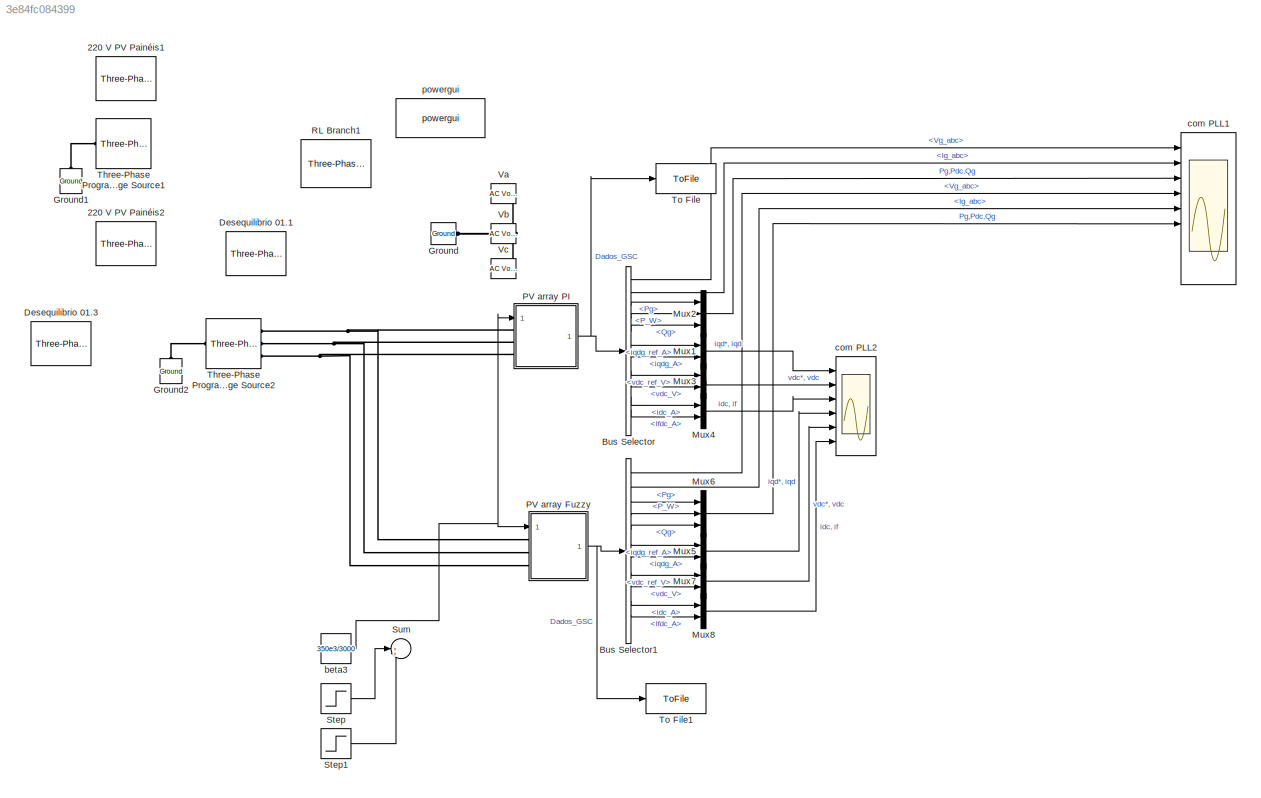
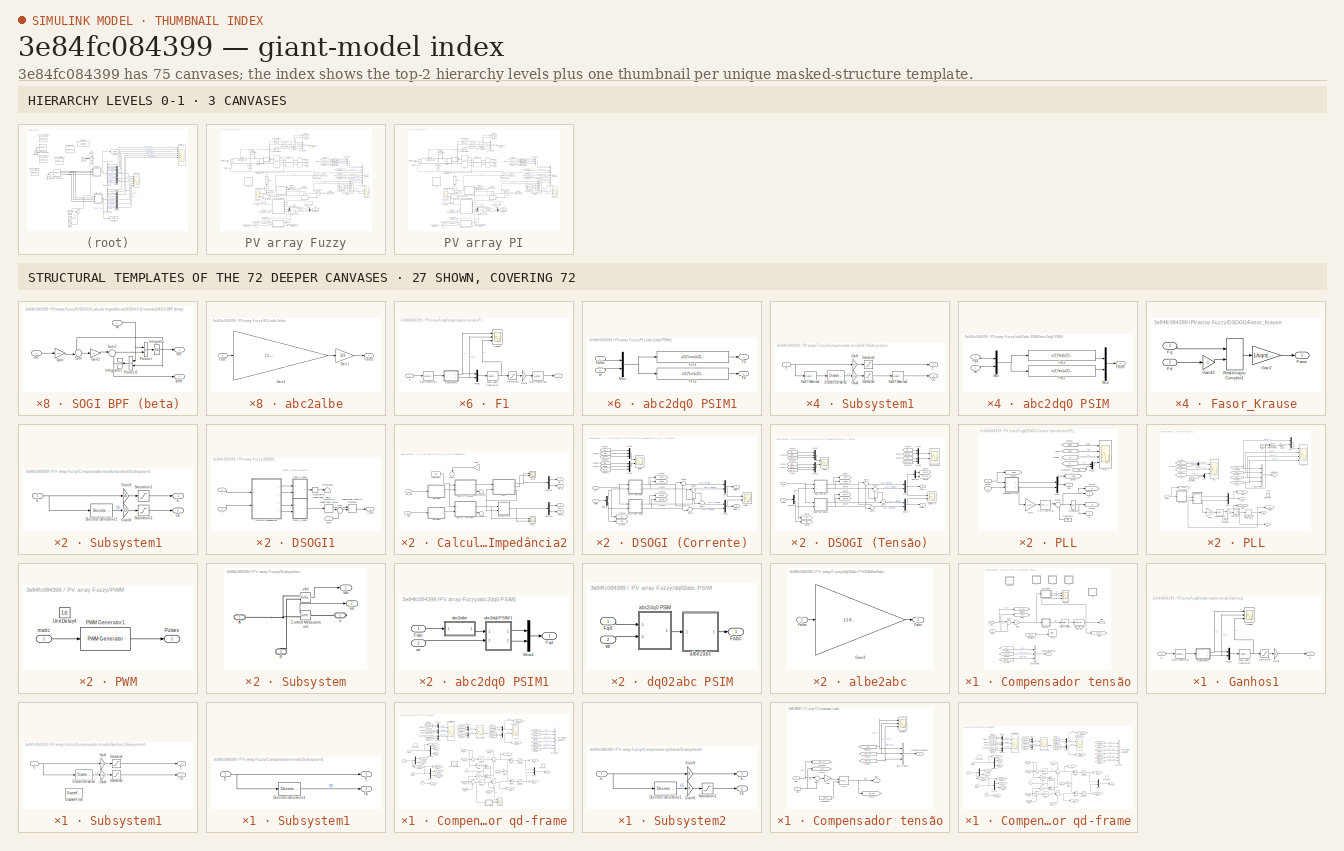
[diagram: thumbnail index - top-2 hierarchy levels (3 canvases) + 27 structural-template representatives of the remaining 72 canvases]
MODEL slx_3e84fc084399
KIND model
CONFIG AbsTol = auto
CONFIG FixedStep = 0.1e-6
CONFIG MaxStep = 50e-6
CONFIG MinStep = auto
CONFIG RelTol = auto
CONFIG SampleTimeConstraint = Unconstrained
CONFIG Solver = FixedStepDiscrete
CONFIG SolverMode = Auto
CONFIG SolverName = FixedStepDiscrete
CONFIG StartTime = 0.0
CONFIG StopTime = 0.5
BLOCK [Reference] 220 V PV Painéis1  REF=powerlib/Electrical
Sources/Three-Phase Source
  Commented = on
  Ports = [0, 0, 0, 0, 0, 0, 3]
  SourceBlock = powerlib/Electrical\nSources/Three-Phase Source
  SourceType = Three-Phase Source
BLOCK [Reference] 220 V PV Painéis2  REF=powerlib/Electrical
Sources/Three-Phase Source
  Commented = on
  Ports = [0, 0, 0, 0, 0, 0, 3]
  SourceBlock = powerlib/Electrical\nSources/Three-Phase Source
  SourceType = Three-Phase Source
BLOCK [BusSelector] Bus Selector
  OutputSignals = Dados_grid.Vg_abc,Dados_grid.Ig_abc,Dados_grid.Pg,DadosCC.P_W,Dados_grid.Qg,DadosCtrlCorr.iqdg_ref_A,DadosCtrlCorr.iqdg_A,DadosCtrlTensao.vdc_ref_V,DadosCtrlTensao.vdc_V,DadosCC.idc_A,DadosCC.Ifdc_A,DadosPLL.rog_rad
  Ports = [1, 12]
BLOCK [BusSelector] Bus Selector1
  OutputSignals = Dados_grid.Vg_abc,Dados_grid.Ig_abc,Dados_grid.Pg,DadosCC.P_W,Dados_grid.Qg,DadosCtrlCorr.iqdg_ref_A,DadosCtrlCorr.iqdg_A,DadosCtrlTensao.vdc_ref_V,DadosCtrlTensao.vdc_V,DadosCC.idc_A,DadosCC.Ifdc_A,DadosPLL.rog_rad
  Ports = [1, 12]
BLOCK [Reference] Desequilibrio 01.1  REF=powerlib/Electrical
Sources/Three-Phase Source
  Commented = on
  Ports = [0, 0, 0, 0, 0, 0, 3]
  SourceBlock = powerlib/Electrical\nSources/Three-Phase Source
  SourceType = Three-Phase Source
BLOCK [Reference] Desequilibrio 01.3  REF=powerlib/Electrical
Sources/Three-Phase Source
  Ports = [0, 0, 0, 0, 0, 0, 3]
  SourceBlock = powerlib/Electrical\nSources/Three-Phase Source
  SourceType = Three-Phase Source
BLOCK [Reference] Ground  REF=powerlib/Elements/Ground
  Commented = on
  Ports = [0, 0, 0, 0, 0, 1]
  SourceBlock = powerlib/Elements/Ground
  SourceType = Ground
BLOCK [Reference] Ground1  REF=powerlib/Elements/Ground
  Commented = on
  Ports = [0, 0, 0, 0, 0, 1]
  SourceBlock = powerlib/Elements/Ground
  SourceType = Ground
BLOCK [Reference] Ground2  REF=powerlib/Elements/Ground
  Ports = [0, 0, 0, 0, 0, 1]
  SourceBlock = powerlib/Elements/Ground
  SourceType = Ground
BLOCK [Mux] Mux1
  DisplayOption = bar
  Inputs = 2
  Ports = [2, 1]
BLOCK [Mux] Mux2
  DisplayOption = bar
  Inputs = 3
  Ports = [3, 1]
BLOCK [Mux] Mux3
  DisplayOption = bar
  Inputs = 2
  Ports = [2, 1]
BLOCK [Mux] Mux4
  DisplayOption = bar
  Inputs = 2
  Ports = [2, 1]
BLOCK [Mux] Mux5
  DisplayOption = bar
  Inputs = 2
  Ports = [2, 1]
BLOCK [Mux] Mux6
  DisplayOption = bar
  Inputs = 3
  Ports = [3, 1]
BLOCK [Mux] Mux7
  DisplayOption = bar
  Inputs = 2
  Ports = [2, 1]
BLOCK [Mux] Mux8
  DisplayOption = bar
  Inputs = 2
  Ports = [2, 1]
BLOCK [SubSystem] PV array Fuzzy
  Ports = [1, 1, 0, 0, 0, 3]
  RequestExecContextInheritance = off
  Variant = off
BLOCK [PMIOPort] PV array Fuzzy/A
  Port = 1
  Side = Left
BLOCK [PMIOPort] PV array Fuzzy/B
  Port = 2
  Side = Left
BLOCK [Reference] PV array Fuzzy/B_g  REF=powerlib/Measurements/Three-Phase
V-I Measurement
  Ports = [0, 0, 0, 0, 0, 3, 3]
  SourceBlock = powerlib/Measurements/Three-Phase\nV-I Measurement
  SourceType = Three-Phase VI Measurement
BLOCK [BusCreator] PV array Fuzzy/Bus Creator
  DisplayOption = bar
  InheritFromInputs = on
  Inputs = 3
  Ports = [3, 1]
BLOCK [BusCreator] PV array Fuzzy/Bus Creator1
  DisplayOption = bar
  InheritFromInputs = on
  Inputs = 4
  Ports = [4, 1]
BLOCK [BusCreator] PV array Fuzzy/Bus Creator2
  DisplayOption = bar
  InheritFromInputs = on
  Inputs = 7
  Ports = [7, 1]
BLOCK [BusCreator] PV array Fuzzy/Bus Creator3
  DisplayOption = bar
  InheritFromInputs = on
  Inputs = 4
  Ports = [4, 1]
BLOCK [PMIOPort] PV array Fuzzy/C
  Port = 3
  Side = Left
BLOCK [Reference] PV array Fuzzy/C_DClink  REF=powerlib/Elements/Series RLC Branch
  Ports = [0, 0, 0, 0, 0, 1, 1]
  SourceBlock = powerlib/Elements/Series RLC Branch
  SourceType = Series RLC Branch
BLOCK [SubSystem] PV array Fuzzy/Compensador tensão
  Ports = [2, 2]
  RequestExecContextInheritance = off
  Variant = off
BLOCK [BusCreator] PV array Fuzzy/Compensador tensão/Bus Creator
  DisplayOption = bar
  InheritFromInputs = on
  Inputs = 3
  Ports = [3, 1]
BLOCK [Constant] PV array Fuzzy/Compensador tensão/Constant1
  Commented = on
  Value = Igq_e
BLOCK [Reference] PV array Fuzzy/Compensador tensão/Cv(s)  REF=simulink/Continuous/PID Controller
  Commented = on
  Ports = [2, 1]
  SourceBlock = simulink/Continuous/PID Controller
  SourceType = PID 1dof
BLOCK [Outport] PV array Fuzzy/Compensador tensão/DadosCtrlTensao
  IconDisplay = Port number
  Port = 2
BLOCK [DiscreteIntegrator] PV array Fuzzy/Compensador tensão/Discrete-Time Integrator
  ICPrevOutput = DiscIntNeverNeededParam
  ICPrevScaledInput = DiscIntNeverNeededParam
  InitialCondition = Igq_e
  InitialConditionSetting = State (most efficient)
  IntegratorMethod = Integration: Trapezoidal
  Ports = [1, 1]
  SampleTime = -1
BLOCK [SubSystem] PV array Fuzzy/Compensador tensão/F1
  Commented = on
  Ports = [1, 1]
  RequestExecContextInheritance = off
  Variant = off
BLOCK [Inport] PV array Fuzzy/Compensador tensão/F1/E
  IconDisplay = Port number
BLOCK [Reference] PV array Fuzzy/Compensador tensão/F1/Fuzzy Logic Controller1  REF=fuzblock/Fuzzy Logic   (lib defined in mdl_858b3b3e7478)
Controller
  Ports = [1, 1]
  SourceBlock = fuzblock/Fuzzy Logic \nController
  SourceType = FIS
BLOCK [Gain] PV array Fuzzy/Compensador tensão/F1/Gain9
  Gain = GY
  OutDataTypeStr = Inherit: Inherit via internal rule
  ParamDataTypeStr = Inherit: Inherit via internal rule
  SaturateOnIntegerOverflow = off
BLOCK [Mux] PV array Fuzzy/Compensador tensão/F1/Mux6
  DisplayOption = bar
  Inputs = 2
  Ports = [2, 1]
BLOCK [RateTransition] PV array Fuzzy/Compensador tensão/F1/Rate Transition1
  OutPortSampleTime = Ts_fuzzy
BLOCK [RateTransition] PV array Fuzzy/Compensador tensão/F1/Rate Transition2
BLOCK [Saturate] PV array Fuzzy/Compensador tensão/F1/Saturation2
  InputPortMap = u0
  LowerLimit = -1
  Ports = [1, 1]
  UpperLimit = 1
BLOCK [Scope] PV array Fuzzy/Compensador tensão/F1/Scope5
  NumInputPorts = 3
  Ports = [3]
  ScopeSpecificationString = Simulink.scopes.TimeScopeBlockCfg('CurrentConfiguration', extmgr.ConfigurationSet(extmgr.Configuration('Core','General UI',true),extmgr.Configuration('Core','Source UI',true),extmgr.Configuration('Sources','WiredSimulink',true,'DataLoggingVariableName','ScopeData1'),extmgr.Configuration('Visuals','Time Domain',true,'SerializedDisplays',{struct('MinYLimReal','-1.25','MaxYLimReal','1.25','YLabelReal...<+2743ch>
BLOCK [SubSystem] PV array Fuzzy/Compensador tensão/F1/Subsystem1
  Ports = [1, 2]
  RequestExecContextInheritance = off
  Variant = off
BLOCK [Outport] PV array Fuzzy/Compensador tensão/F1/Subsystem1/CE
  IconDisplay = Port number
  Port = 2
BLOCK [Reference] PV array Fuzzy/Compensador tensão/F1/Subsystem1/Discrete Derivative1  REF=simulink/Discrete/Discrete Derivative
  Ports = [1, 1]
  SourceBlock = simulink/Discrete/Discrete Derivative
  SourceType = Discrete Derivative
BLOCK [Inport] PV array Fuzzy/Compensador tensão/F1/Subsystem1/E
  IconDisplay = Port number
BLOCK [Outport] PV array Fuzzy/Compensador tensão/F1/Subsystem1/E.
  IconDisplay = Port number
BLOCK [Gain] PV array Fuzzy/Compensador tensão/F1/Subsystem1/Gain8
  Gain = GCE
  OutDataTypeStr = Inherit: Inherit via internal rule
  ParamDataTypeStr = Inherit: Inherit via internal rule
  SaturateOnIntegerOverflow = off
BLOCK [Gain] PV array Fuzzy/Compensador tensão/F1/Subsystem1/Gain9
  Gain = GE
  OutDataTypeStr = Inherit: Inherit via internal rule
  ParamDataTypeStr = Inherit: Inherit via internal rule
  SaturateOnIntegerOverflow = off
BLOCK [RateTransition] PV array Fuzzy/Compensador tensão/F1/Subsystem1/Rate Transition1
  OutPortSampleTime = 0.005
BLOCK [RateTransition] PV array Fuzzy/Compensador tensão/F1/Subsystem1/Rate Transition2
  OutPortSampleTime = Ts_fuzzy
BLOCK [Saturate] PV array Fuzzy/Compensador tensão/F1/Subsystem1/Saturation1
  InputPortMap = u0
  LowerLimit = -1
  Ports = [1, 1]
  UpperLimit = 1
BLOCK [Saturate] PV array Fuzzy/Compensador tensão/F1/Subsystem1/Saturation2
  InputPortMap = u0
  LowerLimit = -1
  Ports = [1, 1]
  UpperLimit = 1
BLOCK [Outport] PV array Fuzzy/Compensador tensão/F1/u
  IconDisplay = Port number
BLOCK [SubSystem] PV array Fuzzy/Compensador tensão/F2
  Commented = on
  Ports = [1, 1]
  RequestExecContextInheritance = off
  Variant = off
BLOCK [Inport] PV array Fuzzy/Compensador tensão/F2/E
  IconDisplay = Port number
BLOCK [Reference] PV array Fuzzy/Compensador tensão/F2/Fuzzy Logic Controller1  REF=fuzblock/Fuzzy Logic   (lib defined in mdl_858b3b3e7478)
Controller
  Ports = [1, 1]
  SourceBlock = fuzblock/Fuzzy Logic \nController
  SourceType = FIS
BLOCK [Gain] PV array Fuzzy/Compensador tensão/F2/Gain9
  Gain = GY
  OutDataTypeStr = Inherit: Inherit via internal rule
  ParamDataTypeStr = Inherit: Inherit via internal rule
  SaturateOnIntegerOverflow = off
BLOCK [Mux] PV array Fuzzy/Compensador tensão/F2/Mux6
  DisplayOption = bar
  Inputs = 2
  Ports = [2, 1]
BLOCK [RateTransition] PV array Fuzzy/Compensador tensão/F2/Rate Transition1
  OutPortSampleTime = Ts_fuzzy
BLOCK [RateTransition] PV array Fuzzy/Compensador tensão/F2/Rate Transition2
BLOCK [Saturate] PV array Fuzzy/Compensador tensão/F2/Saturation2
  InputPortMap = u0
  LowerLimit = -1
  Ports = [1, 1]
  UpperLimit = 1
BLOCK [Scope] PV array Fuzzy/Compensador tensão/F2/Scope5
  NumInputPorts = 3
  Ports = [3]
  ScopeSpecificationString = Simulink.scopes.TimeScopeBlockCfg('CurrentConfiguration', extmgr.ConfigurationSet(extmgr.Configuration('Core','General UI',true),extmgr.Configuration('Core','Source UI',true),extmgr.Configuration('Sources','WiredSimulink',true,'DataLoggingVariableName','ScopeData1'),extmgr.Configuration('Visuals','Time Domain',true,'SerializedDisplays',{struct('MinYLimReal','-1.25','MaxYLimReal','1.25','YLabelReal...<+2743ch>
BLOCK [SubSystem] PV array Fuzzy/Compensador tensão/F2/Subsystem1
  Ports = [1, 2]
  RequestExecContextInheritance = off
  Variant = off
BLOCK [Outport] PV array Fuzzy/Compensador tensão/F2/Subsystem1/CE
  IconDisplay = Port number
  Port = 2
BLOCK [Reference] PV array Fuzzy/Compensador tensão/F2/Subsystem1/Discrete Derivative1  REF=simulink/Discrete/Discrete Derivative
  Ports = [1, 1]
  SourceBlock = simulink/Discrete/Discrete Derivative
  SourceType = Discrete Derivative
BLOCK [Inport] PV array Fuzzy/Compensador tensão/F2/Subsystem1/E
  IconDisplay = Port number
BLOCK [Outport] PV array Fuzzy/Compensador tensão/F2/Subsystem1/E.
  IconDisplay = Port number
BLOCK [Gain] PV array Fuzzy/Compensador tensão/F2/Subsystem1/Gain8
  Gain = GCE
  OutDataTypeStr = Inherit: Inherit via internal rule
  ParamDataTypeStr = Inherit: Inherit via internal rule
  SaturateOnIntegerOverflow = off
BLOCK [Gain] PV array Fuzzy/Compensador tensão/F2/Subsystem1/Gain9
  Gain = GE
  OutDataTypeStr = Inherit: Inherit via internal rule
  ParamDataTypeStr = Inherit: Inherit via internal rule
  SaturateOnIntegerOverflow = off
BLOCK [RateTransition] PV array Fuzzy/Compensador tensão/F2/Subsystem1/Rate Transition1
  OutPortSampleTime = Ts_fuzzy
BLOCK [RateTransition] PV array Fuzzy/Compensador tensão/F2/Subsystem1/Rate Transition2
  OutPortSampleTime = Ts_fuzzy
BLOCK [Saturate] PV array Fuzzy/Compensador tensão/F2/Subsystem1/Saturation1
  InputPortMap = u0
  LowerLimit = -1
  Ports = [1, 1]
  UpperLimit = 1
BLOCK [Saturate] PV array Fuzzy/Compensador tensão/F2/Subsystem1/Saturation2
  InputPortMap = u0
  LowerLimit = -1
  Ports = [1, 1]
  UpperLimit = 1
BLOCK [Outport] PV array Fuzzy/Compensador tensão/F2/u
  IconDisplay = Port number
BLOCK [SubSystem] PV array Fuzzy/Compensador tensão/F3
  Commented = on
  Ports = [1, 1]
  RequestExecContextInheritance = off
  Variant = off
BLOCK [Inport] PV array Fuzzy/Compensador tensão/F3/E
  IconDisplay = Port number
BLOCK [Reference] PV array Fuzzy/Compensador tensão/F3/Fuzzy Logic Controller1  REF=fuzblock/Fuzzy Logic   (lib defined in mdl_858b3b3e7478)
Controller
  Ports = [1, 1]
  SourceBlock = fuzblock/Fuzzy Logic \nController
  SourceType = FIS
BLOCK [Gain] PV array Fuzzy/Compensador tensão/F3/Gain9
  Gain = GY
  OutDataTypeStr = Inherit: Inherit via internal rule
  ParamDataTypeStr = Inherit: Inherit via internal rule
  SaturateOnIntegerOverflow = off
BLOCK [Mux] PV array Fuzzy/Compensador tensão/F3/Mux6
  DisplayOption = bar
  Inputs = 2
  Ports = [2, 1]
BLOCK [RateTransition] PV array Fuzzy/Compensador tensão/F3/Rate Transition1
  OutPortSampleTime = Ts_fuzzy
BLOCK [RateTransition] PV array Fuzzy/Compensador tensão/F3/Rate Transition2
BLOCK [Saturate] PV array Fuzzy/Compensador tensão/F3/Saturation2
  InputPortMap = u0
  LowerLimit = -1
  Ports = [1, 1]
  UpperLimit = 1
BLOCK [Scope] PV array Fuzzy/Compensador tensão/F3/Scope5
  NumInputPorts = 3
  Ports = [3]
  ScopeSpecificationString = Simulink.scopes.TimeScopeBlockCfg('CurrentConfiguration', extmgr.ConfigurationSet(extmgr.Configuration('Core','General UI',true),extmgr.Configuration('Core','Source UI',true),extmgr.Configuration('Sources','WiredSimulink',true,'DataLoggingVariableName','ScopeData1'),extmgr.Configuration('Visuals','Time Domain',true,'SerializedDisplays',{struct('MinYLimReal','-0.08604','MaxYLimReal','0.77447','YLab...<+2758ch>
BLOCK [SubSystem] PV array Fuzzy/Compensador tensão/F3/Subsystem1
  Ports = [1, 2]
  RequestExecContextInheritance = off
  Variant = off
BLOCK [Outport] PV array Fuzzy/Compensador tensão/F3/Subsystem1/CE
  IconDisplay = Port number
  Port = 2
BLOCK [Reference] PV array Fuzzy/Compensador tensão/F3/Subsystem1/Discrete Derivative1  REF=simulink/Discrete/Discrete Derivative
  Ports = [1, 1]
  SourceBlock = simulink/Discrete/Discrete Derivative
  SourceType = Discrete Derivative
BLOCK [Inport] PV array Fuzzy/Compensador tensão/F3/Subsystem1/E
  IconDisplay = Port number
BLOCK [Outport] PV array Fuzzy/Compensador tensão/F3/Subsystem1/E.
  IconDisplay = Port number
BLOCK [Gain] PV array Fuzzy/Compensador tensão/F3/Subsystem1/Gain8
  Gain = GCE
  OutDataTypeStr = Inherit: Inherit via internal rule
  ParamDataTypeStr = Inherit: Inherit via internal rule
  SaturateOnIntegerOverflow = off
BLOCK [Gain] PV array Fuzzy/Compensador tensão/F3/Subsystem1/Gain9
  Gain = GE
  OutDataTypeStr = Inherit: Inherit via internal rule
  ParamDataTypeStr = Inherit: Inherit via internal rule
  SaturateOnIntegerOverflow = off
BLOCK [RateTransition] PV array Fuzzy/Compensador tensão/F3/Subsystem1/Rate Transition1
  OutPortSampleTime = Ts_fuzzy
BLOCK [RateTransition] PV array Fuzzy/Compensador tensão/F3/Subsystem1/Rate Transition2
  OutPortSampleTime = Ts_fuzzy
BLOCK [Saturate] PV array Fuzzy/Compensador tensão/F3/Subsystem1/Saturation1
  InputPortMap = u0
  LowerLimit = -1
  Ports = [1, 1]
  UpperLimit = 1
BLOCK [Saturate] PV array Fuzzy/Compensador tensão/F3/Subsystem1/Saturation2
  InputPortMap = u0
  LowerLimit = -1
  Ports = [1, 1]
  UpperLimit = 1
BLOCK [Outport] PV array Fuzzy/Compensador tensão/F3/u
  IconDisplay = Port number
BLOCK [SubSystem] PV array Fuzzy/Compensador tensão/F4
  Commented = on
  Ports = [1, 1]
  RequestExecContextInheritance = off
  Variant = off
BLOCK [Inport] PV array Fuzzy/Compensador tensão/F4/E
  IconDisplay = Port number
BLOCK [Reference] PV array Fuzzy/Compensador tensão/F4/Fuzzy Logic Controller1  REF=fuzblock/Fuzzy Logic   (lib defined in mdl_858b3b3e7478)
Controller
  Ports = [1, 1]
  SourceBlock = fuzblock/Fuzzy Logic \nController
  SourceType = FIS
BLOCK [Gain] PV array Fuzzy/Compensador tensão/F4/Gain9
  Gain = GY
  OutDataTypeStr = Inherit: Inherit via internal rule
  ParamDataTypeStr = Inherit: Inherit via internal rule
  SaturateOnIntegerOverflow = off
BLOCK [Mux] PV array Fuzzy/Compensador tensão/F4/Mux6
  DisplayOption = bar
  Inputs = 2
  Ports = [2, 1]
BLOCK [RateTransition] PV array Fuzzy/Compensador tensão/F4/Rate Transition1
  OutPortSampleTime = Ts_fuzzy
BLOCK [RateTransition] PV array Fuzzy/Compensador tensão/F4/Rate Transition2
BLOCK [Saturate] PV array Fuzzy/Compensador tensão/F4/Saturation2
  InputPortMap = u0
  LowerLimit = -1
  Ports = [1, 1]
  UpperLimit = 1
BLOCK [Scope] PV array Fuzzy/Compensador tensão/F4/Scope5
  NumInputPorts = 3
  Ports = [3]
  ScopeSpecificationString = Simulink.scopes.TimeScopeBlockCfg('CurrentConfiguration', extmgr.ConfigurationSet(extmgr.Configuration('Core','General UI',true),extmgr.Configuration('Core','Source UI',true),extmgr.Configuration('Sources','WiredSimulink',true,'DataLoggingVariableName','ScopeData1'),extmgr.Configuration('Visuals','Time Domain',true,'SerializedDisplays',{struct('MinYLimReal','-0.0901','MaxYLimReal','0.81164','YLabe...<+2757ch>
BLOCK [SubSystem] PV array Fuzzy/Compensador tensão/F4/Subsystem1
  Ports = [1, 2]
  RequestExecContextInheritance = off
  Variant = off
BLOCK [Outport] PV array Fuzzy/Compensador tensão/F4/Subsystem1/CE
  IconDisplay = Port number
  Port = 2
BLOCK [Reference] PV array Fuzzy/Compensador tensão/F4/Subsystem1/Discrete Derivative1  REF=simulink/Discrete/Discrete Derivative
  Ports = [1, 1]
  SourceBlock = simulink/Discrete/Discrete Derivative
  SourceType = Discrete Derivative
BLOCK [Inport] PV array Fuzzy/Compensador tensão/F4/Subsystem1/E
  IconDisplay = Port number
BLOCK [Outport] PV array Fuzzy/Compensador tensão/F4/Subsystem1/E.
  IconDisplay = Port number
BLOCK [Gain] PV array Fuzzy/Compensador tensão/F4/Subsystem1/Gain8
  Gain = GCE
  OutDataTypeStr = Inherit: Inherit via internal rule
  ParamDataTypeStr = Inherit: Inherit via internal rule
  SaturateOnIntegerOverflow = off
BLOCK [Gain] PV array Fuzzy/Compensador tensão/F4/Subsystem1/Gain9
  Gain = GE
  OutDataTypeStr = Inherit: Inherit via internal rule
  ParamDataTypeStr = Inherit: Inherit via internal rule
  SaturateOnIntegerOverflow = off
BLOCK [RateTransition] PV array Fuzzy/Compensador tensão/F4/Subsystem1/Rate Transition1
  OutPortSampleTime = Ts_fuzzy
BLOCK [RateTransition] PV array Fuzzy/Compensador tensão/F4/Subsystem1/Rate Transition2
  OutPortSampleTime = Ts_fuzzy
BLOCK [Saturate] PV array Fuzzy/Compensador tensão/F4/Subsystem1/Saturation1
  InputPortMap = u0
  LowerLimit = -1
  Ports = [1, 1]
  UpperLimit = 1
BLOCK [Saturate] PV array Fuzzy/Compensador tensão/F4/Subsystem1/Saturation2
  InputPortMap = u0
  LowerLimit = -1
  Ports = [1, 1]
  UpperLimit = 1
BLOCK [Outport] PV array Fuzzy/Compensador tensão/F4/u
  IconDisplay = Port number
BLOCK [From] PV array Fuzzy/Compensador tensão/From1
  GotoTag = vdc_ref
BLOCK [From] PV array Fuzzy/Compensador tensão/From2
  GotoTag = iqg_ref
BLOCK [From] PV array Fuzzy/Compensador tensão/From21
  GotoTag = vdc
BLOCK [Gain] PV array Fuzzy/Compensador tensão/Gain
  Gain = -1
  OutDataTypeStr = Inherit: Inherit via internal rule
  ParamDataTypeStr = Inherit: Inherit via internal rule
  SaturateOnIntegerOverflow = off
BLOCK [SubSystem] PV array Fuzzy/Compensador tensão/Ganhos1
  Ports = [1, 1]
  RequestExecContextInheritance = off
  Variant = off
BLOCK [Inport] PV array Fuzzy/Compensador tensão/Ganhos1/E
  IconDisplay = Port number
BLOCK [Reference] PV array Fuzzy/Compensador tensão/Ganhos1/Fuzzy Logic Controller1  REF=fuzblock/Fuzzy Logic   (lib defined in mdl_858b3b3e7478)
Controller
  Ports = [1, 1]
  SourceBlock = fuzblock/Fuzzy Logic \nController
  SourceType = FIS
BLOCK [Gain] PV array Fuzzy/Compensador tensão/Ganhos1/Gain9
  Gain = GY
  OutDataTypeStr = Inherit: Inherit via internal rule
  ParamDataTypeStr = Inherit: Inherit via internal rule
  SaturateOnIntegerOverflow = off
BLOCK [Mux] PV array Fuzzy/Compensador tensão/Ganhos1/Mux6
  DisplayOption = bar
  Inputs = 2
  Ports = [2, 1]
BLOCK [RateTransition] PV array Fuzzy/Compensador tensão/Ganhos1/Rate Transition1
  OutPortSampleTime = Ts_fuzzy
BLOCK [Saturate] PV array Fuzzy/Compensador tensão/Ganhos1/Saturation2
  InputPortMap = u0
  LowerLimit = -1
  Ports = [1, 1]
  UpperLimit = 1
BLOCK [Scope] PV array Fuzzy/Compensador tensão/Ganhos1/Scope5
  NumInputPorts = 3
  Ports = [3]
  ScopeSpecificationString = Simulink.scopes.TimeScopeBlockCfg('CurrentConfiguration', extmgr.ConfigurationSet(extmgr.Configuration('Core','General UI',true),extmgr.Configuration('Core','Source UI',true),extmgr.Configuration('Sources','WiredSimulink',true,'DataLoggingVariableName','ScopeData1'),extmgr.Configuration('Visuals','Time Domain',true,'SerializedDisplays',{struct('MinYLimReal','-0.36602','MaxYLimReal','0.83247','YLab...<+2756ch>
BLOCK [SubSystem] PV array Fuzzy/Compensador tensão/Ganhos1/Subsystem1
  Ports = [1, 2]
  RequestExecContextInheritance = off
  Variant = off
BLOCK [Outport] PV array Fuzzy/Compensador tensão/Ganhos1/Subsystem1/CE
  IconDisplay = Port number
  Port = 2
BLOCK [Reference] PV array Fuzzy/Compensador tensão/Ganhos1/Subsystem1/Discrete Derivative1  REF=simulink/Discrete/Discrete Derivative
  Ports = [1, 1]
  SourceBlock = simulink/Discrete/Discrete Derivative
  SourceType = Discrete Derivative
BLOCK [DiscreteFilter] PV array Fuzzy/Compensador tensão/Ganhos1/Subsystem1/Discrete Filter
  Commented = on
  Denominator = [1+2*pi*0.1e3*Ts_fuzzy -1]
  InputPortMap = u0
  Numerator = [2*pi*0.1e3*Ts_fuzzy 0]
  Ports = [1, 1]
BLOCK [Inport] PV array Fuzzy/Compensador tensão/Ganhos1/Subsystem1/E
  IconDisplay = Port number
BLOCK [Outport] PV array Fuzzy/Compensador tensão/Ganhos1/Subsystem1/E.
  IconDisplay = Port number
BLOCK [Gain] PV array Fuzzy/Compensador tensão/Ganhos1/Subsystem1/Gain8
  Gain = GCE
  OutDataTypeStr = Inherit: Inherit via internal rule
  ParamDataTypeStr = Inherit: Inherit via internal rule
  SaturateOnIntegerOverflow = off
BLOCK [Gain] PV array Fuzzy/Compensador tensão/Ganhos1/Subsystem1/Gain9
  Gain = GE
  OutDataTypeStr = Inherit: Inherit via internal rule
  ParamDataTypeStr = Inherit: Inherit via internal rule
  SaturateOnIntegerOverflow = off
BLOCK [Saturate] PV array Fuzzy/Compensador tensão/Ganhos1/Subsystem1/Saturation1
  InputPortMap = u0
  LowerLimit = -1
  Ports = [1, 1]
  UpperLimit = 1
BLOCK [Saturate] PV array Fuzzy/Compensador tensão/Ganhos1/Subsystem1/Saturation2
  InputPortMap = u0
  LowerLimit = -1
  Ports = [1, 1]
  UpperLimit = 1
BLOCK [Outport] PV array Fuzzy/Compensador tensão/Ganhos1/u
  IconDisplay = Port number
BLOCK [Goto] PV array Fuzzy/Compensador tensão/Goto1
  GotoTag = vdc
BLOCK [Goto] PV array Fuzzy/Compensador tensão/Goto16
  GotoTag = vdc_ref
BLOCK [Goto] PV array Fuzzy/Compensador tensão/Goto2
  GotoTag = iqg_ref
BLOCK [RateTransition] PV array Fuzzy/Compensador tensão/Rate Transition2
  OutPortSampleTime = Ts_control
  X0 = Igq_e
BLOCK [Scope] PV array Fuzzy/Compensador tensão/Scope5
  NumInputPorts = 3
  Ports = [3]
  ScopeSpecificationString = Simulink.scopes.TimeScopeBlockCfg('CurrentConfiguration', extmgr.ConfigurationSet(extmgr.Configuration('Core','General UI',true),extmgr.Configuration('Core','Source UI',true),extmgr.Configuration('Sources','WiredSimulink',true,'DataLoggingVariableName','ScopeData4'),extmgr.Configuration('Visuals','Time Domain',true,'SerializedDisplays',{struct('MinYLimReal','-6.80779','MaxYLimReal','15.48373','YLa...<+2795ch>
BLOCK [SubSystem] PV array Fuzzy/Compensador tensão/Subsystem1
  Ports = [1, 2]
  RequestExecContextInheritance = off
  Variant = off
BLOCK [Outport] PV array Fuzzy/Compensador tensão/Subsystem1/CE
  IconDisplay = Port number
  Port = 2
BLOCK [Reference] PV array Fuzzy/Compensador tensão/Subsystem1/Discrete Derivative1  REF=simulink/Discrete/Discrete Derivative
  Ports = [1, 1]
  SourceBlock = simulink/Discrete/Discrete Derivative
  SourceType = Discrete Derivative
BLOCK [Inport] PV array Fuzzy/Compensador tensão/Subsystem1/E
  IconDisplay = Port number
BLOCK [Outport] PV array Fuzzy/Compensador tensão/Subsystem1/E.
  IconDisplay = Port number
BLOCK [Sum] PV array Fuzzy/Compensador tensão/Sum1
  IconShape = round
  InputSameDT = off
  Inputs = |+-
  OutDataTypeStr = Inherit: Inherit via internal rule
  Ports = [2, 1]
  SaturateOnIntegerOverflow = off
BLOCK [Inport] PV array Fuzzy/Compensador tensão/Vdc
  IconDisplay = Port number
  Port = 2
BLOCK [Inport] PV array Fuzzy/Compensador tensão/Vdc*
  IconDisplay = Port number
BLOCK [Outport] PV array Fuzzy/Compensador tensão/igq*
  IconDisplay = Port number
BLOCK [SubSystem] PV array Fuzzy/Compensador tensão/razoável
  Commented = on
  Ports = [1, 1]
  RequestExecContextInheritance = off
  Variant = off
BLOCK [Inport] PV array Fuzzy/Compensador tensão/razoável/E
  IconDisplay = Port number
BLOCK [Reference] PV array Fuzzy/Compensador tensão/razoável/Fuzzy Logic Controller1  REF=fuzblock/Fuzzy Logic   (lib defined in mdl_858b3b3e7478)
Controller
  Ports = [1, 1]
  SourceBlock = fuzblock/Fuzzy Logic \nController
  SourceType = FIS
BLOCK [Gain] PV array Fuzzy/Compensador tensão/razoável/Gain9
  Gain = GY
  OutDataTypeStr = Inherit: Inherit via internal rule
  ParamDataTypeStr = Inherit: Inherit via internal rule
  SaturateOnIntegerOverflow = off
BLOCK [Mux] PV array Fuzzy/Compensador tensão/razoável/Mux6
  DisplayOption = bar
  Inputs = 2
  Ports = [2, 1]
BLOCK [RateTransition] PV array Fuzzy/Compensador tensão/razoável/Rate Transition1
  OutPortSampleTime = 0.0001
BLOCK [RateTransition] PV array Fuzzy/Compensador tensão/razoável/Rate Transition2
BLOCK [Saturate] PV array Fuzzy/Compensador tensão/razoável/Saturation2
  InputPortMap = u0
  LowerLimit = -1
  Ports = [1, 1]
  UpperLimit = 1
BLOCK [Scope] PV array Fuzzy/Compensador tensão/razoável/Scope5
  NumInputPorts = 3
  Ports = [3]
  ScopeSpecificationString = Simulink.scopes.TimeScopeBlockCfg('CurrentConfiguration', extmgr.ConfigurationSet(extmgr.Configuration('Core','General UI',true),extmgr.Configuration('Core','Source UI',true),extmgr.Configuration('Sources','WiredSimulink',true,'DataLoggingVariableName','ScopeData1'),extmgr.Configuration('Visuals','Time Domain',true,'SerializedDisplays',{struct('MinYLimReal','-0.03774','MaxYLimReal','0.33999','YLab...<+2759ch>
BLOCK [SubSystem] PV array Fuzzy/Compensador tensão/razoável/Subsystem1
  Ports = [1, 2]
  RequestExecContextInheritance = off
  Variant = off
BLOCK [Outport] PV array Fuzzy/Compensador tensão/razoável/Subsystem1/CE
  IconDisplay = Port number
  Port = 2
BLOCK [Reference] PV array Fuzzy/Compensador tensão/razoável/Subsystem1/Discrete Derivative1  REF=simulink/Discrete/Discrete Derivative
  Ports = [1, 1]
  SourceBlock = simulink/Discrete/Discrete Derivative
  SourceType = Discrete Derivative
BLOCK [Inport] PV array Fuzzy/Compensador tensão/razoável/Subsystem1/E
  IconDisplay = Port number
BLOCK [Outport] PV array Fuzzy/Compensador tensão/razoável/Subsystem1/E.
  IconDisplay = Port number
BLOCK [Gain] PV array Fuzzy/Compensador tensão/razoável/Subsystem1/Gain8
  Gain = GCE
  OutDataTypeStr = Inherit: Inherit via internal rule
  ParamDataTypeStr = Inherit: Inherit via internal rule
  SaturateOnIntegerOverflow = off
BLOCK [Gain] PV array Fuzzy/Compensador tensão/razoável/Subsystem1/Gain9
  Gain = GE
  OutDataTypeStr = Inherit: Inherit via internal rule
  ParamDataTypeStr = Inherit: Inherit via internal rule
  SaturateOnIntegerOverflow = off
BLOCK [Saturate] PV array Fuzzy/Compensador tensão/razoável/Subsystem1/Saturation1
  InputPortMap = u0
  LowerLimit = -1
  Ports = [1, 1]
  UpperLimit = 1
BLOCK [Saturate] PV array Fuzzy/Compensador tensão/razoável/Subsystem1/Saturation2
  InputPortMap = u0
  LowerLimit = -1
  Ports = [1, 1]
  UpperLimit = 1
BLOCK [Outport] PV array Fuzzy/Compensador tensão/razoável/u
  IconDisplay = Port number
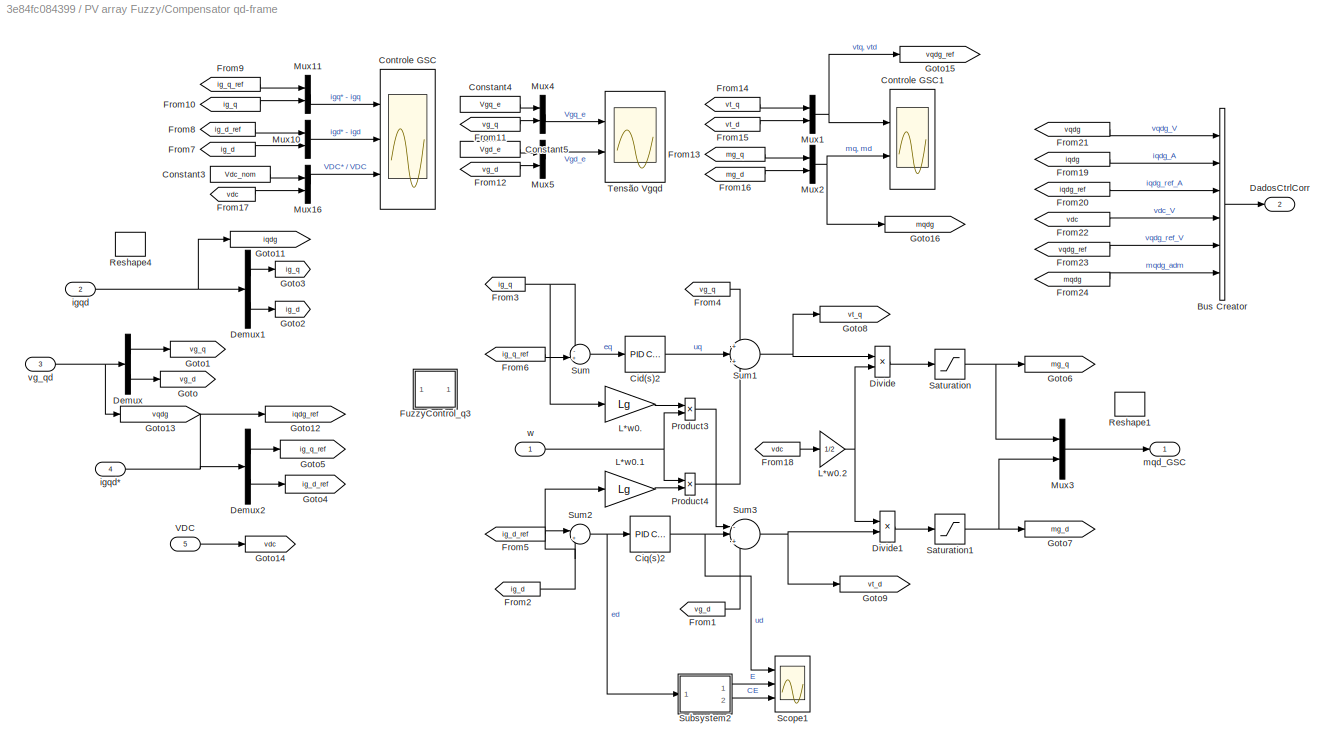
BLOCK [SubSystem] PV array Fuzzy/Compensator qd-frame
  Ports = [5, 2]
  RequestExecContextInheritance = off
  Variant = off
BLOCK [BusCreator] PV array Fuzzy/Compensator qd-frame/Bus Creator
  DisplayOption = bar
  InheritFromInputs = on
  Inputs = 6
  Ports = [6, 1]
BLOCK [Reference] PV array Fuzzy/Compensator qd-frame/Cid(s)2  REF=simulink/Continuous/PID Controller
  Ports = [1, 1]
  SourceBlock = simulink/Continuous/PID Controller
  SourceType = PID 1dof
BLOCK [Reference] PV array Fuzzy/Compensator qd-frame/Ciq(s)2  REF=simulink/Continuous/PID Controller
  Ports = [1, 1]
  SourceBlock = simulink/Continuous/PID Controller
  SourceType = PID 1dof
BLOCK [Constant] PV array Fuzzy/Compensator qd-frame/Constant3
  Value = Vdc_nom
BLOCK [Constant] PV array Fuzzy/Compensator qd-frame/Constant4
  Value = Vgq_e
BLOCK [Constant] PV array Fuzzy/Compensator qd-frame/Constant5
  Value = Vgd_e
BLOCK [Scope] PV array Fuzzy/Compensator qd-frame/Controle GSC
  NumInputPorts = 3
  Ports = [3]
  ScopeSpecificationString = Simulink.scopes.TimeScopeBlockCfg('CurrentConfiguration', extmgr.ConfigurationSet(extmgr.Configuration('Core','General UI',true),extmgr.Configuration('Core','Source UI',true),extmgr.Configuration('Sources','WiredSimulink',true,'DataLoggingVariableName','ScopeData3','DataLoggingSaveFormat','StructureWithTime','DataLoggingDecimation','1','DataLoggingDecimateData',true),extmgr.Configuration('Visuals'...<+3167ch>
BLOCK [Scope] PV array Fuzzy/Compensator qd-frame/Controle GSC1
  NumInputPorts = 2
  Ports = [2]
  ScopeSpecificationString = Simulink.scopes.TimeScopeBlockCfg('CurrentConfiguration', extmgr.ConfigurationSet(extmgr.Configuration('Core','General UI',true),extmgr.Configuration('Core','Source UI',true),extmgr.Configuration('Sources','WiredSimulink',true,'DataLoggingVariableName','ScopeData4','DataLoggingSaveFormat','StructureWithTime','DataLoggingDecimation','1','DataLoggingDecimateData',true),extmgr.Configuration('Visuals'...<+2359ch>
BLOCK [Outport] PV array Fuzzy/Compensator qd-frame/DadosCtrlCorr
  IconDisplay = Port number
  Port = 2
BLOCK [Demux] PV array Fuzzy/Compensator qd-frame/Demux
  DisplayOption = bar
  Outputs = 2
  Ports = [1, 2]
BLOCK [Demux] PV array Fuzzy/Compensator qd-frame/Demux1
  DisplayOption = bar
  Outputs = 2
  Ports = [1, 2]
BLOCK [Demux] PV array Fuzzy/Compensator qd-frame/Demux2
  DisplayOption = bar
  Outputs = 2
  Ports = [1, 2]
BLOCK [Product] PV array Fuzzy/Compensator qd-frame/Divide
  InputSameDT = off
  Inputs = */
  OutDataTypeStr = Inherit: Inherit via internal rule
  Ports = [2, 1]
  RndMeth = Floor
  SaturateOnIntegerOverflow = off
BLOCK [Product] PV array Fuzzy/Compensator qd-frame/Divide1
  InputSameDT = off
  Inputs = /*
  OutDataTypeStr = Inherit: Inherit via internal rule
  Ports = [2, 1]
  RndMeth = Floor
  SaturateOnIntegerOverflow = off
BLOCK [From] PV array Fuzzy/Compensator qd-frame/From1
  GotoTag = vg_d
BLOCK [From] PV array Fuzzy/Compensator qd-frame/From10
  GotoTag = ig_q
BLOCK [From] PV array Fuzzy/Compensator qd-frame/From11
  GotoTag = vg_q
BLOCK [From] PV array Fuzzy/Compensator qd-frame/From12
  GotoTag = vg_d
BLOCK [From] PV array Fuzzy/Compensator qd-frame/From13
  GotoTag = mg_q
BLOCK [From] PV array Fuzzy/Compensator qd-frame/From14
  GotoTag = vt_q
BLOCK [From] PV array Fuzzy/Compensator qd-frame/From15
  GotoTag = vt_d
BLOCK [From] PV array Fuzzy/Compensator qd-frame/From16
  GotoTag = mg_d
BLOCK [From] PV array Fuzzy/Compensator qd-frame/From17
  GotoTag = vdc
BLOCK [From] PV array Fuzzy/Compensator qd-frame/From18
  GotoTag = vdc
BLOCK [From] PV array Fuzzy/Compensator qd-frame/From19
  GotoTag = iqdg
BLOCK [From] PV array Fuzzy/Compensator qd-frame/From2
  GotoTag = ig_d
BLOCK [From] PV array Fuzzy/Compensator qd-frame/From20
  GotoTag = iqdg_ref
BLOCK [From] PV array Fuzzy/Compensator qd-frame/From21
  GotoTag = vqdg
BLOCK [From] PV array Fuzzy/Compensator qd-frame/From22
  GotoTag = vdc
BLOCK [From] PV array Fuzzy/Compensator qd-frame/From23
  GotoTag = vqdg_ref
BLOCK [From] PV array Fuzzy/Compensator qd-frame/From24
  GotoTag = mqdg
BLOCK [From] PV array Fuzzy/Compensator qd-frame/From3
  GotoTag = ig_q
BLOCK [From] PV array Fuzzy/Compensator qd-frame/From4
  GotoTag = vg_q
BLOCK [From] PV array Fuzzy/Compensator qd-frame/From5
  GotoTag = ig_d_ref
BLOCK [From] PV array Fuzzy/Compensator qd-frame/From6
  GotoTag = ig_q_ref
BLOCK [From] PV array Fuzzy/Compensator qd-frame/From7
  GotoTag = ig_d
BLOCK [From] PV array Fuzzy/Compensator qd-frame/From8
  GotoTag = ig_d_ref
BLOCK [From] PV array Fuzzy/Compensator qd-frame/From9
  GotoTag = ig_q_ref
BLOCK [SubSystem] PV array Fuzzy/Compensator qd-frame/FuzzyControl_q3
  Commented = on
  Ports = [1, 1]
  RequestExecContextInheritance = off
  Variant = off
BLOCK [Inport] PV array Fuzzy/Compensator qd-frame/FuzzyControl_q3/E
  IconDisplay = Port number
BLOCK [Reference] PV array Fuzzy/Compensator qd-frame/FuzzyControl_q3/Fuzzy Logic Controller1  REF=fuzblock/Fuzzy Logic   (lib defined in mdl_858b3b3e7478)
Controller
  Ports = [1, 1]
  SourceBlock = fuzblock/Fuzzy Logic \nController
  SourceType = FIS
BLOCK [Gain] PV array Fuzzy/Compensator qd-frame/FuzzyControl_q3/Gain9
  Gain = GY
  OutDataTypeStr = Inherit: Inherit via internal rule
  ParamDataTypeStr = Inherit: Inherit via internal rule
  SaturateOnIntegerOverflow = off
BLOCK [Mux] PV array Fuzzy/Compensator qd-frame/FuzzyControl_q3/Mux6
  DisplayOption = bar
  Inputs = 2
  Ports = [2, 1]
BLOCK [RateTransition] PV array Fuzzy/Compensator qd-frame/FuzzyControl_q3/Rate Transition1
  OutPortSampleTime = 0.0001
BLOCK [RateTransition] PV array Fuzzy/Compensator qd-frame/FuzzyControl_q3/Rate Transition2
BLOCK [Saturate] PV array Fuzzy/Compensator qd-frame/FuzzyControl_q3/Saturation2
  InputPortMap = u0
  LowerLimit = -1
  Ports = [1, 1]
  UpperLimit = 1
BLOCK [Scope] PV array Fuzzy/Compensator qd-frame/FuzzyControl_q3/Scope5
  NumInputPorts = 3
  Ports = [3]
  ScopeSpecificationString = Simulink.scopes.TimeScopeBlockCfg('CurrentConfiguration', extmgr.ConfigurationSet(extmgr.Configuration('Core','General UI',true),extmgr.Configuration('Core','Source UI',true),extmgr.Configuration('Sources','WiredSimulink',true,'DataLoggingVariableName','ScopeData1'),extmgr.Configuration('Visuals','Time Domain',true,'SerializedDisplays',{struct('MinYLimReal','-0.34895','MaxYLimReal','1.14988','YLab...<+2727ch>
BLOCK [SubSystem] PV array Fuzzy/Compensator qd-frame/FuzzyControl_q3/Subsystem1
  Ports = [1, 2]
  RequestExecContextInheritance = off
  Variant = off
BLOCK [Outport] PV array Fuzzy/Compensator qd-frame/FuzzyControl_q3/Subsystem1/CE
  IconDisplay = Port number
  Port = 2
BLOCK [Reference] PV array Fuzzy/Compensator qd-frame/FuzzyControl_q3/Subsystem1/Discrete Derivative1  REF=simulink/Discrete/Discrete Derivative
  Ports = [1, 1]
  SourceBlock = simulink/Discrete/Discrete Derivative
  SourceType = Discrete Derivative
BLOCK [Inport] PV array Fuzzy/Compensator qd-frame/FuzzyControl_q3/Subsystem1/E
  IconDisplay = Port number
BLOCK [Outport] PV array Fuzzy/Compensator qd-frame/FuzzyControl_q3/Subsystem1/E.
  IconDisplay = Port number
BLOCK [Gain] PV array Fuzzy/Compensator qd-frame/FuzzyControl_q3/Subsystem1/Gain8
  Gain = GCE
  OutDataTypeStr = Inherit: Inherit via internal rule
  ParamDataTypeStr = Inherit: Inherit via internal rule
  SaturateOnIntegerOverflow = off
BLOCK [Gain] PV array Fuzzy/Compensator qd-frame/FuzzyControl_q3/Subsystem1/Gain9
  Gain = GE
  OutDataTypeStr = Inherit: Inherit via internal rule
  ParamDataTypeStr = Inherit: Inherit via internal rule
  SaturateOnIntegerOverflow = off
BLOCK [Saturate] PV array Fuzzy/Compensator qd-frame/FuzzyControl_q3/Subsystem1/Saturation1
  InputPortMap = u0
  LowerLimit = -1
  Ports = [1, 1]
  UpperLimit = 1
BLOCK [Saturate] PV array Fuzzy/Compensator qd-frame/FuzzyControl_q3/Subsystem1/Saturation2
  InputPortMap = u0
  LowerLimit = -1
  Ports = [1, 1]
  UpperLimit = 1
BLOCK [Outport] PV array Fuzzy/Compensator qd-frame/FuzzyControl_q3/u
  IconDisplay = Port number
BLOCK [Goto] PV array Fuzzy/Compensator qd-frame/Goto
  GotoTag = vg_d
BLOCK [Goto] PV array Fuzzy/Compensator qd-frame/Goto1
  GotoTag = vg_q
BLOCK [Goto] PV array Fuzzy/Compensator qd-frame/Goto11
  GotoTag = iqdg
BLOCK [Goto] PV array Fuzzy/Compensator qd-frame/Goto12
  GotoTag = iqdg_ref
BLOCK [Goto] PV array Fuzzy/Compensator qd-frame/Goto13
  GotoTag = vqdg
BLOCK [Goto] PV array Fuzzy/Compensator qd-frame/Goto14
  GotoTag = vdc
BLOCK [Goto] PV array Fuzzy/Compensator qd-frame/Goto15
  GotoTag = vqdg_ref
BLOCK [Goto] PV array Fuzzy/Compensator qd-frame/Goto16
  GotoTag = mqdg
BLOCK [Goto] PV array Fuzzy/Compensator qd-frame/Goto2
  GotoTag = ig_d
BLOCK [Goto] PV array Fuzzy/Compensator qd-frame/Goto3
  GotoTag = ig_q
BLOCK [Goto] PV array Fuzzy/Compensator qd-frame/Goto4
  GotoTag = ig_d_ref
BLOCK [Goto] PV array Fuzzy/Compensator qd-frame/Goto5
  GotoTag = ig_q_ref
BLOCK [Goto] PV array Fuzzy/Compensator qd-frame/Goto6
  GotoTag = mg_q
BLOCK [Goto] PV array Fuzzy/Compensator qd-frame/Goto7
  GotoTag = mg_d
BLOCK [Goto] PV array Fuzzy/Compensator qd-frame/Goto8
  GotoTag = vt_q
BLOCK [Goto] PV array Fuzzy/Compensator qd-frame/Goto9
  GotoTag = vt_d
BLOCK [Gain] PV array Fuzzy/Compensator qd-frame/L*w0.
  Gain = Lg
  OutDataTypeStr = Inherit: Inherit via internal rule
  ParamDataTypeStr = Inherit: Inherit via internal rule
  SaturateOnIntegerOverflow = off
BLOCK [Gain] PV array Fuzzy/Compensator qd-frame/L*w0.1
  Gain = Lg
  OutDataTypeStr = Inherit: Inherit via internal rule
  ParamDataTypeStr = Inherit: Inherit via internal rule
  SaturateOnIntegerOverflow = off
BLOCK [Gain] PV array Fuzzy/Compensator qd-frame/L*w0.2
  Gain = 1/2
  OutDataTypeStr = Inherit: Inherit via internal rule
  ParamDataTypeStr = Inherit: Inherit via internal rule
  SaturateOnIntegerOverflow = off
BLOCK [Mux] PV array Fuzzy/Compensator qd-frame/Mux1
  DisplayOption = bar
  Inputs = 2
  Ports = [2, 1]
BLOCK [Mux] PV array Fuzzy/Compensator qd-frame/Mux10
  DisplayOption = bar
  Inputs = 2
  Ports = [2, 1]
BLOCK [Mux] PV array Fuzzy/Compensator qd-frame/Mux11
  DisplayOption = bar
  Inputs = 2
  Ports = [2, 1]
BLOCK [Mux] PV array Fuzzy/Compensator qd-frame/Mux16
  DisplayOption = bar
  Inputs = 2
  Ports = [2, 1]
BLOCK [Mux] PV array Fuzzy/Compensator qd-frame/Mux2
  DisplayOption = bar
  Inputs = 2
  Ports = [2, 1]
BLOCK [Mux] PV array Fuzzy/Compensator qd-frame/Mux3
  DisplayOption = bar
  Inputs = 2
  Ports = [2, 1]
BLOCK [Mux] PV array Fuzzy/Compensator qd-frame/Mux4
  DisplayOption = bar
  Inputs = 2
  Ports = [2, 1]
BLOCK [Mux] PV array Fuzzy/Compensator qd-frame/Mux5
  DisplayOption = bar
  Inputs = 2
  Ports = [2, 1]
BLOCK [Product] PV array Fuzzy/Compensator qd-frame/Product3
  InputSameDT = off
  OutDataTypeStr = Inherit: Inherit via internal rule
  Ports = [2, 1]
  RndMeth = Floor
  SaturateOnIntegerOverflow = off
BLOCK [Product] PV array Fuzzy/Compensator qd-frame/Product4
  InputSameDT = off
  OutDataTypeStr = Inherit: Inherit via internal rule
  Ports = [2, 1]
  RndMeth = Floor
  SaturateOnIntegerOverflow = off
BLOCK [Reshape] PV array Fuzzy/Compensator qd-frame/Reshape1
  Commented = on
  OutputDimensionality = Customize
  OutputDimensions = [2,1]
  Ports = [1, 1]
BLOCK [Reshape] PV array Fuzzy/Compensator qd-frame/Reshape4
  Commented = on
  OutputDimensionality = Customize
  OutputDimensions = [2,1]
  Ports = [1, 1]
BLOCK [Saturate] PV array Fuzzy/Compensator qd-frame/Saturation
  InputPortMap = u0
  LowerLimit = -1
  Ports = [1, 1]
  UpperLimit = 1
BLOCK [Saturate] PV array Fuzzy/Compensator qd-frame/Saturation1
  InputPortMap = u0
  LowerLimit = -1
  Ports = [1, 1]
  UpperLimit = 1
BLOCK [Scope] PV array Fuzzy/Compensator qd-frame/Scope1
  NumInputPorts = 3
  Ports = [3]
  ScopeSpecificationString = Simulink.scopes.TimeScopeBlockCfg('CurrentConfiguration', extmgr.ConfigurationSet(extmgr.Configuration('Core','General UI',true),extmgr.Configuration('Core','Source UI',true),extmgr.Configuration('Sources','WiredSimulink',true,'DataLoggingVariableName','ScopeData3'),extmgr.Configuration('Visuals','Time Domain',true,'SerializedDisplays',{struct('MinYLimReal','-24.21242','MaxYLimReal','2.6976','YLab...<+2793ch>
BLOCK [SubSystem] PV array Fuzzy/Compensator qd-frame/Subsystem2
  Ports = [1, 2]
  RequestExecContextInheritance = off
  Variant = off
BLOCK [Outport] PV array Fuzzy/Compensator qd-frame/Subsystem2/CE
  IconDisplay = Port number
  Port = 2
BLOCK [Reference] PV array Fuzzy/Compensator qd-frame/Subsystem2/Discrete Derivative1  REF=simulink/Discrete/Discrete Derivative
  Ports = [1, 1]
  SourceBlock = simulink/Discrete/Discrete Derivative
  SourceType = Discrete Derivative
BLOCK [Inport] PV array Fuzzy/Compensator qd-frame/Subsystem2/E
  IconDisplay = Port number
BLOCK [Outport] PV array Fuzzy/Compensator qd-frame/Subsystem2/E.
  IconDisplay = Port number
BLOCK [Gain] PV array Fuzzy/Compensator qd-frame/Subsystem2/Gain8
  OutDataTypeStr = Inherit: Inherit via internal rule
  ParamDataTypeStr = Inherit: Inherit via internal rule
  SaturateOnIntegerOverflow = off
BLOCK [Gain] PV array Fuzzy/Compensator qd-frame/Subsystem2/Gain9
  OutDataTypeStr = Inherit: Inherit via internal rule
  ParamDataTypeStr = Inherit: Inherit via internal rule
  SaturateOnIntegerOverflow = off
BLOCK [Saturate] PV array Fuzzy/Compensator qd-frame/Subsystem2/Saturation2
  InputPortMap = u0
  LowerLimit = -inf
  Ports = [1, 1]
  UpperLimit = inf
BLOCK [Sum] PV array Fuzzy/Compensator qd-frame/Sum
  IconShape = round
  InputSameDT = off
  Inputs = -+|
  OutDataTypeStr = Inherit: Inherit via internal rule
  Ports = [2, 1]
  SaturateOnIntegerOverflow = off
BLOCK [Sum] PV array Fuzzy/Compensator qd-frame/Sum1
  IconShape = round
  InputSameDT = off
  Inputs = +|+|+
  OutDataTypeStr = Inherit: Inherit via internal rule
  Ports = [3, 1]
  SaturateOnIntegerOverflow = off
BLOCK [Sum] PV array Fuzzy/Compensator qd-frame/Sum2
  IconShape = round
  InputSameDT = off
  Inputs = |+-
  OutDataTypeStr = Inherit: Inherit via internal rule
  Ports = [2, 1]
  SaturateOnIntegerOverflow = off
BLOCK [Sum] PV array Fuzzy/Compensator qd-frame/Sum3
  IconShape = round
  InputSameDT = off
  Inputs = -|+|+
  OutDataTypeStr = Inherit: Inherit via internal rule
  Ports = [3, 1]
  SaturateOnIntegerOverflow = off
BLOCK [Scope] PV array Fuzzy/Compensator qd-frame/Tensão Vgqd
  NumInputPorts = 2
  Ports = [2]
  ScopeSpecificationString = Simulink.scopes.TimeScopeBlockCfg('CurrentConfiguration', extmgr.ConfigurationSet(extmgr.Configuration('Core','General UI',true),extmgr.Configuration('Core','Source UI',true),extmgr.Configuration('Sources','WiredSimulink',true,'DataLoggingVariableName','ScopeData36','DataLoggingSaveFormat','StructureWithTime','DataLoggingDecimation','1','DataLoggingDecimateData',true),extmgr.Configuration('Visuals...<+2353ch>
BLOCK [Inport] PV array Fuzzy/Compensator qd-frame/VDC
  IconDisplay = Port number
  Port = 5
BLOCK [Inport] PV array Fuzzy/Compensator qd-frame/igqd
  IconDisplay = Port number
  Port = 2
BLOCK [Inport] PV array Fuzzy/Compensator qd-frame/igqd*
  IconDisplay = Port number
  Port = 4
BLOCK [Outport] PV array Fuzzy/Compensator qd-frame/mqd_GSC
  IconDisplay = Port number
BLOCK [Inport] PV array Fuzzy/Compensator qd-frame/vg_qd
  IconDisplay = Port number
  Port = 3
BLOCK [Inport] PV array Fuzzy/Compensator qd-frame/w
  IconDisplay = Port number
BLOCK [Scope] PV array Fuzzy/Controle PLL
  NumInputPorts = 2
  Ports = [2]
  ScopeSpecificationString = Simulink.scopes.TimeScopeBlockCfg('CurrentConfiguration', extmgr.ConfigurationSet(extmgr.Configuration('Core','General UI',true),extmgr.Configuration('Core','Source UI',true),extmgr.Configuration('Sources','WiredSimulink',true,'DataLoggingVariableName','ScopeData6','DataLoggingSaveFormat','StructureWithTime','DataLoggingDecimation','1','DataLoggingDecimateData',true),extmgr.Configuration('Visuals'...<+2408ch>
BLOCK [Scope] PV array Fuzzy/Controle PLL1
  NumInputPorts = 2
  Ports = [2]
  ScopeSpecificationString = Simulink.scopes.TimeScopeBlockCfg('CurrentConfiguration', extmgr.ConfigurationSet(extmgr.Configuration('Core','General UI',true),extmgr.Configuration('Core','Source UI',true),extmgr.Configuration('Sources','WiredSimulink',true,'DataLoggingVariableName','ScopeData1','DataLoggingSaveFormat','StructureWithTime','DataLoggingDecimation','1','DataLoggingDecimateData',true),extmgr.Configuration('Visuals'...<+2307ch>
BLOCK [Reference] PV array Fuzzy/Controlled Current Source  REF=powerlib/Electrical
Sources/Controlled Current Source
  Ports = [1, 0, 0, 0, 0, 1, 1]
  SourceBlock = powerlib/Electrical\nSources/Controlled Current Source
  SourceType = Controlled Current Source
BLOCK [Reference] PV array Fuzzy/Current Measurement  REF=powerlib/Measurements/Current Measurement
  Ports = [0, 1, 0, 0, 0, 1, 1]
  SourceBlock = powerlib/Measurements/Current Measurement
  SourceType = Current Measurement
BLOCK [Reference] PV array Fuzzy/DC Voltage Source1  REF=powerlib/Electrical
Sources/DC Voltage Source
  Commented = on
  Ports = [0, 0, 0, 0, 0, 1, 1]
  SourceBlock = powerlib/Electrical\nSources/DC Voltage Source
  SourceType = DC Voltage Source
BLOCK [Reference] PV array Fuzzy/DC Voltage Source2  REF=powerlib/Electrical
Sources/DC Voltage Source
  Commented = on
  Ports = [0, 0, 0, 0, 0, 1, 1]
  SourceBlock = powerlib/Electrical\nSources/DC Voltage Source
  SourceType = DC Voltage Source
BLOCK [SubSystem] PV array Fuzzy/DSOGI1
  Commented = on
  Ports = [3, 1]
  RequestExecContextInheritance = off
  Variant = off
BLOCK [SubSystem] PV array Fuzzy/DSOGI1/Calcula Impedância2
  Ports = [2, 4]
  RequestExecContextInheritance = off
  Variant = off
BLOCK [Constant] PV array Fuzzy/DSOGI1/Calcula Impedância2/Constant2
  SampleTime = 0
  Value = wB
BLOCK [SubSystem] PV array Fuzzy/DSOGI1/Calcula Impedância2/DSOGI (Corrente)
  Ports = [2, 2]
  RequestExecContextInheritance = off
  Variant = off
BLOCK [Demux] PV array Fuzzy/DSOGI1/Calcula Impedância2/DSOGI (Corrente)/Demux
  DisplayOption = bar
  Outputs = 2
  Ports = [1, 2]
BLOCK [Inport] PV array Fuzzy/DSOGI1/Calcula Impedância2/DSOGI (Corrente)/Falbe
  IconDisplay = Port number
  Port = 2
BLOCK [Outport] PV array Fuzzy/DSOGI1/Calcula Impedância2/DSOGI (Corrente)/Falbe(+)
  IconDisplay = Port number
BLOCK [Outport] PV array Fuzzy/DSOGI1/Calcula Impedância2/DSOGI (Corrente)/Falbe(-)
  IconDisplay = Port number
  Port = 2
BLOCK [From] PV array Fuzzy/DSOGI1/Calcula Impedância2/DSOGI (Corrente)/From1
  GotoTag = qfal_lin
BLOCK [From] PV array Fuzzy/DSOGI1/Calcula Impedância2/DSOGI (Corrente)/From2
  GotoTag = qfbe_lin
BLOCK [From] PV array Fuzzy/DSOGI1/Calcula Impedância2/DSOGI (Corrente)/From3
  GotoTag = fbe_lin
BLOCK [From] PV array Fuzzy/DSOGI1/Calcula Impedância2/DSOGI (Corrente)/From4
  GotoTag = fal
BLOCK [From] PV array Fuzzy/DSOGI1/Calcula Impedância2/DSOGI (Corrente)/From5
  GotoTag = fbe
BLOCK [From] PV array Fuzzy/DSOGI1/Calcula Impedância2/DSOGI (Corrente)/From8
  GotoTag = fal_lin
BLOCK [Goto] PV array Fuzzy/DSOGI1/Calcula Impedância2/DSOGI (Corrente)/Goto1
  GotoTag = qfal_lin
BLOCK [Goto] PV array Fuzzy/DSOGI1/Calcula Impedância2/DSOGI (Corrente)/Goto2
  GotoTag = qfbe_lin
BLOCK [Goto] PV array Fuzzy/DSOGI1/Calcula Impedância2/DSOGI (Corrente)/Goto3
  GotoTag = fbe_lin
BLOCK [Goto] PV array Fuzzy/DSOGI1/Calcula Impedância2/DSOGI (Corrente)/Goto4
  GotoTag = fal_lin
BLOCK [Goto] PV array Fuzzy/DSOGI1/Calcula Impedância2/DSOGI (Corrente)/Goto5
  GotoTag = fal
BLOCK [Goto] PV array Fuzzy/DSOGI1/Calcula Impedância2/DSOGI (Corrente)/Goto6
  GotoTag = fbe
BLOCK [Mux] PV array Fuzzy/DSOGI1/Calcula Impedância2/DSOGI (Corrente)/Mux
  DisplayOption = bar
  Inputs = 2
  Ports = [2, 1]
BLOCK [Mux] PV array Fuzzy/DSOGI1/Calcula Impedância2/DSOGI (Corrente)/Mux1
  DisplayOption = bar
  Inputs = 2
  Ports = [2, 1]
BLOCK [Mux] PV array Fuzzy/DSOGI1/Calcula Impedância2/DSOGI (Corrente)/Mux2
  DisplayOption = bar
  Inputs = 3
  Ports = [3, 1]
BLOCK [Mux] PV array Fuzzy/DSOGI1/Calcula Impedância2/DSOGI (Corrente)/Mux3
  DisplayOption = bar
  Inputs = 3
  Ports = [3, 1]
BLOCK [SubSystem] PV array Fuzzy/DSOGI1/Calcula Impedância2/DSOGI (Corrente)/SOGI BPF (beta)
  Ports = [2, 2]
  RequestExecContextInheritance = off
  Variant = off
BLOCK [Gain] PV array Fuzzy/DSOGI1/Calcula Impedância2/DSOGI (Corrente)/SOGI BPF (beta)/Gain
  Gain = 1/2
  OutDataTypeStr = Inherit: Inherit via internal rule
  ParamDataTypeStr = Inherit: Inherit via internal rule
  SaturateOnIntegerOverflow = off
BLOCK [Gain] PV array Fuzzy/DSOGI1/Calcula Impedância2/DSOGI (Corrente)/SOGI BPF (beta)/Gain2
  Gain = k
  OutDataTypeStr = Inherit: Inherit via internal rule
  ParamDataTypeStr = Inherit: Inherit via internal rule
  SaturateOnIntegerOverflow = off
BLOCK [Integrator] PV array Fuzzy/DSOGI1/Calcula Impedância2/DSOGI (Corrente)/SOGI BPF (beta)/Integrator
  InitialCondition = int3_i
  Ports = [1, 1]
BLOCK [Integrator] PV array Fuzzy/DSOGI1/Calcula Impedância2/DSOGI (Corrente)/SOGI BPF (beta)/Integrator1
  InitialCondition = int4_i
  Ports = [1, 1]
BLOCK [Product] PV array Fuzzy/DSOGI1/Calcula Impedância2/DSOGI (Corrente)/SOGI BPF (beta)/Product
  InputSameDT = off
  OutDataTypeStr = Inherit: Inherit via internal rule
  Ports = [2, 1]
  RndMeth = Floor
  SaturateOnIntegerOverflow = off
BLOCK [Product] PV array Fuzzy/DSOGI1/Calcula Impedância2/DSOGI (Corrente)/SOGI BPF (beta)/Product1
  InputSameDT = off
  OutDataTypeStr = Inherit: Inherit via internal rule
  Ports = [2, 1]
  RndMeth = Floor
  SaturateOnIntegerOverflow = off
BLOCK [Sum] PV array Fuzzy/DSOGI1/Calcula Impedância2/DSOGI (Corrente)/SOGI BPF (beta)/Sum
  IconShape = round
  InputSameDT = off
  Inputs = -+|
  OutDataTypeStr = Inherit: Inherit via internal rule
  Ports = [2, 1]
  SaturateOnIntegerOverflow = off
BLOCK [Sum] PV array Fuzzy/DSOGI1/Calcula Impedância2/DSOGI (Corrente)/SOGI BPF (beta)/Sum2
  IconShape = round
  InputSameDT = off
  Inputs = |+-
  OutDataTypeStr = Inherit: Inherit via internal rule
  Ports = [2, 1]
  SaturateOnIntegerOverflow = off
BLOCK [Inport] PV array Fuzzy/DSOGI1/Calcula Impedância2/DSOGI (Corrente)/SOGI BPF (beta)/fbe
  IconDisplay = Port number
  Port = 2
BLOCK [Outport] PV array Fuzzy/DSOGI1/Calcula Impedância2/DSOGI (Corrente)/SOGI BPF (beta)/fbe'
  IconDisplay = Port number
BLOCK [Outport] PV array Fuzzy/DSOGI1/Calcula Impedância2/DSOGI (Corrente)/SOGI BPF (beta)/qfbe'
  IconDisplay = Port number
  Port = 2
BLOCK [Inport] PV array Fuzzy/DSOGI1/Calcula Impedância2/DSOGI (Corrente)/SOGI BPF (beta)/wr
  IconDisplay = Port number
BLOCK [SubSystem] PV array Fuzzy/DSOGI1/Calcula Impedância2/DSOGI (Corrente)/SOGI BPF(alfa) 
  Ports = [2, 2]
  RequestExecContextInheritance = off
  Variant = off
BLOCK [Gain] PV array Fuzzy/DSOGI1/Calcula Impedância2/DSOGI (Corrente)/SOGI BPF(alfa) /Gain
  Gain = 1/2
  OutDataTypeStr = Inherit: Inherit via internal rule
  ParamDataTypeStr = Inherit: Inherit via internal rule
  SaturateOnIntegerOverflow = off
BLOCK [Gain] PV array Fuzzy/DSOGI1/Calcula Impedância2/DSOGI (Corrente)/SOGI BPF(alfa) /Gain2
  Gain = k
  OutDataTypeStr = Inherit: Inherit via internal rule
  ParamDataTypeStr = Inherit: Inherit via internal rule
  SaturateOnIntegerOverflow = off
BLOCK [Integrator] PV array Fuzzy/DSOGI1/Calcula Impedância2/DSOGI (Corrente)/SOGI BPF(alfa) /Integrator
  InitialCondition = int1_i
  Ports = [1, 1]
BLOCK [Integrator] PV array Fuzzy/DSOGI1/Calcula Impedância2/DSOGI (Corrente)/SOGI BPF(alfa) /Integrator1
  InitialCondition = int2_i
  Ports = [1, 1]
BLOCK [Product] PV array Fuzzy/DSOGI1/Calcula Impedância2/DSOGI (Corrente)/SOGI BPF(alfa) /Product
  InputSameDT = off
  OutDataTypeStr = Inherit: Inherit via internal rule
  Ports = [2, 1]
  RndMeth = Floor
  SaturateOnIntegerOverflow = off
BLOCK [Product] PV array Fuzzy/DSOGI1/Calcula Impedância2/DSOGI (Corrente)/SOGI BPF(alfa) /Product1
  InputSameDT = off
  OutDataTypeStr = Inherit: Inherit via internal rule
  Ports = [2, 1]
  RndMeth = Floor
  SaturateOnIntegerOverflow = off
BLOCK [Sum] PV array Fuzzy/DSOGI1/Calcula Impedância2/DSOGI (Corrente)/SOGI BPF(alfa) /Sum
  IconShape = round
  InputSameDT = off
  Inputs = -+|
  OutDataTypeStr = Inherit: Inherit via internal rule
  Ports = [2, 1]
  SaturateOnIntegerOverflow = off
BLOCK [Sum] PV array Fuzzy/DSOGI1/Calcula Impedância2/DSOGI (Corrente)/SOGI BPF(alfa) /Sum2
  IconShape = round
  InputSameDT = off
  Inputs = |+-
  OutDataTypeStr = Inherit: Inherit via internal rule
  Ports = [2, 1]
  SaturateOnIntegerOverflow = off
BLOCK [Inport] PV array Fuzzy/DSOGI1/Calcula Impedância2/DSOGI (Corrente)/SOGI BPF(alfa) /fal
  IconDisplay = Port number
  Port = 2
BLOCK [Outport] PV array Fuzzy/DSOGI1/Calcula Impedância2/DSOGI (Corrente)/SOGI BPF(alfa) /fal'
  IconDisplay = Port number
BLOCK [Outport] PV array Fuzzy/DSOGI1/Calcula Impedância2/DSOGI (Corrente)/SOGI BPF(alfa) /qfal'
  IconDisplay = Port number
  Port = 2
BLOCK [Inport] PV array Fuzzy/DSOGI1/Calcula Impedância2/DSOGI (Corrente)/SOGI BPF(alfa) /wr
  IconDisplay = Port number
BLOCK [Scope] PV array Fuzzy/DSOGI1/Calcula Impedância2/DSOGI (Corrente)/Sinais
  NumInputPorts = 2
  Ports = [2]
  ScopeSpecificationString = C++SS(StrPVP('Location','[2175, -75, 2959, 719]'),StrPVP('Open','off'),StrPVP('ZoomMode','xonly'),MxPVP('AxesTitles',24,'struct(''axes1'',''%<SignalLabel>'',''axes2'',''%<SignalLabel>'')'),MxPVP('ScopeGraphics',28,'struct(''FigureColor'',''[0.5 0.5 0.5]'',''AxesColor'',''[0 0 0]'',''AxesTickColor'',''[1 1 1]'',''LineColors'',''[1 1 0;1 0 1;0 1 1;1 0 0;0 1 0;0 0 1]'',''LineStyles'',''-|-|-|-|-|-'',...<+382ch>  <repeated x4 — deduplicated; at blocks: Sinais>
BLOCK [Sum] PV array Fuzzy/DSOGI1/Calcula Impedância2/DSOGI (Corrente)/Sum3
  IconShape = round
  InputSameDT = off
  Inputs = |+-
  OutDataTypeStr = Inherit: Inherit via internal rule
  Ports = [2, 1]
  SaturateOnIntegerOverflow = off
BLOCK [Sum] PV array Fuzzy/DSOGI1/Calcula Impedância2/DSOGI (Corrente)/Sum5
  IconShape = round
  InputSameDT = off
  Inputs = |++
  OutDataTypeStr = Inherit: Inherit via internal rule
  Ports = [2, 1]
  SaturateOnIntegerOverflow = off
BLOCK [Sum] PV array Fuzzy/DSOGI1/Calcula Impedância2/DSOGI (Corrente)/Sum6
  IconShape = round
  InputSameDT = off
  Inputs = ++|
  OutDataTypeStr = Inherit: Inherit via internal rule
  Ports = [2, 1]
  SaturateOnIntegerOverflow = off
BLOCK [Sum] PV array Fuzzy/DSOGI1/Calcula Impedância2/DSOGI (Corrente)/Sum7
  IconShape = round
  InputSameDT = off
  Inputs = +-|
  OutDataTypeStr = Inherit: Inherit via internal rule
  Ports = [2, 1]
  SaturateOnIntegerOverflow = off
BLOCK [Scope] PV array Fuzzy/DSOGI1/Calcula Impedância2/DSOGI (Corrente)/falbe(+-)
  NumInputPorts = 2
  Ports = [2]
  ScopeSpecificationString = C++SS(StrPVP('Location','[2175, -75, 2959, 719]'),StrPVP('Open','off'),MxPVP('AxesTitles',24,'struct(''axes1'',''%<SignalLabel>'',''axes2'',''%<SignalLabel>'')'),MxPVP('ScopeGraphics',28,'struct(''FigureColor'',''[0.5 0.5 0.5]'',''AxesColor'',''[0 0 0]'',''AxesTickColor'',''[1 1 1]'',''LineColors'',''[1 1 0;1 0 1;0 1 1;1 0 0;0 1 0;0 0 1]'',''LineStyles'',''-|-|-|-|-|-'',''LineWidths'',''[0.5 0.5 0...<+379ch>
BLOCK [Inport] PV array Fuzzy/DSOGI1/Calcula Impedância2/DSOGI (Corrente)/w
  IconDisplay = Port number
BLOCK [SubSystem] PV array Fuzzy/DSOGI1/Calcula Impedância2/DSOGI (Tensão)
  Ports = [2, 2]
  RequestExecContextInheritance = off
  Variant = off
BLOCK [Scope] PV array Fuzzy/DSOGI1/Calcula Impedância2/DSOGI (Tensão)/Comparaçao
  NumInputPorts = 2
  Ports = [2]
  ScopeSpecificationString = C++SS(StrPVP('Location','[9, 57, 676, 719]'),StrPVP('Open','off'),MxPVP('AxesTitles',24,'struct(''axes1'',''%<SignalLabel>'',''axes2'',''%<SignalLabel>'')'),MxPVP('ScopeGraphics',28,'struct(''FigureColor'',''[0.5 0.5 0.5]'',''AxesColor'',''[0 0 0]'',''AxesTickColor'',''[1 1 1]'',''LineColors'',''[1 1 0;1 0 1;0 1 1;1 0 0;0 1 0;0 0 1]'',''LineStyles'',''-|-|-|-|-|-'',''LineWidths'',''[0.5 0.5 0.5 0....<+350ch>
BLOCK [Demux] PV array Fuzzy/DSOGI1/Calcula Impedância2/DSOGI (Tensão)/Demux
  DisplayOption = bar
  Outputs = 2
  Ports = [1, 2]
BLOCK [Demux] PV array Fuzzy/DSOGI1/Calcula Impedância2/DSOGI (Tensão)/Demux1
  DisplayOption = bar
  Outputs = 2
  Ports = [1, 2]
BLOCK [Inport] PV array Fuzzy/DSOGI1/Calcula Impedância2/DSOGI (Tensão)/Falbe
  IconDisplay = Port number
  Port = 2
BLOCK [Outport] PV array Fuzzy/DSOGI1/Calcula Impedância2/DSOGI (Tensão)/Falbe(+)
  IconDisplay = Port number
BLOCK [Outport] PV array Fuzzy/DSOGI1/Calcula Impedância2/DSOGI (Tensão)/Falbe(-)
  IconDisplay = Port number
  Port = 2
BLOCK [From] PV array Fuzzy/DSOGI1/Calcula Impedância2/DSOGI (Tensão)/From1
  GotoTag = qfal_lin
BLOCK [From] PV array Fuzzy/DSOGI1/Calcula Impedância2/DSOGI (Tensão)/From10
  GotoTag = fbe_pos
BLOCK [From] PV array Fuzzy/DSOGI1/Calcula Impedância2/DSOGI (Tensão)/From2
  GotoTag = qfbe_lin
BLOCK [From] PV array Fuzzy/DSOGI1/Calcula Impedância2/DSOGI (Tensão)/From3
  GotoTag = fbe_lin
BLOCK [From] PV array Fuzzy/DSOGI1/Calcula Impedância2/DSOGI (Tensão)/From4
  GotoTag = fal
BLOCK [From] PV array Fuzzy/DSOGI1/Calcula Impedância2/DSOGI (Tensão)/From5
  GotoTag = fbe
BLOCK [From] PV array Fuzzy/DSOGI1/Calcula Impedância2/DSOGI (Tensão)/From6
  GotoTag = fal
BLOCK [From] PV array Fuzzy/DSOGI1/Calcula Impedância2/DSOGI (Tensão)/From7
  GotoTag = fal_pos
BLOCK [From] PV array Fuzzy/DSOGI1/Calcula Impedância2/DSOGI (Tensão)/From8
  GotoTag = fal_lin
BLOCK [From] PV array Fuzzy/DSOGI1/Calcula Impedância2/DSOGI (Tensão)/From9
  GotoTag = fbe
BLOCK [Goto] PV array Fuzzy/DSOGI1/Calcula Impedância2/DSOGI (Tensão)/Goto1
  GotoTag = qfal_lin
BLOCK [Goto] PV array Fuzzy/DSOGI1/Calcula Impedância2/DSOGI (Tensão)/Goto2
  GotoTag = qfbe_lin
BLOCK [Goto] PV array Fuzzy/DSOGI1/Calcula Impedância2/DSOGI (Tensão)/Goto3
  GotoTag = fbe_lin
BLOCK [Goto] PV array Fuzzy/DSOGI1/Calcula Impedância2/DSOGI (Tensão)/Goto4
  GotoTag = fal_lin
BLOCK [Goto] PV array Fuzzy/DSOGI1/Calcula Impedância2/DSOGI (Tensão)/Goto5
  GotoTag = fal
BLOCK [Goto] PV array Fuzzy/DSOGI1/Calcula Impedância2/DSOGI (Tensão)/Goto6
  GotoTag = fbe
BLOCK [Goto] PV array Fuzzy/DSOGI1/Calcula Impedância2/DSOGI (Tensão)/Goto7
  GotoTag = fal_pos
BLOCK [Goto] PV array Fuzzy/DSOGI1/Calcula Impedância2/DSOGI (Tensão)/Goto8
  GotoTag = fbe_pos
BLOCK [Mux] PV array Fuzzy/DSOGI1/Calcula Impedância2/DSOGI (Tensão)/Mux
  DisplayOption = bar
  Inputs = 2
  Ports = [2, 1]
BLOCK [Mux] PV array Fuzzy/DSOGI1/Calcula Impedância2/DSOGI (Tensão)/Mux1
  DisplayOption = bar
  Inputs = 2
  Ports = [2, 1]
BLOCK [Mux] PV array Fuzzy/DSOGI1/Calcula Impedância2/DSOGI (Tensão)/Mux2
  DisplayOption = bar
  Inputs = 3
  Ports = [3, 1]
BLOCK [Mux] PV array Fuzzy/DSOGI1/Calcula Impedância2/DSOGI (Tensão)/Mux3
  DisplayOption = bar
  Inputs = 3
  Ports = [3, 1]
BLOCK [Mux] PV array Fuzzy/DSOGI1/Calcula Impedância2/DSOGI (Tensão)/Mux4
  DisplayOption = bar
  Inputs = 2
  Ports = [2, 1]
BLOCK [Mux] PV array Fuzzy/DSOGI1/Calcula Impedância2/DSOGI (Tensão)/Mux5
  DisplayOption = bar
  Inputs = 2
  Ports = [2, 1]
BLOCK [SubSystem] PV array Fuzzy/DSOGI1/Calcula Impedância2/DSOGI (Tensão)/SOGI BPF (beta)
  Ports = [2, 2]
  RequestExecContextInheritance = off
  Variant = off
BLOCK [Gain] PV array Fuzzy/DSOGI1/Calcula Impedância2/DSOGI (Tensão)/SOGI BPF (beta)/Gain
  Gain = 1/2
  OutDataTypeStr = Inherit: Inherit via internal rule
  ParamDataTypeStr = Inherit: Inherit via internal rule
  SaturateOnIntegerOverflow = off
BLOCK [Gain] PV array Fuzzy/DSOGI1/Calcula Impedância2/DSOGI (Tensão)/SOGI BPF (beta)/Gain2
  Gain = k
  OutDataTypeStr = Inherit: Inherit via internal rule
  ParamDataTypeStr = Inherit: Inherit via internal rule
  SaturateOnIntegerOverflow = off
BLOCK [Integrator] PV array Fuzzy/DSOGI1/Calcula Impedância2/DSOGI (Tensão)/SOGI BPF (beta)/Integrator
  InitialCondition = int3_v
  Ports = [1, 1]
BLOCK [Integrator] PV array Fuzzy/DSOGI1/Calcula Impedância2/DSOGI (Tensão)/SOGI BPF (beta)/Integrator1
  InitialCondition = int4_v
  Ports = [1, 1]
BLOCK [Product] PV array Fuzzy/DSOGI1/Calcula Impedância2/DSOGI (Tensão)/SOGI BPF (beta)/Product
  InputSameDT = off
  OutDataTypeStr = Inherit: Inherit via internal rule
  Ports = [2, 1]
  RndMeth = Floor
  SaturateOnIntegerOverflow = off
BLOCK [Product] PV array Fuzzy/DSOGI1/Calcula Impedância2/DSOGI (Tensão)/SOGI BPF (beta)/Product1
  InputSameDT = off
  OutDataTypeStr = Inherit: Inherit via internal rule
  Ports = [2, 1]
  RndMeth = Floor
  SaturateOnIntegerOverflow = off
BLOCK [Sum] PV array Fuzzy/DSOGI1/Calcula Impedância2/DSOGI (Tensão)/SOGI BPF (beta)/Sum
  IconShape = round
  InputSameDT = off
  Inputs = -+|
  OutDataTypeStr = Inherit: Inherit via internal rule
  Ports = [2, 1]
  SaturateOnIntegerOverflow = off
BLOCK [Sum] PV array Fuzzy/DSOGI1/Calcula Impedância2/DSOGI (Tensão)/SOGI BPF (beta)/Sum2
  IconShape = round
  InputSameDT = off
  Inputs = |+-
  OutDataTypeStr = Inherit: Inherit via internal rule
  Ports = [2, 1]
  SaturateOnIntegerOverflow = off
BLOCK [Inport] PV array Fuzzy/DSOGI1/Calcula Impedância2/DSOGI (Tensão)/SOGI BPF (beta)/fbe
  IconDisplay = Port number
  Port = 2
BLOCK [Outport] PV array Fuzzy/DSOGI1/Calcula Impedância2/DSOGI (Tensão)/SOGI BPF (beta)/fbe'
  IconDisplay = Port number
BLOCK [Outport] PV array Fuzzy/DSOGI1/Calcula Impedância2/DSOGI (Tensão)/SOGI BPF (beta)/qfbe'
  IconDisplay = Port number
  Port = 2
BLOCK [Inport] PV array Fuzzy/DSOGI1/Calcula Impedância2/DSOGI (Tensão)/SOGI BPF (beta)/wr
  IconDisplay = Port number
BLOCK [SubSystem] PV array Fuzzy/DSOGI1/Calcula Impedância2/DSOGI (Tensão)/SOGI BPF(alfa) 
  Ports = [2, 2]
  RequestExecContextInheritance = off
  Variant = off
BLOCK [Gain] PV array Fuzzy/DSOGI1/Calcula Impedância2/DSOGI (Tensão)/SOGI BPF(alfa) /Gain
  Gain = 1/2
  OutDataTypeStr = Inherit: Inherit via internal rule
  ParamDataTypeStr = Inherit: Inherit via internal rule
  SaturateOnIntegerOverflow = off
BLOCK [Gain] PV array Fuzzy/DSOGI1/Calcula Impedância2/DSOGI (Tensão)/SOGI BPF(alfa) /Gain2
  Gain = k
  OutDataTypeStr = Inherit: Inherit via internal rule
  ParamDataTypeStr = Inherit: Inherit via internal rule
  SaturateOnIntegerOverflow = off
BLOCK [Integrator] PV array Fuzzy/DSOGI1/Calcula Impedância2/DSOGI (Tensão)/SOGI BPF(alfa) /Integrator
  InitialCondition = int1_v
  Ports = [1, 1]
BLOCK [Integrator] PV array Fuzzy/DSOGI1/Calcula Impedância2/DSOGI (Tensão)/SOGI BPF(alfa) /Integrator1
  InitialCondition = int2_v
  Ports = [1, 1]
BLOCK [Product] PV array Fuzzy/DSOGI1/Calcula Impedância2/DSOGI (Tensão)/SOGI BPF(alfa) /Product
  InputSameDT = off
  OutDataTypeStr = Inherit: Inherit via internal rule
  Ports = [2, 1]
  RndMeth = Floor
  SaturateOnIntegerOverflow = off
BLOCK [Product] PV array Fuzzy/DSOGI1/Calcula Impedância2/DSOGI (Tensão)/SOGI BPF(alfa) /Product1
  InputSameDT = off
  OutDataTypeStr = Inherit: Inherit via internal rule
  Ports = [2, 1]
  RndMeth = Floor
  SaturateOnIntegerOverflow = off
BLOCK [Sum] PV array Fuzzy/DSOGI1/Calcula Impedância2/DSOGI (Tensão)/SOGI BPF(alfa) /Sum
  IconShape = round
  InputSameDT = off
  Inputs = -+|
  OutDataTypeStr = Inherit: Inherit via internal rule
  Ports = [2, 1]
  SaturateOnIntegerOverflow = off
BLOCK [Sum] PV array Fuzzy/DSOGI1/Calcula Impedância2/DSOGI (Tensão)/SOGI BPF(alfa) /Sum2
  IconShape = round
  InputSameDT = off
  Inputs = |+-
  OutDataTypeStr = Inherit: Inherit via internal rule
  Ports = [2, 1]
  SaturateOnIntegerOverflow = off
BLOCK [Inport] PV array Fuzzy/DSOGI1/Calcula Impedância2/DSOGI (Tensão)/SOGI BPF(alfa) /fal
  IconDisplay = Port number
  Port = 2
BLOCK [Outport] PV array Fuzzy/DSOGI1/Calcula Impedância2/DSOGI (Tensão)/SOGI BPF(alfa) /fal'
  IconDisplay = Port number
BLOCK [Outport] PV array Fuzzy/DSOGI1/Calcula Impedância2/DSOGI (Tensão)/SOGI BPF(alfa) /qfal'
  IconDisplay = Port number
  Port = 2
BLOCK [Inport] PV array Fuzzy/DSOGI1/Calcula Impedância2/DSOGI (Tensão)/SOGI BPF(alfa) /wr
  IconDisplay = Port number
BLOCK [Scope] PV array Fuzzy/DSOGI1/Calcula Impedância2/DSOGI (Tensão)/Sinais
  NumInputPorts = 2
  Ports = [2]
BLOCK [Sum] PV array Fuzzy/DSOGI1/Calcula Impedância2/DSOGI (Tensão)/Sum3
  IconShape = round
  InputSameDT = off
  Inputs = |+-
  OutDataTypeStr = Inherit: Inherit via internal rule
  Ports = [2, 1]
  SaturateOnIntegerOverflow = off
BLOCK [Sum] PV array Fuzzy/DSOGI1/Calcula Impedância2/DSOGI (Tensão)/Sum5
  IconShape = round
  InputSameDT = off
  Inputs = |++
  OutDataTypeStr = Inherit: Inherit via internal rule
  Ports = [2, 1]
  SaturateOnIntegerOverflow = off
BLOCK [Sum] PV array Fuzzy/DSOGI1/Calcula Impedância2/DSOGI (Tensão)/Sum6
  IconShape = round
  InputSameDT = off
  Inputs = ++|
  OutDataTypeStr = Inherit: Inherit via internal rule
  Ports = [2, 1]
  SaturateOnIntegerOverflow = off
BLOCK [Sum] PV array Fuzzy/DSOGI1/Calcula Impedância2/DSOGI (Tensão)/Sum7
  IconShape = round
  InputSameDT = off
  Inputs = +-|
  OutDataTypeStr = Inherit: Inherit via internal rule
  Ports = [2, 1]
  SaturateOnIntegerOverflow = off
BLOCK [Scope] PV array Fuzzy/DSOGI1/Calcula Impedância2/DSOGI (Tensão)/falbe(+-)
  NumInputPorts = 2
  Ports = [2]
  ScopeSpecificationString = C++SS(StrPVP('Location','[2175, -75, 2959, 719]'),StrPVP('Open','off'),MxPVP('AxesTitles',24,'struct(''axes1'',''%<SignalLabel>'',''axes2'',''%<SignalLabel>'')'),MxPVP('ScopeGraphics',28,'struct(''FigureColor'',''[0.5 0.5 0.5]'',''AxesColor'',''[0 0 0]'',''AxesTickColor'',''[1 1 1]'',''LineColors'',''[1 1 0;1 0 1;0 1 1;1 0 0;0 1 0;0 0 1]'',''LineStyles'',''-|-|-|-|-|-'',''LineWidths'',''[0.5 0.5 0...<+355ch>
BLOCK [Inport] PV array Fuzzy/DSOGI1/Calcula Impedância2/DSOGI (Tensão)/w
  IconDisplay = Port number
BLOCK [Demux] PV array Fuzzy/DSOGI1/Calcula Impedância2/Demux
  DisplayOption = bar
  Outputs = 2
  Ports = [1, 2]
BLOCK [Demux] PV array Fuzzy/DSOGI1/Calcula Impedância2/Demux1
  DisplayOption = bar
  Outputs = 2
  Ports = [1, 2]
BLOCK [Gain] PV array Fuzzy/DSOGI1/Calcula Impedância2/Gain
  Commented = on
  OutDataTypeStr = Inherit: Inherit via internal rule
  ParamDataTypeStr = Inherit: Inherit via internal rule
  SaturateOnIntegerOverflow = off
BLOCK [Inport] PV array Fuzzy/DSOGI1/Calcula Impedância2/I_abc
  IconDisplay = Port number
  Port = 2
BLOCK [Outport] PV array Fuzzy/DSOGI1/Calcula Impedância2/Ipac_d
  IconDisplay = Port number
  Port = 4
BLOCK [Outport] PV array Fuzzy/DSOGI1/Calcula Impedância2/Ipac_q
  IconDisplay = Port number
  Port = 3
BLOCK [SubSystem] PV array Fuzzy/DSOGI1/Calcula Impedância2/PLL
  Ports = [2, 3]
  RequestExecContextInheritance = off
  Variant = off
BLOCK [Constant] PV array Fuzzy/DSOGI1/Calcula Impedância2/PLL/Constant1
  Value = wB
BLOCK [Constant] PV array Fuzzy/DSOGI1/Calcula Impedância2/PLL/Constant2
  Value = wB
BLOCK [Inport] PV array Fuzzy/DSOGI1/Calcula Impedância2/PLL/Falbe
  IconDisplay = Port number
BLOCK [Outport] PV array Fuzzy/DSOGI1/Calcula Impedância2/PLL/Fqd
  IconDisplay = Port number
BLOCK [From] PV array Fuzzy/DSOGI1/Calcula Impedância2/PLL/From
  GotoTag = Fqd
BLOCK [From] PV array Fuzzy/DSOGI1/Calcula Impedância2/PLL/From1
  GotoTag = ro
BLOCK [From] PV array Fuzzy/DSOGI1/Calcula Impedância2/PLL/From2
  GotoTag = Falbe
BLOCK [From] PV array Fuzzy/DSOGI1/Calcula Impedância2/PLL/From3
  GotoTag = w
BLOCK [Gain] PV array Fuzzy/DSOGI1/Calcula Impedância2/PLL/Gain
  Gain = -1/Vp
  OutDataTypeStr = Inherit: Inherit via internal rule
  ParamDataTypeStr = Inherit: Inherit via internal rule
  SaturateOnIntegerOverflow = off
BLOCK [Goto] PV array Fuzzy/DSOGI1/Calcula Impedância2/PLL/Goto
  GotoTag = Fqd
BLOCK [Goto] PV array Fuzzy/DSOGI1/Calcula Impedância2/PLL/Goto1
  GotoTag = ro
BLOCK [Goto] PV array Fuzzy/DSOGI1/Calcula Impedância2/PLL/Goto2
  GotoTag = Falbe
BLOCK [Goto] PV array Fuzzy/DSOGI1/Calcula Impedância2/PLL/Goto3
  GotoTag = w
BLOCK [Integrator] PV array Fuzzy/DSOGI1/Calcula Impedância2/PLL/Integrator
  InitialCondition = phase0_v
  LowerSaturationLimit = 0
  Ports = [1, 1]
  UpperSaturationLimit = 2*pi
BLOCK [Mux] PV array Fuzzy/DSOGI1/Calcula Impedância2/PLL/Mux
  DisplayOption = bar
  Inputs = 2
  Ports = [2, 1]
BLOCK [Mux] PV array Fuzzy/DSOGI1/Calcula Impedância2/PLL/Mux1
  DisplayOption = bar
  Inputs = 2
  Ports = [2, 1]
BLOCK [Reference] PV array Fuzzy/DSOGI1/Calcula Impedância2/PLL/PID Controller  REF=simulink/Continuous/PID Controller
  Ports = [1, 1]
  SourceBlock = simulink/Continuous/PID Controller
  SourceType = PID 1dof
BLOCK [Scope] PV array Fuzzy/DSOGI1/Calcula Impedância2/PLL/PLL
  NumInputPorts = 4
  Ports = [4]
  ScopeSpecificationString = C++SS(StrPVP('Location','[2175, -75, 2959, 719]'),StrPVP('Open','off'),StrPVP('ZoomMode','yonly'),MxPVP('AxesTitles',24,'struct(''axes1'',''%<SignalLabel>'',''axes2'',''%<SignalLabel>'',''axes3'',''%<SignalLabel>'',''axes4'',''%<SignalLabel>'')'),MxPVP('ScopeGraphics',28,'struct(''FigureColor'',''[0.5 0.5 0.5]'',''AxesColor'',''[0 0 0]'',''AxesTickColor'',''[1 1 1]'',''LineColors'',''[1 1 0;1 0 1;...<+425ch>
BLOCK [Sum] PV array Fuzzy/DSOGI1/Calcula Impedância2/PLL/Sum2
  IconShape = round
  InputSameDT = off
  Inputs = |++
  OutDataTypeStr = Inherit: Inherit via internal rule
  Ports = [2, 1]
  SaturateOnIntegerOverflow = off
BLOCK [SubSystem] PV array Fuzzy/DSOGI1/Calcula Impedância2/PLL/abc2dq0 PSIM
  Ports = [2, 2]
  RequestExecContextInheritance = off
  Variant = off
BLOCK [Inport] PV array Fuzzy/DSOGI1/Calcula Impedância2/PLL/abc2dq0 PSIM/Falbe
  IconDisplay = Port number
BLOCK [Fcn] PV array Fuzzy/DSOGI1/Calcula Impedância2/PLL/abc2dq0 PSIM/Fcn1
  Expr = u(1)*cos(u(3))+u(2)*sin(u(3))
BLOCK [Fcn] PV array Fuzzy/DSOGI1/Calcula Impedância2/PLL/abc2dq0 PSIM/Fcn2
  Expr = u(1)*sin(u(3))-u(2)*cos(u(3))
BLOCK [Outport] PV array Fuzzy/DSOGI1/Calcula Impedância2/PLL/abc2dq0 PSIM/Fd
  IconDisplay = Port number
  Port = 2
BLOCK [Outport] PV array Fuzzy/DSOGI1/Calcula Impedância2/PLL/abc2dq0 PSIM/Fq
  IconDisplay = Port number
BLOCK [Mux] PV array Fuzzy/DSOGI1/Calcula Impedância2/PLL/abc2dq0 PSIM/Mux
  DisplayOption = bar
  Inputs = 2
  Ports = [2, 1]
BLOCK [Inport] PV array Fuzzy/DSOGI1/Calcula Impedância2/PLL/abc2dq0 PSIM/wt
  IconDisplay = Port number
  Port = 2
BLOCK [Outport] PV array Fuzzy/DSOGI1/Calcula Impedância2/PLL/ro
  IconDisplay = Port number
  Port = 3
BLOCK [Outport] PV array Fuzzy/DSOGI1/Calcula Impedância2/PLL/w
  IconDisplay = Port number
  Port = 2
BLOCK [Inport] PV array Fuzzy/DSOGI1/Calcula Impedância2/PLL/wt
  IconDisplay = Port number
  Port = 2
BLOCK [Scope] PV array Fuzzy/DSOGI1/Calcula Impedância2/PLL1
  NumInputPorts = 2
  Ports = [2]
  ScopeSpecificationString = C++SS(StrPVP('Location','[692, 57, 1359, 719]'),StrPVP('Open','off'),StrPVP('ZoomMode','xonly'),MxPVP('AxesTitles',24,'struct(''axes1'',''%<SignalLabel>'',''axes2'',''%<SignalLabel>'')'),MxPVP('ScopeGraphics',28,'struct(''FigureColor'',''[0.5 0.5 0.5]'',''AxesColor'',''[0 0 0]'',''AxesTickColor'',''[1 1 1]'',''LineColors'',''[1 1 0;1 0 1;0 1 1;1 0 0;0 1 0;0 0 1]'',''LineStyles'',''-|-|-|-|-|-'',''...<+381ch>
BLOCK [Scope] PV array Fuzzy/DSOGI1/Calcula Impedância2/PLL2
  NumInputPorts = 2
  Ports = [2]
  ScopeSpecificationString = C++SS(StrPVP('Location','[577, 48, 1361, 762]'),StrPVP('Open','off'),MxPVP('AxesTitles',24,'struct(''axes1'',''%<SignalLabel>'',''axes2'',''%<SignalLabel>'')'),MxPVP('ScopeGraphics',28,'struct(''FigureColor'',''[0.5 0.5 0.5]'',''AxesColor'',''[0 0 0]'',''AxesTickColor'',''[1 1 1]'',''LineColors'',''[1 1 0;1 0 1;0 1 1;1 0 0;0 1 0;0 0 1]'',''LineStyles'',''-|-|-|-|-|-'',''LineWidths'',''[0.5 0.5 0.5...<+354ch>
BLOCK [Sum] PV array Fuzzy/DSOGI1/Calcula Impedância2/Sum1
  Commented = on
  IconShape = round
  InputSameDT = off
  Inputs = +-|
  OutDataTypeStr = Inherit: Inherit via internal rule
  Ports = [2, 1]
  SaturateOnIntegerOverflow = off
BLOCK [Terminator] PV array Fuzzy/DSOGI1/Calcula Impedância2/Terminator6
BLOCK [Terminator] PV array Fuzzy/DSOGI1/Calcula Impedância2/Terminator7
BLOCK [Inport] PV array Fuzzy/DSOGI1/Calcula Impedância2/Vinf_abc
  IconDisplay = Port number
BLOCK [Outport] PV array Fuzzy/DSOGI1/Calcula Impedância2/Vinf_d
  IconDisplay = Port number
  Port = 2
BLOCK [Outport] PV array Fuzzy/DSOGI1/Calcula Impedância2/Vinf_q
  IconDisplay = Port number
BLOCK [SubSystem] PV array Fuzzy/DSOGI1/Calcula Impedância2/abc2albe
  Ports = [1, 1]
  RequestExecContextInheritance = off
  Variant = off
BLOCK [Inport] PV array Fuzzy/DSOGI1/Calcula Impedância2/abc2albe/Fabc
  IconDisplay = Port number
BLOCK [Outport] PV array Fuzzy/DSOGI1/Calcula Impedância2/abc2albe/Falbe
  IconDisplay = Port number
BLOCK [Gain] PV array Fuzzy/DSOGI1/Calcula Impedância2/abc2albe/Gain1
  Gain = 2/3
BLOCK [Gain] PV array Fuzzy/DSOGI1/Calcula Impedância2/abc2albe/Gain3
  Gain = [ 1   -1/2   -1/2; 0   sqrt(3)/2   -sqrt(3)/2 ]
  Multiplication = Matrix(K*u) (u vector)
BLOCK [SubSystem] PV array Fuzzy/DSOGI1/Calcula Impedância2/abc2albe1
  Ports = [1, 1]
  RequestExecContextInheritance = off
  Variant = off
BLOCK [Inport] PV array Fuzzy/DSOGI1/Calcula Impedância2/abc2albe1/Fabc
  IconDisplay = Port number
BLOCK [Outport] PV array Fuzzy/DSOGI1/Calcula Impedância2/abc2albe1/Falbe
  IconDisplay = Port number
BLOCK [Gain] PV array Fuzzy/DSOGI1/Calcula Impedância2/abc2albe1/Gain1
  Gain = 2/3
BLOCK [Gain] PV array Fuzzy/DSOGI1/Calcula Impedância2/abc2albe1/Gain3
  Gain = [ 1   -1/2   -1/2; 0   sqrt(3)/2   -sqrt(3)/2 ]
  Multiplication = Matrix(K*u) (u vector)
BLOCK [SubSystem] PV array Fuzzy/DSOGI1/Calcula Impedância2/abc2dq0 PSIM
  Ports = [2, 1]
  RequestExecContextInheritance = off
  Variant = off
BLOCK [Inport] PV array Fuzzy/DSOGI1/Calcula Impedância2/abc2dq0 PSIM/Falbe
  IconDisplay = Port number
BLOCK [Fcn] PV array Fuzzy/DSOGI1/Calcula Impedância2/abc2dq0 PSIM/Fcn1
  Expr = u(1)*cos(u(3))+u(2)*sin(u(3))
BLOCK [Fcn] PV array Fuzzy/DSOGI1/Calcula Impedância2/abc2dq0 PSIM/Fcn2
  Expr = u(1)*sin(u(3))-u(2)*cos(u(3))
BLOCK [Outport] PV array Fuzzy/DSOGI1/Calcula Impedância2/abc2dq0 PSIM/Fqd
  IconDisplay = Port number
BLOCK [Mux] PV array Fuzzy/DSOGI1/Calcula Impedância2/abc2dq0 PSIM/Mux
  DisplayOption = bar
  Inputs = 2
  Ports = [2, 1]
BLOCK [Mux] PV array Fuzzy/DSOGI1/Calcula Impedância2/abc2dq0 PSIM/Mux1
  DisplayOption = bar
  Inputs = 2
  Ports = [2, 1]
BLOCK [Inport] PV array Fuzzy/DSOGI1/Calcula Impedância2/abc2dq0 PSIM/wt
  IconDisplay = Port number
  Port = 2
BLOCK [ComplexToMagnitudeAngle] PV array Fuzzy/DSOGI1/Complex to Magnitude-Angle
  Output = Angle
  Ports = [1, 1]
BLOCK [ComplexToMagnitudeAngle] PV array Fuzzy/DSOGI1/Complex to Magnitude-Angle1
  Ports = [1, 2]
BLOCK [SubSystem] PV array Fuzzy/DSOGI1/Fasor_Krause
  Ports = [2, 1]
  RequestExecContextInheritance = off
  Variant = off
BLOCK [Outport] PV array Fuzzy/DSOGI1/Fasor_Krause/Fasor
  IconDisplay = Port number
BLOCK [Inport] PV array Fuzzy/DSOGI1/Fasor_Krause/Fd
  IconDisplay = Port number
  Port = 2
BLOCK [Inport] PV array Fuzzy/DSOGI1/Fasor_Krause/Fq
  IconDisplay = Port number
BLOCK [Gain] PV array Fuzzy/DSOGI1/Fasor_Krause/Gain12
  Gain = -1
  OutDataTypeStr = Inherit: Inherit via internal rule
  ParamDataTypeStr = Inherit: Inherit via internal rule
  SaturateOnIntegerOverflow = off
BLOCK [Gain] PV array Fuzzy/DSOGI1/Fasor_Krause/Gain7
  Gain = 1/sqrt(2)
  OutDataTypeStr = Inherit: Inherit via internal rule
  ParamDataTypeStr = Inherit: Inherit via internal rule
  SaturateOnIntegerOverflow = off
BLOCK [RealImagToComplex] PV array Fuzzy/DSOGI1/Fasor_Krause/Real-Imag to Complex1
  Ports = [2, 1]
BLOCK [SubSystem] PV array Fuzzy/DSOGI1/Fasor_Krause1
  Ports = [2, 1]
  RequestExecContextInheritance = off
  Variant = off
BLOCK [Outport] PV array Fuzzy/DSOGI1/Fasor_Krause1/Fasor
  IconDisplay = Port number
BLOCK [Inport] PV array Fuzzy/DSOGI1/Fasor_Krause1/Fd
  IconDisplay = Port number
  Port = 2
BLOCK [Inport] PV array Fuzzy/DSOGI1/Fasor_Krause1/Fq
  IconDisplay = Port number
BLOCK [Gain] PV array Fuzzy/DSOGI1/Fasor_Krause1/Gain12
  Gain = -1
  OutDataTypeStr = Inherit: Inherit via internal rule
  ParamDataTypeStr = Inherit: Inherit via internal rule
  SaturateOnIntegerOverflow = off
BLOCK [Gain] PV array Fuzzy/DSOGI1/Fasor_Krause1/Gain7
  Gain = 1/sqrt(2)
  OutDataTypeStr = Inherit: Inherit via internal rule
  ParamDataTypeStr = Inherit: Inherit via internal rule
  SaturateOnIntegerOverflow = off
BLOCK [RealImagToComplex] PV array Fuzzy/DSOGI1/Fasor_Krause1/Real-Imag to Complex1
  Ports = [2, 1]
BLOCK [Inport] PV array Fuzzy/DSOGI1/I
  IconDisplay = Port number
  Port = 3
BLOCK [Outport] PV array Fuzzy/DSOGI1/I_fasor
  IconDisplay = Port number
BLOCK [MagnitudeAngleToComplex] PV array Fuzzy/DSOGI1/Magnitude-Angle to Complex
  Ports = [2, 1]
BLOCK [Sum] PV array Fuzzy/DSOGI1/Sum
  IconShape = round
  InputSameDT = off
  Inputs = |++
  OutDataTypeStr = Inherit: Inherit via internal rule
  Ports = [2, 1]
  SaturateOnIntegerOverflow = off
BLOCK [Terminator] PV array Fuzzy/DSOGI1/Terminator
BLOCK [Inport] PV array Fuzzy/DSOGI1/V
  IconDisplay = Port number
  Port = 2
BLOCK [Inport] PV array Fuzzy/DSOGI1/angV
  IconDisplay = Port number
BLOCK [Outport] PV array Fuzzy/Dados
  IconDisplay = Port number
BLOCK [Product] PV array Fuzzy/Divide
  InputSameDT = off
  Inputs = **
  OutDataTypeStr = Inherit: Inherit via internal rule
  Ports = [2, 1]
  RndMeth = Floor
  SaturateOnIntegerOverflow = off
BLOCK [From] PV array Fuzzy/From11
  GotoTag = mg_abc
BLOCK [From] PV array Fuzzy/From12
  GotoTag = Pulses_GSC
BLOCK [From] PV array Fuzzy/From21
  GotoTag = DadosCtrlTensao
BLOCK [From] PV array Fuzzy/From3
  GotoTag = mg_qd
BLOCK [From] PV array Fuzzy/From34
  GotoTag = Vg_abc_fuzzy
  TagVisibility = global
BLOCK [From] PV array Fuzzy/From37
  GotoTag = Ig_abc_fuzzy
  TagVisibility = global
BLOCK [From] PV array Fuzzy/From38
  GotoTag = Vdc_GSC
BLOCK [From] PV array Fuzzy/From4
  GotoTag = vg_qd
BLOCK [From] PV array Fuzzy/From5
  GotoTag = vg_qd
BLOCK [From] PV array Fuzzy/From6
  GotoTag = DadosCC
BLOCK [From] PV array Fuzzy/From7
  GotoTag = DadosCtrlCorr
BLOCK [From] PV array Fuzzy/From8
  GotoTag = DadosPLL
BLOCK [Reference] PV array Fuzzy/GSC  REF=powerlib/Power
Electronics/Universal Bridge
  Ports = [1, 0, 0, 0, 0, 3, 2]
  SourceBlock = powerlib/Power\nElectronics/Universal Bridge
  SourceType = Universal Bridge
BLOCK [Gain] PV array Fuzzy/Gain
  OutDataTypeStr = Inherit: Inherit via internal rule
  ParamDataTypeStr = Inherit: Inherit via internal rule
  SaturateOnIntegerOverflow = off
BLOCK [Goto] PV array Fuzzy/Goto10
  GotoTag = DadosCtrlTensao
BLOCK [Goto] PV array Fuzzy/Goto13
  GotoTag = DadosPLL
BLOCK [Goto] PV array Fuzzy/Goto15
  GotoTag = mg_qd
BLOCK [Goto] PV array Fuzzy/Goto16
  GotoTag = mg_abc
BLOCK [Goto] PV array Fuzzy/Goto17
  GotoTag = ig_qd_ref
BLOCK [Goto] PV array Fuzzy/Goto18
  GotoTag = Pulses_GSC
BLOCK [Goto] PV array Fuzzy/Goto19
  GotoTag = ro
BLOCK [Goto] PV array Fuzzy/Goto2
  GotoTag = DadosCtrlCorr
BLOCK [Goto] PV array Fuzzy/Goto20
  GotoTag = ig_qd
BLOCK [Goto] PV array Fuzzy/Goto3
  GotoTag = vg_qd
BLOCK [Goto] PV array Fuzzy/Goto4
  GotoTag = Vdc_ref
BLOCK [Goto] PV array Fuzzy/Goto5
  GotoTag = Idc_GSC
BLOCK [Goto] PV array Fuzzy/Goto7
  GotoTag = Vdc_GSC
BLOCK [Goto] PV array Fuzzy/Goto8
  GotoTag = DadosCC
BLOCK [Inport] PV array Fuzzy/If
  IconDisplay = Port number
BLOCK [Mux] PV array Fuzzy/Mux1
  DisplayOption = bar
  Inputs = 2
  Ports = [2, 1]
BLOCK [Mux] PV array Fuzzy/Mux2
  DisplayOption = bar
  Inputs = 2
  Ports = [2, 1]
BLOCK [SubSystem] PV array Fuzzy/PLL
  Ports = [1, 4]
  RequestExecContextInheritance = off
  Variant = off
BLOCK [BusCreator] PV array Fuzzy/PLL/Bus Creator
  DisplayOption = bar
  InheritFromInputs = on
  Inputs = 4
  Ports = [4, 1]
BLOCK [Constant] PV array Fuzzy/PLL/Constant1
  Commented = on
  Value = wff
BLOCK [Constant] PV array Fuzzy/PLL/Constant3
  Value = wff
BLOCK [Outport] PV array Fuzzy/PLL/DadosPLL
  IconDisplay = Port number
BLOCK [DiscreteIntegrator] PV array Fuzzy/PLL/Discrete-Time Integrator1
  ICPrevOutput = DiscIntNeverNeededParam
  ICPrevScaledInput = DiscIntNeverNeededParam
  InitialCondition = ro0
  InitialConditionSetting = State (most efficient)
  IntegratorMethod = Integration: Trapezoidal
  Ports = [1, 1]
  SampleTime = -1
BLOCK [Inport] PV array Fuzzy/PLL/Fabc
  IconDisplay = Port number
BLOCK [Outport] PV array Fuzzy/PLL/Fqd
  IconDisplay = Port number
  Port = 2
BLOCK [From] PV array Fuzzy/PLL/From
  Commented = on
  GotoTag = Fqd
BLOCK [From] PV array Fuzzy/PLL/From1
  Commented = on
  GotoTag = ro
BLOCK [From] PV array Fuzzy/PLL/From2
  Commented = on
  GotoTag = Fabc
BLOCK [From] PV array Fuzzy/PLL/From21
  GotoTag = Fabc
BLOCK [From] PV array Fuzzy/PLL/From3
  Commented = on
  GotoTag = w
BLOCK [From] PV array Fuzzy/PLL/From5
  GotoTag = Fqd
BLOCK [From] PV array Fuzzy/PLL/From6
  GotoTag = w
BLOCK [From] PV array Fuzzy/PLL/From7
  GotoTag = ro
BLOCK [Gain] PV array Fuzzy/PLL/Gain1
  Gain = -1/Fp
  OutDataTypeStr = Inherit: Inherit via internal rule
  ParamDataTypeStr = Inherit: Inherit via internal rule
  SaturateOnIntegerOverflow = off
BLOCK [Gain] PV array Fuzzy/PLL/Gain2
  Gain = Fp/(2*pi)
  OutDataTypeStr = Inherit: Inherit via internal rule
  ParamDataTypeStr = Inherit: Inherit via internal rule
  SaturateOnIntegerOverflow = off
BLOCK [Goto] PV array Fuzzy/PLL/Goto
  GotoTag = Fqd
BLOCK [Goto] PV array Fuzzy/PLL/Goto1
  GotoTag = ro
BLOCK [Goto] PV array Fuzzy/PLL/Goto2
  GotoTag = Fabc
BLOCK [Goto] PV array Fuzzy/PLL/Goto3
  GotoTag = w
BLOCK [Integrator] PV array Fuzzy/PLL/Integrator1
  Commented = on
  InitialCondition = ro0
  LowerSaturationLimit = 0
  Ports = [1, 1]
  UpperSaturationLimit = 2*pi
BLOCK [Math] PV array Fuzzy/PLL/Math Function1
  Operator = mod
  Ports = [2, 1]
BLOCK [Mux] PV array Fuzzy/PLL/Mux1
  DisplayOption = bar
  Inputs = 2
  Ports = [2, 1]
BLOCK [Mux] PV array Fuzzy/PLL/Mux2
  Commented = on
  DisplayOption = bar
  Inputs = 2
  Ports = [2, 1]
BLOCK [Mux] PV array Fuzzy/PLL/Mux3
  Commented = on
  DisplayOption = bar
  Inputs = 2
  Ports = [2, 1]
BLOCK [Mux] PV array Fuzzy/PLL/Mux4
  DisplayOption = bar
  Inputs = 2
  Ports = [2, 1]
BLOCK [Reference] PV array Fuzzy/PLL/PID Controller2  REF=simulink/Continuous/PID Controller
  Ports = [1, 1]
  SourceBlock = simulink/Continuous/PID Controller
  SourceType = PID 1dof
BLOCK [Scope] PV array Fuzzy/PLL/PLL
  Commented = on
  NumInputPorts = 3
  Ports = [3]
  ScopeSpecificationString = Simulink.scopes.TimeScopeBlockCfg('CurrentConfiguration', extmgr.ConfigurationSet(extmgr.Configuration('Core','General UI',true),extmgr.Configuration('Core','Source UI',true),extmgr.Configuration('Sources','WiredSimulink',true,'DataLoggingSaveFormat','StructureWithTime','DataLoggingDecimation','1','DataLoggingDecimateData',true),extmgr.Configuration('Visuals','Time Domain',true,'SerializedDisplays...<+2986ch>
BLOCK [Scope] PV array Fuzzy/PLL/PLL1
  NumInputPorts = 4
  Ports = [4]
  ScopeSpecificationString = Simulink.scopes.TimeScopeBlockCfg('CurrentConfiguration', extmgr.ConfigurationSet(extmgr.Configuration('Core','General UI',true),extmgr.Configuration('Core','Source UI',true),extmgr.Configuration('Sources','WiredSimulink',true,'DataLoggingSaveFormat','StructureWithTime','DataLoggingDecimation','1','DataLoggingDecimateData',true,'DataLoggingVariableName','ScopeData2'),extmgr.Configuration('Visuals'...<+3741ch>
BLOCK [Saturate] PV array Fuzzy/PLL/Saturation1
  InputPortMap = u0
  LowerLimit = -0.1*wff
  Ports = [1, 1]
  UpperLimit = 10*wff
BLOCK [Sum] PV array Fuzzy/PLL/Sum1
  IconShape = round
  InputSameDT = off
  Inputs = |++
  OutDataTypeStr = Inherit: Inherit via internal rule
  Ports = [2, 1]
  SaturateOnIntegerOverflow = off
BLOCK [Constant] PV array Fuzzy/PLL/Vdc*
  SampleTime = -1
  Value = 2*pi
BLOCK [SubSystem] PV array Fuzzy/PLL/abc2albe
  Ports = [1, 1]
  RequestExecContextInheritance = off
  Variant = off
BLOCK [Inport] PV array Fuzzy/PLL/abc2albe/Fabc
  IconDisplay = Port number
BLOCK [Outport] PV array Fuzzy/PLL/abc2albe/Falbe
  IconDisplay = Port number
BLOCK [Gain] PV array Fuzzy/PLL/abc2albe/Gain1
  Gain = 2/3
BLOCK [Gain] PV array Fuzzy/PLL/abc2albe/Gain3
  Gain = [ 1   -1/2   -1/2; 0   sqrt(3)/2   -sqrt(3)/2 ]
  Multiplication = Matrix(K*u) (u vector)
BLOCK [SubSystem] PV array Fuzzy/PLL/abc2dq0 PSIM1
  Ports = [2, 2]
  RequestExecContextInheritance = off
  Variant = off
BLOCK [Inport] PV array Fuzzy/PLL/abc2dq0 PSIM1/Falbe
  IconDisplay = Port number
BLOCK [Fcn] PV array Fuzzy/PLL/abc2dq0 PSIM1/Fcn1
  Expr = u(1)*cos(u(3))+u(2)*sin(u(3))
BLOCK [Fcn] PV array Fuzzy/PLL/abc2dq0 PSIM1/Fcn2
  Expr = u(1)*sin(u(3))-u(2)*cos(u(3))
BLOCK [Outport] PV array Fuzzy/PLL/abc2dq0 PSIM1/Fd
  IconDisplay = Port number
  Port = 2
BLOCK [Outport] PV array Fuzzy/PLL/abc2dq0 PSIM1/Fq
  IconDisplay = Port number
BLOCK [Mux] PV array Fuzzy/PLL/abc2dq0 PSIM1/Mux
  DisplayOption = bar
  Inputs = 2
  Ports = [2, 1]
BLOCK [Inport] PV array Fuzzy/PLL/abc2dq0 PSIM1/wt
  IconDisplay = Port number
  Port = 2
BLOCK [Outport] PV array Fuzzy/PLL/ro
  IconDisplay = Port number
  Port = 3
BLOCK [Outport] PV array Fuzzy/PLL/w
  IconDisplay = Port number
  Port = 4
BLOCK [SubSystem] PV array Fuzzy/PWM
  Ports = [1, 1]
  RequestExecContextInheritance = off
  Variant = off
BLOCK [Reference] PV array Fuzzy/PWM/PWM Generator1  REF=powerlib_extras/Control 
Blocks/PWM Generator
  Ports = [1, 1]
  SourceBlock = powerlib_extras/Control \nBlocks/PWM Generator
  SourceType = PWM Generator
BLOCK [Outport] PV array Fuzzy/PWM/Pulses
  IconDisplay = Port number
BLOCK [UnitDelay] PV array Fuzzy/PWM/Unit Delay4
  Commented = on
  SampleTime = -1
BLOCK [Inport] PV array Fuzzy/PWM/mabc
  IconDisplay = Port number
BLOCK [Reference] PV array Fuzzy/Power (3ph, Instantaneous)  REF=powerlib_meascontrol/Measurements/Power
(3ph, Instantaneous)
  Ports = [2, 2]
  SourceBlock = powerlib_meascontrol/Measurements/Power\n(3ph, Instantaneous)
  SourceType = Power (3ph, Instantaneous)
BLOCK [Fcn] PV array Fuzzy/Q.2//(3.Vs)
  Expr = u(1)*2/(3*u(2))
BLOCK [Reference] PV array Fuzzy/RL Branch1  REF=powerlib/Elements/Three-Phase
Series RLC Branch
  AttributesFormatString = \n
  Ports = [0, 0, 0, 0, 0, 3, 3]
  SourceBlock = powerlib/Elements/Three-Phase\nSeries RLC Branch
  SourceType = Three-Phase Series RLC Branch
BLOCK [RateTransition] PV array Fuzzy/Rate Transition
  OutPortSampleTime = Ts_control
BLOCK [RateTransition] PV array Fuzzy/Rate Transition1
  OutPortSampleTime = Ts_control
BLOCK [RateTransition] PV array Fuzzy/Rate Transition11
  OutPortSampleTime = Ts_control
BLOCK [RateTransition] PV array Fuzzy/Rate Transition2
  OutPortSampleTime = Ts_control
BLOCK [RateTransition] PV array Fuzzy/Rate Transition3
BLOCK [RateTransition] PV array Fuzzy/Rate Transition4
  OutPortSampleTime = Ts_control
BLOCK [RateTransition] PV array Fuzzy/Rate Transition5
  OutPortSampleTime = Ts_control
BLOCK [RateTransition] PV array Fuzzy/Rate Transition6
  OutPortSampleTime = Ts_control
BLOCK [RateTransition] PV array Fuzzy/Rate Transition7
  OutPortSampleTime = Ts_control
BLOCK [RateTransition] PV array Fuzzy/Rate Transition8
  OutPortSampleTime = Ts_control
BLOCK [Reference] PV array Fuzzy/Rc  REF=powerlib/Elements/Series RLC Branch
  Ports = [0, 0, 0, 0, 0, 1, 1]
  SourceBlock = powerlib/Elements/Series RLC Branch
  SourceType = Series RLC Branch
BLOCK [SubSystem] PV array Fuzzy/Subsystem
  Ports = [0, 2, 0, 0, 0, 2, 1]
  RequestExecContextInheritance = off
  Variant = off
BLOCK [PMIOPort] PV array Fuzzy/Subsystem/A
  Port = 1
  Side = Left
BLOCK [PMIOPort] PV array Fuzzy/Subsystem/B
  Port = 3
  Side = Left
BLOCK [Reference] PV array Fuzzy/Subsystem/Current Measurement  REF=powerlib/Measurements/Current Measurement
  Ports = [0, 1, 0, 0, 0, 1, 1]
  SourceBlock = powerlib/Measurements/Current Measurement
  SourceType = Current Measurement
BLOCK [Outport] PV array Fuzzy/Subsystem/Idc
  IconDisplay = Port number
  Port = 2
BLOCK [Outport] PV array Fuzzy/Subsystem/Vdc
  IconDisplay = Port number
BLOCK [PMIOPort] PV array Fuzzy/Subsystem/a
  Port = 2
  Side = Right
BLOCK [Reference] PV array Fuzzy/Subsystem/vbn  REF=powerlib/Measurements/Voltage Measurement
  Ports = [0, 1, 0, 0, 0, 2]
  SourceBlock = powerlib/Measurements/Voltage Measurement
  SourceType = Voltage Measurement
BLOCK [Constant] PV array Fuzzy/Vdc*1
  SampleTime = -1
  Value = Vdc_nom
BLOCK [Constant] PV array Fuzzy/Vdc*2
  SampleTime = -1
  Value = Q0
BLOCK [SubSystem] PV array Fuzzy/abc2dq0 PSIM1
  Ports = [2, 1]
  RequestExecContextInheritance = off
  Variant = off
BLOCK [Inport] PV array Fuzzy/abc2dq0 PSIM1/Fabc
  IconDisplay = Port number
BLOCK [Outport] PV array Fuzzy/abc2dq0 PSIM1/Fqd
  IconDisplay = Port number
BLOCK [Mux] PV array Fuzzy/abc2dq0 PSIM1/Mux1
  DisplayOption = bar
  Inputs = 2
  Ports = [2, 1]
BLOCK [SubSystem] PV array Fuzzy/abc2dq0 PSIM1/abc2albe
  Ports = [1, 1]
  RequestExecContextInheritance = off
  Variant = off
BLOCK [Inport] PV array Fuzzy/abc2dq0 PSIM1/abc2albe/Fabc
  IconDisplay = Port number
BLOCK [Outport] PV array Fuzzy/abc2dq0 PSIM1/abc2albe/Falbe
  IconDisplay = Port number
BLOCK [Gain] PV array Fuzzy/abc2dq0 PSIM1/abc2albe/Gain1
  Gain = 2/3
BLOCK [Gain] PV array Fuzzy/abc2dq0 PSIM1/abc2albe/Gain3
  Gain = [ 1   -1/2   -1/2; 0   sqrt(3)/2   -sqrt(3)/2 ]
  Multiplication = Matrix(K*u) (u vector)
BLOCK [SubSystem] PV array Fuzzy/abc2dq0 PSIM1/abc2dq0 PSIM1
  Ports = [2, 2]
  RequestExecContextInheritance = off
  Variant = off
BLOCK [Inport] PV array Fuzzy/abc2dq0 PSIM1/abc2dq0 PSIM1/Falbe
  IconDisplay = Port number
BLOCK [Fcn] PV array Fuzzy/abc2dq0 PSIM1/abc2dq0 PSIM1/Fcn1
  Expr = u(1)*cos(u(3))+u(2)*sin(u(3))
BLOCK [Fcn] PV array Fuzzy/abc2dq0 PSIM1/abc2dq0 PSIM1/Fcn2
  Expr = u(1)*sin(u(3))-u(2)*cos(u(3))
BLOCK [Outport] PV array Fuzzy/abc2dq0 PSIM1/abc2dq0 PSIM1/Fd
  IconDisplay = Port number
  Port = 2
BLOCK [Outport] PV array Fuzzy/abc2dq0 PSIM1/abc2dq0 PSIM1/Fq
  IconDisplay = Port number
BLOCK [Mux] PV array Fuzzy/abc2dq0 PSIM1/abc2dq0 PSIM1/Mux
  DisplayOption = bar
  Inputs = 2
  Ports = [2, 1]
BLOCK [Inport] PV array Fuzzy/abc2dq0 PSIM1/abc2dq0 PSIM1/wt
  IconDisplay = Port number
  Port = 2
BLOCK [Inport] PV array Fuzzy/abc2dq0 PSIM1/wt
  IconDisplay = Port number
  Port = 2
BLOCK [SubSystem] PV array Fuzzy/dq02abc PSIM
  Ports = [2, 1]
  RequestExecContextInheritance = off
  Variant = off
BLOCK [Outport] PV array Fuzzy/dq02abc PSIM/Fabc
  IconDisplay = Port number
BLOCK [Inport] PV array Fuzzy/dq02abc PSIM/Fqd
  IconDisplay = Port number
BLOCK [SubSystem] PV array Fuzzy/dq02abc PSIM/abc2dq0 PSIM
  Ports = [2, 1]
  RequestExecContextInheritance = off
  Variant = off
BLOCK [Outport] PV array Fuzzy/dq02abc PSIM/abc2dq0 PSIM/Falbe
  IconDisplay = Port number
BLOCK [Fcn] PV array Fuzzy/dq02abc PSIM/abc2dq0 PSIM/Fcn1
  Expr = u(1)*cos(u(3))+u(2)*sin(u(3))
BLOCK [Fcn] PV array Fuzzy/dq02abc PSIM/abc2dq0 PSIM/Fcn2
  Expr = u(1)*sin(u(3))-u(2)*cos(u(3))
BLOCK [Inport] PV array Fuzzy/dq02abc PSIM/abc2dq0 PSIM/Fqd
  IconDisplay = Port number
BLOCK [Mux] PV array Fuzzy/dq02abc PSIM/abc2dq0 PSIM/Mux
  DisplayOption = bar
  Inputs = 2
  Ports = [2, 1]
BLOCK [Mux] PV array Fuzzy/dq02abc PSIM/abc2dq0 PSIM/Mux1
  DisplayOption = bar
  Inputs = 2
  Ports = [2, 1]
BLOCK [Inport] PV array Fuzzy/dq02abc PSIM/abc2dq0 PSIM/wt
  IconDisplay = Port number
  Port = 2
BLOCK [SubSystem] PV array Fuzzy/dq02abc PSIM/albe2abc
  Ports = [1, 1]
  RequestExecContextInheritance = off
  Variant = off
BLOCK [Outport] PV array Fuzzy/dq02abc PSIM/albe2abc/Fabc
  IconDisplay = Port number
BLOCK [Inport] PV array Fuzzy/dq02abc PSIM/albe2abc/Falbe
  IconDisplay = Port number
BLOCK [Gain] PV array Fuzzy/dq02abc PSIM/albe2abc/Gain3
  Gain = [ 1   0; -1/2  sqrt(3)/2; -1/2  -sqrt(3)/2]
  Multiplication = Matrix(K*u) (u vector)
BLOCK [Inport] PV array Fuzzy/dq02abc PSIM/wt
  IconDisplay = Port number
  Port = 2
BLOCK [SubSystem] PV array PI
  Ports = [1, 1, 0, 0, 0, 3]
  RequestExecContextInheritance = off
  Variant = off
BLOCK [PMIOPort] PV array PI/A
  Port = 1
  Side = Left
BLOCK [PMIOPort] PV array PI/B
  Port = 2
  Side = Left
BLOCK [Reference] PV array PI/B_g  REF=powerlib/Measurements/Three-Phase
V-I Measurement
  Ports = [0, 0, 0, 0, 0, 3, 3]
  SourceBlock = powerlib/Measurements/Three-Phase\nV-I Measurement
  SourceType = Three-Phase VI Measurement
BLOCK [BusCreator] PV array PI/Bus Creator
  DisplayOption = bar
  InheritFromInputs = on
  Inputs = 3
  Ports = [3, 1]
BLOCK [BusCreator] PV array PI/Bus Creator1
  DisplayOption = bar
  InheritFromInputs = on
  Inputs = 4
  Ports = [4, 1]
BLOCK [BusCreator] PV array PI/Bus Creator2
  DisplayOption = bar
  InheritFromInputs = on
  Inputs = 7
  Ports = [7, 1]
BLOCK [BusCreator] PV array PI/Bus Creator3
  DisplayOption = bar
  InheritFromInputs = on
  Inputs = 4
  Ports = [4, 1]
BLOCK [PMIOPort] PV array PI/C
  Port = 3
  Side = Left
BLOCK [Reference] PV array PI/C_DClink  REF=powerlib/Elements/Series RLC Branch
  Ports = [0, 0, 0, 0, 0, 1, 1]
  SourceBlock = powerlib/Elements/Series RLC Branch
  SourceType = Series RLC Branch
BLOCK [SubSystem] PV array PI/Compensador tensão
  Ports = [2, 2]
  RequestExecContextInheritance = off
  Variant = off
BLOCK [BusCreator] PV array PI/Compensador tensão/Bus Creator
  DisplayOption = bar
  InheritFromInputs = on
  Inputs = 3
  Ports = [3, 1]
BLOCK [Constant] PV array PI/Compensador tensão/Constant1
  Value = Igq_e
BLOCK [Reference] PV array PI/Compensador tensão/Cv(s)  REF=simulink/Continuous/PID Controller
  Ports = [2, 1]
  SourceBlock = simulink/Continuous/PID Controller
  SourceType = PID 1dof
BLOCK [Outport] PV array PI/Compensador tensão/DadosCtrlTensao
  IconDisplay = Port number
  Port = 2
BLOCK [From] PV array PI/Compensador tensão/From1
  GotoTag = vdc_ref
BLOCK [From] PV array PI/Compensador tensão/From2
  GotoTag = iqg_ref
BLOCK [From] PV array PI/Compensador tensão/From21
  GotoTag = vdc
BLOCK [Gain] PV array PI/Compensador tensão/Gain
  Gain = -1
  OutDataTypeStr = Inherit: Inherit via internal rule
  ParamDataTypeStr = Inherit: Inherit via internal rule
  SaturateOnIntegerOverflow = off
BLOCK [Goto] PV array PI/Compensador tensão/Goto1
  GotoTag = vdc
BLOCK [Goto] PV array PI/Compensador tensão/Goto16
  GotoTag = vdc_ref
BLOCK [Goto] PV array PI/Compensador tensão/Goto2
  GotoTag = iqg_ref
BLOCK [Scope] PV array PI/Compensador tensão/Scope5
  NumInputPorts = 3
  Ports = [3]
  ScopeSpecificationString = Simulink.scopes.TimeScopeBlockCfg('CurrentConfiguration', extmgr.ConfigurationSet(extmgr.Configuration('Core','General UI',true),extmgr.Configuration('Core','Source UI',true),extmgr.Configuration('Sources','WiredSimulink',true,'DataLoggingVariableName','ScopeData2'),extmgr.Configuration('Visuals','Time Domain',true,'SerializedDisplays',{struct('MinYLimReal','2994.84204','MaxYLimReal','3046.42904',...<+2801ch>
BLOCK [Sum] PV array PI/Compensador tensão/Sum1
  IconShape = round
  InputSameDT = off
  Inputs = |+-
  OutDataTypeStr = Inherit: Inherit via internal rule
  Ports = [2, 1]
  SaturateOnIntegerOverflow = off
BLOCK [Inport] PV array PI/Compensador tensão/Vdc
  IconDisplay = Port number
  Port = 2
BLOCK [Inport] PV array PI/Compensador tensão/Vdc*
  IconDisplay = Port number
BLOCK [Outport] PV array PI/Compensador tensão/igq*
  IconDisplay = Port number
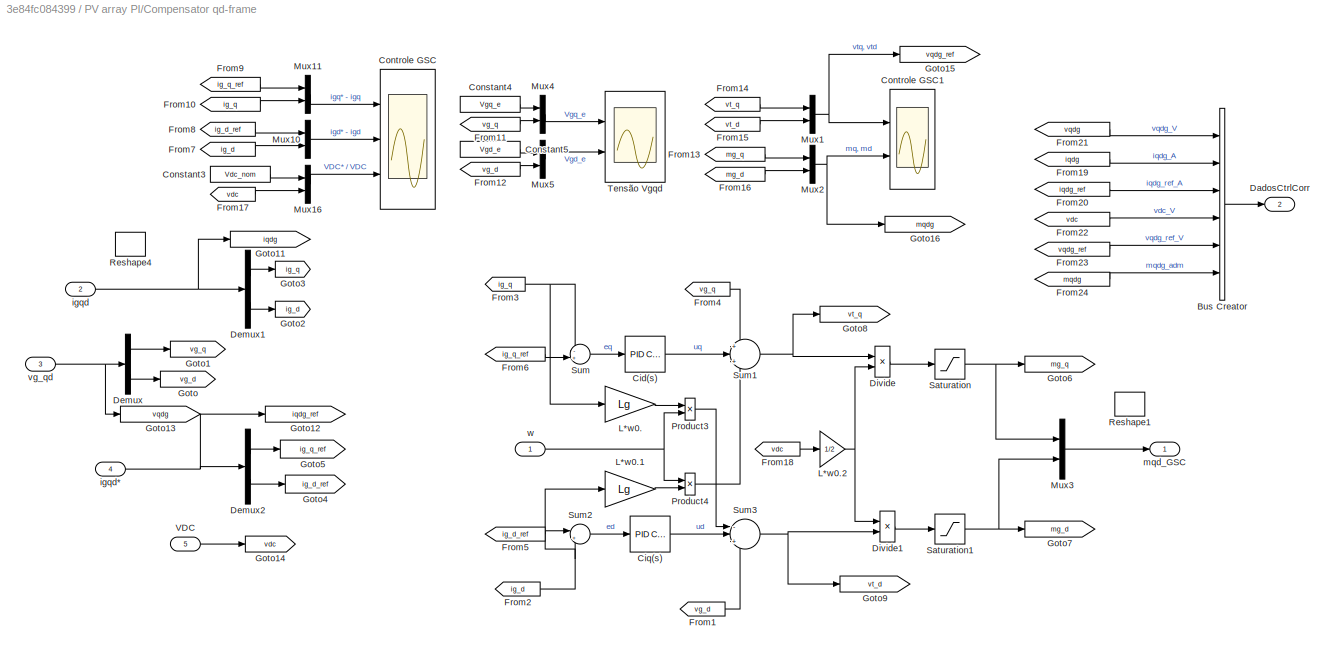
BLOCK [SubSystem] PV array PI/Compensator qd-frame
  Ports = [5, 2]
  RequestExecContextInheritance = off
  Variant = off
BLOCK [BusCreator] PV array PI/Compensator qd-frame/Bus Creator
  DisplayOption = bar
  InheritFromInputs = on
  Inputs = 6
  Ports = [6, 1]
BLOCK [Reference] PV array PI/Compensator qd-frame/Cid(s)  REF=simulink/Continuous/PID Controller
  Ports = [1, 1]
  SourceBlock = simulink/Continuous/PID Controller
  SourceType = PID 1dof
BLOCK [Reference] PV array PI/Compensator qd-frame/Ciq(s)  REF=simulink/Continuous/PID Controller
  Ports = [1, 1]
  SourceBlock = simulink/Continuous/PID Controller
  SourceType = PID 1dof
BLOCK [Constant] PV array PI/Compensator qd-frame/Constant3
  Value = Vdc_nom
BLOCK [Constant] PV array PI/Compensator qd-frame/Constant4
  Value = Vgq_e
BLOCK [Constant] PV array PI/Compensator qd-frame/Constant5
  Value = Vgd_e
BLOCK [Scope] PV array PI/Compensator qd-frame/Controle GSC
  NumInputPorts = 3
  Ports = [3]
  ScopeSpecificationString = Simulink.scopes.TimeScopeBlockCfg('CurrentConfiguration', extmgr.ConfigurationSet(extmgr.Configuration('Core','General UI',true),extmgr.Configuration('Core','Source UI',true),extmgr.Configuration('Sources','WiredSimulink',true,'DataLoggingVariableName','ScopeData3','DataLoggingSaveFormat','StructureWithTime','DataLoggingDecimation','1','DataLoggingDecimateData',true),extmgr.Configuration('Visuals'...<+3163ch>
BLOCK [Scope] PV array PI/Compensator qd-frame/Controle GSC1
  NumInputPorts = 2
  Ports = [2]
  ScopeSpecificationString = Simulink.scopes.TimeScopeBlockCfg('CurrentConfiguration', extmgr.ConfigurationSet(extmgr.Configuration('Core','General UI',true),extmgr.Configuration('Core','Source UI',true),extmgr.Configuration('Sources','WiredSimulink',true,'DataLoggingVariableName','ScopeData4','DataLoggingSaveFormat','StructureWithTime','DataLoggingDecimation','1','DataLoggingDecimateData',true),extmgr.Configuration('Visuals'...<+2359ch>
BLOCK [Outport] PV array PI/Compensator qd-frame/DadosCtrlCorr
  IconDisplay = Port number
  Port = 2
BLOCK [Demux] PV array PI/Compensator qd-frame/Demux
  DisplayOption = bar
  Outputs = 2
  Ports = [1, 2]
BLOCK [Demux] PV array PI/Compensator qd-frame/Demux1
  DisplayOption = bar
  Outputs = 2
  Ports = [1, 2]
BLOCK [Demux] PV array PI/Compensator qd-frame/Demux2
  DisplayOption = bar
  Outputs = 2
  Ports = [1, 2]
BLOCK [Product] PV array PI/Compensator qd-frame/Divide
  InputSameDT = off
  Inputs = */
  OutDataTypeStr = Inherit: Inherit via internal rule
  Ports = [2, 1]
  RndMeth = Floor
  SaturateOnIntegerOverflow = off
BLOCK [Product] PV array PI/Compensator qd-frame/Divide1
  InputSameDT = off
  Inputs = /*
  OutDataTypeStr = Inherit: Inherit via internal rule
  Ports = [2, 1]
  RndMeth = Floor
  SaturateOnIntegerOverflow = off
BLOCK [From] PV array PI/Compensator qd-frame/From1
  GotoTag = vg_d
BLOCK [From] PV array PI/Compensator qd-frame/From10
  GotoTag = ig_q
BLOCK [From] PV array PI/Compensator qd-frame/From11
  GotoTag = vg_q
BLOCK [From] PV array PI/Compensator qd-frame/From12
  GotoTag = vg_d
BLOCK [From] PV array PI/Compensator qd-frame/From13
  GotoTag = mg_q
BLOCK [From] PV array PI/Compensator qd-frame/From14
  GotoTag = vt_q
BLOCK [From] PV array PI/Compensator qd-frame/From15
  GotoTag = vt_d
BLOCK [From] PV array PI/Compensator qd-frame/From16
  GotoTag = mg_d
BLOCK [From] PV array PI/Compensator qd-frame/From17
  GotoTag = vdc
BLOCK [From] PV array PI/Compensator qd-frame/From18
  GotoTag = vdc
BLOCK [From] PV array PI/Compensator qd-frame/From19
  GotoTag = iqdg
BLOCK [From] PV array PI/Compensator qd-frame/From2
  GotoTag = ig_d
BLOCK [From] PV array PI/Compensator qd-frame/From20
  GotoTag = iqdg_ref
BLOCK [From] PV array PI/Compensator qd-frame/From21
  GotoTag = vqdg
BLOCK [From] PV array PI/Compensator qd-frame/From22
  GotoTag = vdc
BLOCK [From] PV array PI/Compensator qd-frame/From23
  GotoTag = vqdg_ref
BLOCK [From] PV array PI/Compensator qd-frame/From24
  GotoTag = mqdg
BLOCK [From] PV array PI/Compensator qd-frame/From3
  GotoTag = ig_q
BLOCK [From] PV array PI/Compensator qd-frame/From4
  GotoTag = vg_q
BLOCK [From] PV array PI/Compensator qd-frame/From5
  GotoTag = ig_d_ref
BLOCK [From] PV array PI/Compensator qd-frame/From6
  GotoTag = ig_q_ref
BLOCK [From] PV array PI/Compensator qd-frame/From7
  GotoTag = ig_d
BLOCK [From] PV array PI/Compensator qd-frame/From8
  GotoTag = ig_d_ref
BLOCK [From] PV array PI/Compensator qd-frame/From9
  GotoTag = ig_q_ref
BLOCK [Goto] PV array PI/Compensator qd-frame/Goto
  GotoTag = vg_d
BLOCK [Goto] PV array PI/Compensator qd-frame/Goto1
  GotoTag = vg_q
BLOCK [Goto] PV array PI/Compensator qd-frame/Goto11
  GotoTag = iqdg
BLOCK [Goto] PV array PI/Compensator qd-frame/Goto12
  GotoTag = iqdg_ref
BLOCK [Goto] PV array PI/Compensator qd-frame/Goto13
  GotoTag = vqdg
BLOCK [Goto] PV array PI/Compensator qd-frame/Goto14
  GotoTag = vdc
BLOCK [Goto] PV array PI/Compensator qd-frame/Goto15
  GotoTag = vqdg_ref
BLOCK [Goto] PV array PI/Compensator qd-frame/Goto16
  GotoTag = mqdg
BLOCK [Goto] PV array PI/Compensator qd-frame/Goto2
  GotoTag = ig_d
BLOCK [Goto] PV array PI/Compensator qd-frame/Goto3
  GotoTag = ig_q
BLOCK [Goto] PV array PI/Compensator qd-frame/Goto4
  GotoTag = ig_d_ref
BLOCK [Goto] PV array PI/Compensator qd-frame/Goto5
  GotoTag = ig_q_ref
BLOCK [Goto] PV array PI/Compensator qd-frame/Goto6
  GotoTag = mg_q
BLOCK [Goto] PV array PI/Compensator qd-frame/Goto7
  GotoTag = mg_d
BLOCK [Goto] PV array PI/Compensator qd-frame/Goto8
  GotoTag = vt_q
BLOCK [Goto] PV array PI/Compensator qd-frame/Goto9
  GotoTag = vt_d
BLOCK [Gain] PV array PI/Compensator qd-frame/L*w0.
  Gain = Lg
  OutDataTypeStr = Inherit: Inherit via internal rule
  ParamDataTypeStr = Inherit: Inherit via internal rule
  SaturateOnIntegerOverflow = off
BLOCK [Gain] PV array PI/Compensator qd-frame/L*w0.1
  Gain = Lg
  OutDataTypeStr = Inherit: Inherit via internal rule
  ParamDataTypeStr = Inherit: Inherit via internal rule
  SaturateOnIntegerOverflow = off
BLOCK [Gain] PV array PI/Compensator qd-frame/L*w0.2
  Gain = 1/2
  OutDataTypeStr = Inherit: Inherit via internal rule
  ParamDataTypeStr = Inherit: Inherit via internal rule
  SaturateOnIntegerOverflow = off
BLOCK [Mux] PV array PI/Compensator qd-frame/Mux1
  DisplayOption = bar
  Inputs = 2
  Ports = [2, 1]
BLOCK [Mux] PV array PI/Compensator qd-frame/Mux10
  DisplayOption = bar
  Inputs = 2
  Ports = [2, 1]
BLOCK [Mux] PV array PI/Compensator qd-frame/Mux11
  DisplayOption = bar
  Inputs = 2
  Ports = [2, 1]
BLOCK [Mux] PV array PI/Compensator qd-frame/Mux16
  DisplayOption = bar
  Inputs = 2
  Ports = [2, 1]
BLOCK [Mux] PV array PI/Compensator qd-frame/Mux2
  DisplayOption = bar
  Inputs = 2
  Ports = [2, 1]
BLOCK [Mux] PV array PI/Compensator qd-frame/Mux3
  DisplayOption = bar
  Inputs = 2
  Ports = [2, 1]
BLOCK [Mux] PV array PI/Compensator qd-frame/Mux4
  DisplayOption = bar
  Inputs = 2
  Ports = [2, 1]
BLOCK [Mux] PV array PI/Compensator qd-frame/Mux5
  DisplayOption = bar
  Inputs = 2
  Ports = [2, 1]
BLOCK [Product] PV array PI/Compensator qd-frame/Product3
  InputSameDT = off
  OutDataTypeStr = Inherit: Inherit via internal rule
  Ports = [2, 1]
  RndMeth = Floor
  SaturateOnIntegerOverflow = off
BLOCK [Product] PV array PI/Compensator qd-frame/Product4
  InputSameDT = off
  OutDataTypeStr = Inherit: Inherit via internal rule
  Ports = [2, 1]
  RndMeth = Floor
  SaturateOnIntegerOverflow = off
BLOCK [Reshape] PV array PI/Compensator qd-frame/Reshape1
  Commented = on
  OutputDimensionality = Customize
  OutputDimensions = [2,1]
  Ports = [1, 1]
BLOCK [Reshape] PV array PI/Compensator qd-frame/Reshape4
  Commented = on
  OutputDimensionality = Customize
  OutputDimensions = [2,1]
  Ports = [1, 1]
BLOCK [Saturate] PV array PI/Compensator qd-frame/Saturation
  InputPortMap = u0
  LowerLimit = -1
  Ports = [1, 1]
  UpperLimit = 1
BLOCK [Saturate] PV array PI/Compensator qd-frame/Saturation1
  InputPortMap = u0
  LowerLimit = -1
  Ports = [1, 1]
  UpperLimit = 1
BLOCK [Sum] PV array PI/Compensator qd-frame/Sum
  IconShape = round
  InputSameDT = off
  Inputs = -+|
  OutDataTypeStr = Inherit: Inherit via internal rule
  Ports = [2, 1]
  SaturateOnIntegerOverflow = off
BLOCK [Sum] PV array PI/Compensator qd-frame/Sum1
  IconShape = round
  InputSameDT = off
  Inputs = +|+|+
  OutDataTypeStr = Inherit: Inherit via internal rule
  Ports = [3, 1]
  SaturateOnIntegerOverflow = off
BLOCK [Sum] PV array PI/Compensator qd-frame/Sum2
  IconShape = round
  InputSameDT = off
  Inputs = |+-
  OutDataTypeStr = Inherit: Inherit via internal rule
  Ports = [2, 1]
  SaturateOnIntegerOverflow = off
BLOCK [Sum] PV array PI/Compensator qd-frame/Sum3
  IconShape = round
  InputSameDT = off
  Inputs = -|+|+
  OutDataTypeStr = Inherit: Inherit via internal rule
  Ports = [3, 1]
  SaturateOnIntegerOverflow = off
BLOCK [Scope] PV array PI/Compensator qd-frame/Tensão Vgqd
  NumInputPorts = 2
  Ports = [2]
  ScopeSpecificationString = Simulink.scopes.TimeScopeBlockCfg('CurrentConfiguration', extmgr.ConfigurationSet(extmgr.Configuration('Core','General UI',true),extmgr.Configuration('Core','Source UI',true),extmgr.Configuration('Sources','WiredSimulink',true,'DataLoggingVariableName','ScopeData36','DataLoggingSaveFormat','StructureWithTime','DataLoggingDecimation','1','DataLoggingDecimateData',true),extmgr.Configuration('Visuals...<+2353ch>
BLOCK [Inport] PV array PI/Compensator qd-frame/VDC
  IconDisplay = Port number
  Port = 5
BLOCK [Inport] PV array PI/Compensator qd-frame/igqd
  IconDisplay = Port number
  Port = 2
BLOCK [Inport] PV array PI/Compensator qd-frame/igqd*
  IconDisplay = Port number
  Port = 4
BLOCK [Outport] PV array PI/Compensator qd-frame/mqd_GSC
  IconDisplay = Port number
BLOCK [Inport] PV array PI/Compensator qd-frame/vg_qd
  IconDisplay = Port number
  Port = 3
BLOCK [Inport] PV array PI/Compensator qd-frame/w
  IconDisplay = Port number
BLOCK [Scope] PV array PI/Controle PLL
  NumInputPorts = 2
  Ports = [2]
  ScopeSpecificationString = Simulink.scopes.TimeScopeBlockCfg('CurrentConfiguration', extmgr.ConfigurationSet(extmgr.Configuration('Core','General UI',true),extmgr.Configuration('Core','Source UI',true),extmgr.Configuration('Sources','WiredSimulink',true,'DataLoggingVariableName','ScopeData6','DataLoggingSaveFormat','StructureWithTime','DataLoggingDecimation','1','DataLoggingDecimateData',true),extmgr.Configuration('Visuals'...<+2408ch>
BLOCK [Scope] PV array PI/Controle PLL1
  NumInputPorts = 2
  Ports = [2]
  ScopeSpecificationString = Simulink.scopes.TimeScopeBlockCfg('CurrentConfiguration', extmgr.ConfigurationSet(extmgr.Configuration('Core','General UI',true),extmgr.Configuration('Core','Source UI',true),extmgr.Configuration('Sources','WiredSimulink',true,'DataLoggingVariableName','ScopeData1','DataLoggingSaveFormat','StructureWithTime','DataLoggingDecimation','1','DataLoggingDecimateData',true),extmgr.Configuration('Visuals'...<+2307ch>
BLOCK [Reference] PV array PI/Controlled Current Source  REF=powerlib/Electrical
Sources/Controlled Current Source
  Ports = [1, 0, 0, 0, 0, 1, 1]
  SourceBlock = powerlib/Electrical\nSources/Controlled Current Source
  SourceType = Controlled Current Source
BLOCK [Reference] PV array PI/Current Measurement  REF=powerlib/Measurements/Current Measurement
  Ports = [0, 1, 0, 0, 0, 1, 1]
  SourceBlock = powerlib/Measurements/Current Measurement
  SourceType = Current Measurement
BLOCK [Reference] PV array PI/DC Voltage Source1  REF=powerlib/Electrical
Sources/DC Voltage Source
  Commented = on
  Ports = [0, 0, 0, 0, 0, 1, 1]
  SourceBlock = powerlib/Electrical\nSources/DC Voltage Source
  SourceType = DC Voltage Source
BLOCK [Reference] PV array PI/DC Voltage Source2  REF=powerlib/Electrical
Sources/DC Voltage Source
  Commented = on
  Ports = [0, 0, 0, 0, 0, 1, 1]
  SourceBlock = powerlib/Electrical\nSources/DC Voltage Source
  SourceType = DC Voltage Source
BLOCK [SubSystem] PV array PI/DSOGI1
  Commented = on
  Ports = [3, 1]
  RequestExecContextInheritance = off
  Variant = off
BLOCK [SubSystem] PV array PI/DSOGI1/Calcula Impedância2
  Ports = [2, 4]
  RequestExecContextInheritance = off
  Variant = off
BLOCK [Constant] PV array PI/DSOGI1/Calcula Impedância2/Constant2
  SampleTime = 0
  Value = wB
BLOCK [SubSystem] PV array PI/DSOGI1/Calcula Impedância2/DSOGI (Corrente)
  Ports = [2, 2]
  RequestExecContextInheritance = off
  Variant = off
BLOCK [Demux] PV array PI/DSOGI1/Calcula Impedância2/DSOGI (Corrente)/Demux
  DisplayOption = bar
  Outputs = 2
  Ports = [1, 2]
BLOCK [Inport] PV array PI/DSOGI1/Calcula Impedância2/DSOGI (Corrente)/Falbe
  IconDisplay = Port number
  Port = 2
BLOCK [Outport] PV array PI/DSOGI1/Calcula Impedância2/DSOGI (Corrente)/Falbe(+)
  IconDisplay = Port number
BLOCK [Outport] PV array PI/DSOGI1/Calcula Impedância2/DSOGI (Corrente)/Falbe(-)
  IconDisplay = Port number
  Port = 2
BLOCK [From] PV array PI/DSOGI1/Calcula Impedância2/DSOGI (Corrente)/From1
  GotoTag = qfal_lin
BLOCK [From] PV array PI/DSOGI1/Calcula Impedância2/DSOGI (Corrente)/From2
  GotoTag = qfbe_lin
BLOCK [From] PV array PI/DSOGI1/Calcula Impedância2/DSOGI (Corrente)/From3
  GotoTag = fbe_lin
BLOCK [From] PV array PI/DSOGI1/Calcula Impedância2/DSOGI (Corrente)/From4
  GotoTag = fal
BLOCK [From] PV array PI/DSOGI1/Calcula Impedância2/DSOGI (Corrente)/From5
  GotoTag = fbe
BLOCK [From] PV array PI/DSOGI1/Calcula Impedância2/DSOGI (Corrente)/From8
  GotoTag = fal_lin
BLOCK [Goto] PV array PI/DSOGI1/Calcula Impedância2/DSOGI (Corrente)/Goto1
  GotoTag = qfal_lin
BLOCK [Goto] PV array PI/DSOGI1/Calcula Impedância2/DSOGI (Corrente)/Goto2
  GotoTag = qfbe_lin
BLOCK [Goto] PV array PI/DSOGI1/Calcula Impedância2/DSOGI (Corrente)/Goto3
  GotoTag = fbe_lin
BLOCK [Goto] PV array PI/DSOGI1/Calcula Impedância2/DSOGI (Corrente)/Goto4
  GotoTag = fal_lin
BLOCK [Goto] PV array PI/DSOGI1/Calcula Impedância2/DSOGI (Corrente)/Goto5
  GotoTag = fal
BLOCK [Goto] PV array PI/DSOGI1/Calcula Impedância2/DSOGI (Corrente)/Goto6
  GotoTag = fbe
BLOCK [Mux] PV array PI/DSOGI1/Calcula Impedância2/DSOGI (Corrente)/Mux
  DisplayOption = bar
  Inputs = 2
  Ports = [2, 1]
BLOCK [Mux] PV array PI/DSOGI1/Calcula Impedância2/DSOGI (Corrente)/Mux1
  DisplayOption = bar
  Inputs = 2
  Ports = [2, 1]
BLOCK [Mux] PV array PI/DSOGI1/Calcula Impedância2/DSOGI (Corrente)/Mux2
  DisplayOption = bar
  Inputs = 3
  Ports = [3, 1]
BLOCK [Mux] PV array PI/DSOGI1/Calcula Impedância2/DSOGI (Corrente)/Mux3
  DisplayOption = bar
  Inputs = 3
  Ports = [3, 1]
BLOCK [SubSystem] PV array PI/DSOGI1/Calcula Impedância2/DSOGI (Corrente)/SOGI BPF (beta)
  Ports = [2, 2]
  RequestExecContextInheritance = off
  Variant = off
BLOCK [Gain] PV array PI/DSOGI1/Calcula Impedância2/DSOGI (Corrente)/SOGI BPF (beta)/Gain
  Gain = 1/2
  OutDataTypeStr = Inherit: Inherit via internal rule
  ParamDataTypeStr = Inherit: Inherit via internal rule
  SaturateOnIntegerOverflow = off
BLOCK [Gain] PV array PI/DSOGI1/Calcula Impedância2/DSOGI (Corrente)/SOGI BPF (beta)/Gain2
  Gain = k
  OutDataTypeStr = Inherit: Inherit via internal rule
  ParamDataTypeStr = Inherit: Inherit via internal rule
  SaturateOnIntegerOverflow = off
BLOCK [Integrator] PV array PI/DSOGI1/Calcula Impedância2/DSOGI (Corrente)/SOGI BPF (beta)/Integrator
  InitialCondition = int3_i
  Ports = [1, 1]
BLOCK [Integrator] PV array PI/DSOGI1/Calcula Impedância2/DSOGI (Corrente)/SOGI BPF (beta)/Integrator1
  InitialCondition = int4_i
  Ports = [1, 1]
BLOCK [Product] PV array PI/DSOGI1/Calcula Impedância2/DSOGI (Corrente)/SOGI BPF (beta)/Product
  InputSameDT = off
  OutDataTypeStr = Inherit: Inherit via internal rule
  Ports = [2, 1]
  RndMeth = Floor
  SaturateOnIntegerOverflow = off
BLOCK [Product] PV array PI/DSOGI1/Calcula Impedância2/DSOGI (Corrente)/SOGI BPF (beta)/Product1
  InputSameDT = off
  OutDataTypeStr = Inherit: Inherit via internal rule
  Ports = [2, 1]
  RndMeth = Floor
  SaturateOnIntegerOverflow = off
BLOCK [Sum] PV array PI/DSOGI1/Calcula Impedância2/DSOGI (Corrente)/SOGI BPF (beta)/Sum
  IconShape = round
  InputSameDT = off
  Inputs = -+|
  OutDataTypeStr = Inherit: Inherit via internal rule
  Ports = [2, 1]
  SaturateOnIntegerOverflow = off
BLOCK [Sum] PV array PI/DSOGI1/Calcula Impedância2/DSOGI (Corrente)/SOGI BPF (beta)/Sum2
  IconShape = round
  InputSameDT = off
  Inputs = |+-
  OutDataTypeStr = Inherit: Inherit via internal rule
  Ports = [2, 1]
  SaturateOnIntegerOverflow = off
BLOCK [Inport] PV array PI/DSOGI1/Calcula Impedância2/DSOGI (Corrente)/SOGI BPF (beta)/fbe
  IconDisplay = Port number
  Port = 2
BLOCK [Outport] PV array PI/DSOGI1/Calcula Impedância2/DSOGI (Corrente)/SOGI BPF (beta)/fbe'
  IconDisplay = Port number
BLOCK [Outport] PV array PI/DSOGI1/Calcula Impedância2/DSOGI (Corrente)/SOGI BPF (beta)/qfbe'
  IconDisplay = Port number
  Port = 2
BLOCK [Inport] PV array PI/DSOGI1/Calcula Impedância2/DSOGI (Corrente)/SOGI BPF (beta)/wr
  IconDisplay = Port number
BLOCK [SubSystem] PV array PI/DSOGI1/Calcula Impedância2/DSOGI (Corrente)/SOGI BPF(alfa) 
  Ports = [2, 2]
  RequestExecContextInheritance = off
  Variant = off
BLOCK [Gain] PV array PI/DSOGI1/Calcula Impedância2/DSOGI (Corrente)/SOGI BPF(alfa) /Gain
  Gain = 1/2
  OutDataTypeStr = Inherit: Inherit via internal rule
  ParamDataTypeStr = Inherit: Inherit via internal rule
  SaturateOnIntegerOverflow = off
BLOCK [Gain] PV array PI/DSOGI1/Calcula Impedância2/DSOGI (Corrente)/SOGI BPF(alfa) /Gain2
  Gain = k
  OutDataTypeStr = Inherit: Inherit via internal rule
  ParamDataTypeStr = Inherit: Inherit via internal rule
  SaturateOnIntegerOverflow = off
BLOCK [Integrator] PV array PI/DSOGI1/Calcula Impedância2/DSOGI (Corrente)/SOGI BPF(alfa) /Integrator
  InitialCondition = int1_i
  Ports = [1, 1]
BLOCK [Integrator] PV array PI/DSOGI1/Calcula Impedância2/DSOGI (Corrente)/SOGI BPF(alfa) /Integrator1
  InitialCondition = int2_i
  Ports = [1, 1]
BLOCK [Product] PV array PI/DSOGI1/Calcula Impedância2/DSOGI (Corrente)/SOGI BPF(alfa) /Product
  InputSameDT = off
  OutDataTypeStr = Inherit: Inherit via internal rule
  Ports = [2, 1]
  RndMeth = Floor
  SaturateOnIntegerOverflow = off
BLOCK [Product] PV array PI/DSOGI1/Calcula Impedância2/DSOGI (Corrente)/SOGI BPF(alfa) /Product1
  InputSameDT = off
  OutDataTypeStr = Inherit: Inherit via internal rule
  Ports = [2, 1]
  RndMeth = Floor
  SaturateOnIntegerOverflow = off
BLOCK [Sum] PV array PI/DSOGI1/Calcula Impedância2/DSOGI (Corrente)/SOGI BPF(alfa) /Sum
  IconShape = round
  InputSameDT = off
  Inputs = -+|
  OutDataTypeStr = Inherit: Inherit via internal rule
  Ports = [2, 1]
  SaturateOnIntegerOverflow = off
BLOCK [Sum] PV array PI/DSOGI1/Calcula Impedância2/DSOGI (Corrente)/SOGI BPF(alfa) /Sum2
  IconShape = round
  InputSameDT = off
  Inputs = |+-
  OutDataTypeStr = Inherit: Inherit via internal rule
  Ports = [2, 1]
  SaturateOnIntegerOverflow = off
BLOCK [Inport] PV array PI/DSOGI1/Calcula Impedância2/DSOGI (Corrente)/SOGI BPF(alfa) /fal
  IconDisplay = Port number
  Port = 2
BLOCK [Outport] PV array PI/DSOGI1/Calcula Impedância2/DSOGI (Corrente)/SOGI BPF(alfa) /fal'
  IconDisplay = Port number
BLOCK [Outport] PV array PI/DSOGI1/Calcula Impedância2/DSOGI (Corrente)/SOGI BPF(alfa) /qfal'
  IconDisplay = Port number
  Port = 2
BLOCK [Inport] PV array PI/DSOGI1/Calcula Impedância2/DSOGI (Corrente)/SOGI BPF(alfa) /wr
  IconDisplay = Port number
BLOCK [Scope] PV array PI/DSOGI1/Calcula Impedância2/DSOGI (Corrente)/Sinais
  NumInputPorts = 2
  Ports = [2]
BLOCK [Sum] PV array PI/DSOGI1/Calcula Impedância2/DSOGI (Corrente)/Sum3
  IconShape = round
  InputSameDT = off
  Inputs = |+-
  OutDataTypeStr = Inherit: Inherit via internal rule
  Ports = [2, 1]
  SaturateOnIntegerOverflow = off
BLOCK [Sum] PV array PI/DSOGI1/Calcula Impedância2/DSOGI (Corrente)/Sum5
  IconShape = round
  InputSameDT = off
  Inputs = |++
  OutDataTypeStr = Inherit: Inherit via internal rule
  Ports = [2, 1]
  SaturateOnIntegerOverflow = off
BLOCK [Sum] PV array PI/DSOGI1/Calcula Impedância2/DSOGI (Corrente)/Sum6
  IconShape = round
  InputSameDT = off
  Inputs = ++|
  OutDataTypeStr = Inherit: Inherit via internal rule
  Ports = [2, 1]
  SaturateOnIntegerOverflow = off
BLOCK [Sum] PV array PI/DSOGI1/Calcula Impedância2/DSOGI (Corrente)/Sum7
  IconShape = round
  InputSameDT = off
  Inputs = +-|
  OutDataTypeStr = Inherit: Inherit via internal rule
  Ports = [2, 1]
  SaturateOnIntegerOverflow = off
BLOCK [Scope] PV array PI/DSOGI1/Calcula Impedância2/DSOGI (Corrente)/falbe(+-)
  NumInputPorts = 2
  Ports = [2]
  ScopeSpecificationString = C++SS(StrPVP('Location','[2175, -75, 2959, 719]'),StrPVP('Open','off'),MxPVP('AxesTitles',24,'struct(''axes1'',''%<SignalLabel>'',''axes2'',''%<SignalLabel>'')'),MxPVP('ScopeGraphics',28,'struct(''FigureColor'',''[0.5 0.5 0.5]'',''AxesColor'',''[0 0 0]'',''AxesTickColor'',''[1 1 1]'',''LineColors'',''[1 1 0;1 0 1;0 1 1;1 0 0;0 1 0;0 0 1]'',''LineStyles'',''-|-|-|-|-|-'',''LineWidths'',''[0.5 0.5 0...<+379ch>
BLOCK [Inport] PV array PI/DSOGI1/Calcula Impedância2/DSOGI (Corrente)/w
  IconDisplay = Port number
BLOCK [SubSystem] PV array PI/DSOGI1/Calcula Impedância2/DSOGI (Tensão)
  Ports = [2, 2]
  RequestExecContextInheritance = off
  Variant = off
BLOCK [Scope] PV array PI/DSOGI1/Calcula Impedância2/DSOGI (Tensão)/Comparaçao
  NumInputPorts = 2
  Ports = [2]
  ScopeSpecificationString = C++SS(StrPVP('Location','[9, 57, 676, 719]'),StrPVP('Open','off'),MxPVP('AxesTitles',24,'struct(''axes1'',''%<SignalLabel>'',''axes2'',''%<SignalLabel>'')'),MxPVP('ScopeGraphics',28,'struct(''FigureColor'',''[0.5 0.5 0.5]'',''AxesColor'',''[0 0 0]'',''AxesTickColor'',''[1 1 1]'',''LineColors'',''[1 1 0;1 0 1;0 1 1;1 0 0;0 1 0;0 0 1]'',''LineStyles'',''-|-|-|-|-|-'',''LineWidths'',''[0.5 0.5 0.5 0....<+350ch>
BLOCK [Demux] PV array PI/DSOGI1/Calcula Impedância2/DSOGI (Tensão)/Demux
  DisplayOption = bar
  Outputs = 2
  Ports = [1, 2]
BLOCK [Demux] PV array PI/DSOGI1/Calcula Impedância2/DSOGI (Tensão)/Demux1
  DisplayOption = bar
  Outputs = 2
  Ports = [1, 2]
BLOCK [Inport] PV array PI/DSOGI1/Calcula Impedância2/DSOGI (Tensão)/Falbe
  IconDisplay = Port number
  Port = 2
BLOCK [Outport] PV array PI/DSOGI1/Calcula Impedância2/DSOGI (Tensão)/Falbe(+)
  IconDisplay = Port number
BLOCK [Outport] PV array PI/DSOGI1/Calcula Impedância2/DSOGI (Tensão)/Falbe(-)
  IconDisplay = Port number
  Port = 2
BLOCK [From] PV array PI/DSOGI1/Calcula Impedância2/DSOGI (Tensão)/From1
  GotoTag = qfal_lin
BLOCK [From] PV array PI/DSOGI1/Calcula Impedância2/DSOGI (Tensão)/From10
  GotoTag = fbe_pos
BLOCK [From] PV array PI/DSOGI1/Calcula Impedância2/DSOGI (Tensão)/From2
  GotoTag = qfbe_lin
BLOCK [From] PV array PI/DSOGI1/Calcula Impedância2/DSOGI (Tensão)/From3
  GotoTag = fbe_lin
BLOCK [From] PV array PI/DSOGI1/Calcula Impedância2/DSOGI (Tensão)/From4
  GotoTag = fal
BLOCK [From] PV array PI/DSOGI1/Calcula Impedância2/DSOGI (Tensão)/From5
  GotoTag = fbe
BLOCK [From] PV array PI/DSOGI1/Calcula Impedância2/DSOGI (Tensão)/From6
  GotoTag = fal
BLOCK [From] PV array PI/DSOGI1/Calcula Impedância2/DSOGI (Tensão)/From7
  GotoTag = fal_pos
BLOCK [From] PV array PI/DSOGI1/Calcula Impedância2/DSOGI (Tensão)/From8
  GotoTag = fal_lin
BLOCK [From] PV array PI/DSOGI1/Calcula Impedância2/DSOGI (Tensão)/From9
  GotoTag = fbe
BLOCK [Goto] PV array PI/DSOGI1/Calcula Impedância2/DSOGI (Tensão)/Goto1
  GotoTag = qfal_lin
BLOCK [Goto] PV array PI/DSOGI1/Calcula Impedância2/DSOGI (Tensão)/Goto2
  GotoTag = qfbe_lin
BLOCK [Goto] PV array PI/DSOGI1/Calcula Impedância2/DSOGI (Tensão)/Goto3
  GotoTag = fbe_lin
BLOCK [Goto] PV array PI/DSOGI1/Calcula Impedância2/DSOGI (Tensão)/Goto4
  GotoTag = fal_lin
BLOCK [Goto] PV array PI/DSOGI1/Calcula Impedância2/DSOGI (Tensão)/Goto5
  GotoTag = fal
BLOCK [Goto] PV array PI/DSOGI1/Calcula Impedância2/DSOGI (Tensão)/Goto6
  GotoTag = fbe
BLOCK [Goto] PV array PI/DSOGI1/Calcula Impedância2/DSOGI (Tensão)/Goto7
  GotoTag = fal_pos
BLOCK [Goto] PV array PI/DSOGI1/Calcula Impedância2/DSOGI (Tensão)/Goto8
  GotoTag = fbe_pos
BLOCK [Mux] PV array PI/DSOGI1/Calcula Impedância2/DSOGI (Tensão)/Mux
  DisplayOption = bar
  Inputs = 2
  Ports = [2, 1]
BLOCK [Mux] PV array PI/DSOGI1/Calcula Impedância2/DSOGI (Tensão)/Mux1
  DisplayOption = bar
  Inputs = 2
  Ports = [2, 1]
BLOCK [Mux] PV array PI/DSOGI1/Calcula Impedância2/DSOGI (Tensão)/Mux2
  DisplayOption = bar
  Inputs = 3
  Ports = [3, 1]
BLOCK [Mux] PV array PI/DSOGI1/Calcula Impedância2/DSOGI (Tensão)/Mux3
  DisplayOption = bar
  Inputs = 3
  Ports = [3, 1]
BLOCK [Mux] PV array PI/DSOGI1/Calcula Impedância2/DSOGI (Tensão)/Mux4
  DisplayOption = bar
  Inputs = 2
  Ports = [2, 1]
BLOCK [Mux] PV array PI/DSOGI1/Calcula Impedância2/DSOGI (Tensão)/Mux5
  DisplayOption = bar
  Inputs = 2
  Ports = [2, 1]
BLOCK [SubSystem] PV array PI/DSOGI1/Calcula Impedância2/DSOGI (Tensão)/SOGI BPF (beta)
  Ports = [2, 2]
  RequestExecContextInheritance = off
  Variant = off
BLOCK [Gain] PV array PI/DSOGI1/Calcula Impedância2/DSOGI (Tensão)/SOGI BPF (beta)/Gain
  Gain = 1/2
  OutDataTypeStr = Inherit: Inherit via internal rule
  ParamDataTypeStr = Inherit: Inherit via internal rule
  SaturateOnIntegerOverflow = off
BLOCK [Gain] PV array PI/DSOGI1/Calcula Impedância2/DSOGI (Tensão)/SOGI BPF (beta)/Gain2
  Gain = k
  OutDataTypeStr = Inherit: Inherit via internal rule
  ParamDataTypeStr = Inherit: Inherit via internal rule
  SaturateOnIntegerOverflow = off
BLOCK [Integrator] PV array PI/DSOGI1/Calcula Impedância2/DSOGI (Tensão)/SOGI BPF (beta)/Integrator
  InitialCondition = int3_v
  Ports = [1, 1]
BLOCK [Integrator] PV array PI/DSOGI1/Calcula Impedância2/DSOGI (Tensão)/SOGI BPF (beta)/Integrator1
  InitialCondition = int4_v
  Ports = [1, 1]
BLOCK [Product] PV array PI/DSOGI1/Calcula Impedância2/DSOGI (Tensão)/SOGI BPF (beta)/Product
  InputSameDT = off
  OutDataTypeStr = Inherit: Inherit via internal rule
  Ports = [2, 1]
  RndMeth = Floor
  SaturateOnIntegerOverflow = off
BLOCK [Product] PV array PI/DSOGI1/Calcula Impedância2/DSOGI (Tensão)/SOGI BPF (beta)/Product1
  InputSameDT = off
  OutDataTypeStr = Inherit: Inherit via internal rule
  Ports = [2, 1]
  RndMeth = Floor
  SaturateOnIntegerOverflow = off
BLOCK [Sum] PV array PI/DSOGI1/Calcula Impedância2/DSOGI (Tensão)/SOGI BPF (beta)/Sum
  IconShape = round
  InputSameDT = off
  Inputs = -+|
  OutDataTypeStr = Inherit: Inherit via internal rule
  Ports = [2, 1]
  SaturateOnIntegerOverflow = off
BLOCK [Sum] PV array PI/DSOGI1/Calcula Impedância2/DSOGI (Tensão)/SOGI BPF (beta)/Sum2
  IconShape = round
  InputSameDT = off
  Inputs = |+-
  OutDataTypeStr = Inherit: Inherit via internal rule
  Ports = [2, 1]
  SaturateOnIntegerOverflow = off
BLOCK [Inport] PV array PI/DSOGI1/Calcula Impedância2/DSOGI (Tensão)/SOGI BPF (beta)/fbe
  IconDisplay = Port number
  Port = 2
BLOCK [Outport] PV array PI/DSOGI1/Calcula Impedância2/DSOGI (Tensão)/SOGI BPF (beta)/fbe'
  IconDisplay = Port number
BLOCK [Outport] PV array PI/DSOGI1/Calcula Impedância2/DSOGI (Tensão)/SOGI BPF (beta)/qfbe'
  IconDisplay = Port number
  Port = 2
BLOCK [Inport] PV array PI/DSOGI1/Calcula Impedância2/DSOGI (Tensão)/SOGI BPF (beta)/wr
  IconDisplay = Port number
BLOCK [SubSystem] PV array PI/DSOGI1/Calcula Impedância2/DSOGI (Tensão)/SOGI BPF(alfa) 
  Ports = [2, 2]
  RequestExecContextInheritance = off
  Variant = off
BLOCK [Gain] PV array PI/DSOGI1/Calcula Impedância2/DSOGI (Tensão)/SOGI BPF(alfa) /Gain
  Gain = 1/2
  OutDataTypeStr = Inherit: Inherit via internal rule
  ParamDataTypeStr = Inherit: Inherit via internal rule
  SaturateOnIntegerOverflow = off
BLOCK [Gain] PV array PI/DSOGI1/Calcula Impedância2/DSOGI (Tensão)/SOGI BPF(alfa) /Gain2
  Gain = k
  OutDataTypeStr = Inherit: Inherit via internal rule
  ParamDataTypeStr = Inherit: Inherit via internal rule
  SaturateOnIntegerOverflow = off
BLOCK [Integrator] PV array PI/DSOGI1/Calcula Impedância2/DSOGI (Tensão)/SOGI BPF(alfa) /Integrator
  InitialCondition = int1_v
  Ports = [1, 1]
BLOCK [Integrator] PV array PI/DSOGI1/Calcula Impedância2/DSOGI (Tensão)/SOGI BPF(alfa) /Integrator1
  InitialCondition = int2_v
  Ports = [1, 1]
BLOCK [Product] PV array PI/DSOGI1/Calcula Impedância2/DSOGI (Tensão)/SOGI BPF(alfa) /Product
  InputSameDT = off
  OutDataTypeStr = Inherit: Inherit via internal rule
  Ports = [2, 1]
  RndMeth = Floor
  SaturateOnIntegerOverflow = off
BLOCK [Product] PV array PI/DSOGI1/Calcula Impedância2/DSOGI (Tensão)/SOGI BPF(alfa) /Product1
  InputSameDT = off
  OutDataTypeStr = Inherit: Inherit via internal rule
  Ports = [2, 1]
  RndMeth = Floor
  SaturateOnIntegerOverflow = off
BLOCK [Sum] PV array PI/DSOGI1/Calcula Impedância2/DSOGI (Tensão)/SOGI BPF(alfa) /Sum
  IconShape = round
  InputSameDT = off
  Inputs = -+|
  OutDataTypeStr = Inherit: Inherit via internal rule
  Ports = [2, 1]
  SaturateOnIntegerOverflow = off
BLOCK [Sum] PV array PI/DSOGI1/Calcula Impedância2/DSOGI (Tensão)/SOGI BPF(alfa) /Sum2
  IconShape = round
  InputSameDT = off
  Inputs = |+-
  OutDataTypeStr = Inherit: Inherit via internal rule
  Ports = [2, 1]
  SaturateOnIntegerOverflow = off
BLOCK [Inport] PV array PI/DSOGI1/Calcula Impedância2/DSOGI (Tensão)/SOGI BPF(alfa) /fal
  IconDisplay = Port number
  Port = 2
BLOCK [Outport] PV array PI/DSOGI1/Calcula Impedância2/DSOGI (Tensão)/SOGI BPF(alfa) /fal'
  IconDisplay = Port number
BLOCK [Outport] PV array PI/DSOGI1/Calcula Impedância2/DSOGI (Tensão)/SOGI BPF(alfa) /qfal'
  IconDisplay = Port number
  Port = 2
BLOCK [Inport] PV array PI/DSOGI1/Calcula Impedância2/DSOGI (Tensão)/SOGI BPF(alfa) /wr
  IconDisplay = Port number
BLOCK [Scope] PV array PI/DSOGI1/Calcula Impedância2/DSOGI (Tensão)/Sinais
  NumInputPorts = 2
  Ports = [2]
BLOCK [Sum] PV array PI/DSOGI1/Calcula Impedância2/DSOGI (Tensão)/Sum3
  IconShape = round
  InputSameDT = off
  Inputs = |+-
  OutDataTypeStr = Inherit: Inherit via internal rule
  Ports = [2, 1]
  SaturateOnIntegerOverflow = off
BLOCK [Sum] PV array PI/DSOGI1/Calcula Impedância2/DSOGI (Tensão)/Sum5
  IconShape = round
  InputSameDT = off
  Inputs = |++
  OutDataTypeStr = Inherit: Inherit via internal rule
  Ports = [2, 1]
  SaturateOnIntegerOverflow = off
BLOCK [Sum] PV array PI/DSOGI1/Calcula Impedância2/DSOGI (Tensão)/Sum6
  IconShape = round
  InputSameDT = off
  Inputs = ++|
  OutDataTypeStr = Inherit: Inherit via internal rule
  Ports = [2, 1]
  SaturateOnIntegerOverflow = off
BLOCK [Sum] PV array PI/DSOGI1/Calcula Impedância2/DSOGI (Tensão)/Sum7
  IconShape = round
  InputSameDT = off
  Inputs = +-|
  OutDataTypeStr = Inherit: Inherit via internal rule
  Ports = [2, 1]
  SaturateOnIntegerOverflow = off
BLOCK [Scope] PV array PI/DSOGI1/Calcula Impedância2/DSOGI (Tensão)/falbe(+-)
  NumInputPorts = 2
  Ports = [2]
  ScopeSpecificationString = C++SS(StrPVP('Location','[2175, -75, 2959, 719]'),StrPVP('Open','off'),MxPVP('AxesTitles',24,'struct(''axes1'',''%<SignalLabel>'',''axes2'',''%<SignalLabel>'')'),MxPVP('ScopeGraphics',28,'struct(''FigureColor'',''[0.5 0.5 0.5]'',''AxesColor'',''[0 0 0]'',''AxesTickColor'',''[1 1 1]'',''LineColors'',''[1 1 0;1 0 1;0 1 1;1 0 0;0 1 0;0 0 1]'',''LineStyles'',''-|-|-|-|-|-'',''LineWidths'',''[0.5 0.5 0...<+355ch>
BLOCK [Inport] PV array PI/DSOGI1/Calcula Impedância2/DSOGI (Tensão)/w
  IconDisplay = Port number
BLOCK [Demux] PV array PI/DSOGI1/Calcula Impedância2/Demux
  DisplayOption = bar
  Outputs = 2
  Ports = [1, 2]
BLOCK [Demux] PV array PI/DSOGI1/Calcula Impedância2/Demux1
  DisplayOption = bar
  Outputs = 2
  Ports = [1, 2]
BLOCK [Gain] PV array PI/DSOGI1/Calcula Impedância2/Gain
  Commented = on
  OutDataTypeStr = Inherit: Inherit via internal rule
  ParamDataTypeStr = Inherit: Inherit via internal rule
  SaturateOnIntegerOverflow = off
BLOCK [Inport] PV array PI/DSOGI1/Calcula Impedância2/I_abc
  IconDisplay = Port number
  Port = 2
BLOCK [Outport] PV array PI/DSOGI1/Calcula Impedância2/Ipac_d
  IconDisplay = Port number
  Port = 4
BLOCK [Outport] PV array PI/DSOGI1/Calcula Impedância2/Ipac_q
  IconDisplay = Port number
  Port = 3
BLOCK [SubSystem] PV array PI/DSOGI1/Calcula Impedância2/PLL
  Ports = [2, 3]
  RequestExecContextInheritance = off
  Variant = off
BLOCK [Constant] PV array PI/DSOGI1/Calcula Impedância2/PLL/Constant1
  Value = wB
BLOCK [Constant] PV array PI/DSOGI1/Calcula Impedância2/PLL/Constant2
  Value = wB
BLOCK [Inport] PV array PI/DSOGI1/Calcula Impedância2/PLL/Falbe
  IconDisplay = Port number
BLOCK [Outport] PV array PI/DSOGI1/Calcula Impedância2/PLL/Fqd
  IconDisplay = Port number
BLOCK [From] PV array PI/DSOGI1/Calcula Impedância2/PLL/From
  GotoTag = Fqd
BLOCK [From] PV array PI/DSOGI1/Calcula Impedância2/PLL/From1
  GotoTag = ro
BLOCK [From] PV array PI/DSOGI1/Calcula Impedância2/PLL/From2
  GotoTag = Falbe
BLOCK [From] PV array PI/DSOGI1/Calcula Impedância2/PLL/From3
  GotoTag = w
BLOCK [Gain] PV array PI/DSOGI1/Calcula Impedância2/PLL/Gain
  Gain = -1/Vp
  OutDataTypeStr = Inherit: Inherit via internal rule
  ParamDataTypeStr = Inherit: Inherit via internal rule
  SaturateOnIntegerOverflow = off
BLOCK [Goto] PV array PI/DSOGI1/Calcula Impedância2/PLL/Goto
  GotoTag = Fqd
BLOCK [Goto] PV array PI/DSOGI1/Calcula Impedância2/PLL/Goto1
  GotoTag = ro
BLOCK [Goto] PV array PI/DSOGI1/Calcula Impedância2/PLL/Goto2
  GotoTag = Falbe
BLOCK [Goto] PV array PI/DSOGI1/Calcula Impedância2/PLL/Goto3
  GotoTag = w
BLOCK [Integrator] PV array PI/DSOGI1/Calcula Impedância2/PLL/Integrator
  InitialCondition = phase0_v
  LowerSaturationLimit = 0
  Ports = [1, 1]
  UpperSaturationLimit = 2*pi
BLOCK [Mux] PV array PI/DSOGI1/Calcula Impedância2/PLL/Mux
  DisplayOption = bar
  Inputs = 2
  Ports = [2, 1]
BLOCK [Mux] PV array PI/DSOGI1/Calcula Impedância2/PLL/Mux1
  DisplayOption = bar
  Inputs = 2
  Ports = [2, 1]
BLOCK [Reference] PV array PI/DSOGI1/Calcula Impedância2/PLL/PID Controller  REF=simulink/Continuous/PID Controller
  Ports = [1, 1]
  SourceBlock = simulink/Continuous/PID Controller
  SourceType = PID 1dof
BLOCK [Scope] PV array PI/DSOGI1/Calcula Impedância2/PLL/PLL
  NumInputPorts = 4
  Ports = [4]
  ScopeSpecificationString = C++SS(StrPVP('Location','[2175, -75, 2959, 719]'),StrPVP('Open','off'),StrPVP('ZoomMode','yonly'),MxPVP('AxesTitles',24,'struct(''axes1'',''%<SignalLabel>'',''axes2'',''%<SignalLabel>'',''axes3'',''%<SignalLabel>'',''axes4'',''%<SignalLabel>'')'),MxPVP('ScopeGraphics',28,'struct(''FigureColor'',''[0.5 0.5 0.5]'',''AxesColor'',''[0 0 0]'',''AxesTickColor'',''[1 1 1]'',''LineColors'',''[1 1 0;1 0 1;...<+425ch>
BLOCK [Sum] PV array PI/DSOGI1/Calcula Impedância2/PLL/Sum2
  IconShape = round
  InputSameDT = off
  Inputs = |++
  OutDataTypeStr = Inherit: Inherit via internal rule
  Ports = [2, 1]
  SaturateOnIntegerOverflow = off
BLOCK [SubSystem] PV array PI/DSOGI1/Calcula Impedância2/PLL/abc2dq0 PSIM
  Ports = [2, 2]
  RequestExecContextInheritance = off
  Variant = off
BLOCK [Inport] PV array PI/DSOGI1/Calcula Impedância2/PLL/abc2dq0 PSIM/Falbe
  IconDisplay = Port number
BLOCK [Fcn] PV array PI/DSOGI1/Calcula Impedância2/PLL/abc2dq0 PSIM/Fcn1
  Expr = u(1)*cos(u(3))+u(2)*sin(u(3))
BLOCK [Fcn] PV array PI/DSOGI1/Calcula Impedância2/PLL/abc2dq0 PSIM/Fcn2
  Expr = u(1)*sin(u(3))-u(2)*cos(u(3))
BLOCK [Outport] PV array PI/DSOGI1/Calcula Impedância2/PLL/abc2dq0 PSIM/Fd
  IconDisplay = Port number
  Port = 2
BLOCK [Outport] PV array PI/DSOGI1/Calcula Impedância2/PLL/abc2dq0 PSIM/Fq
  IconDisplay = Port number
BLOCK [Mux] PV array PI/DSOGI1/Calcula Impedância2/PLL/abc2dq0 PSIM/Mux
  DisplayOption = bar
  Inputs = 2
  Ports = [2, 1]
BLOCK [Inport] PV array PI/DSOGI1/Calcula Impedância2/PLL/abc2dq0 PSIM/wt
  IconDisplay = Port number
  Port = 2
BLOCK [Outport] PV array PI/DSOGI1/Calcula Impedância2/PLL/ro
  IconDisplay = Port number
  Port = 3
BLOCK [Outport] PV array PI/DSOGI1/Calcula Impedância2/PLL/w
  IconDisplay = Port number
  Port = 2
BLOCK [Inport] PV array PI/DSOGI1/Calcula Impedância2/PLL/wt
  IconDisplay = Port number
  Port = 2
BLOCK [Scope] PV array PI/DSOGI1/Calcula Impedância2/PLL1
  NumInputPorts = 2
  Ports = [2]
  ScopeSpecificationString = C++SS(StrPVP('Location','[692, 57, 1359, 719]'),StrPVP('Open','off'),StrPVP('ZoomMode','xonly'),MxPVP('AxesTitles',24,'struct(''axes1'',''%<SignalLabel>'',''axes2'',''%<SignalLabel>'')'),MxPVP('ScopeGraphics',28,'struct(''FigureColor'',''[0.5 0.5 0.5]'',''AxesColor'',''[0 0 0]'',''AxesTickColor'',''[1 1 1]'',''LineColors'',''[1 1 0;1 0 1;0 1 1;1 0 0;0 1 0;0 0 1]'',''LineStyles'',''-|-|-|-|-|-'',''...<+381ch>
BLOCK [Scope] PV array PI/DSOGI1/Calcula Impedância2/PLL2
  NumInputPorts = 2
  Ports = [2]
  ScopeSpecificationString = C++SS(StrPVP('Location','[577, 48, 1361, 762]'),StrPVP('Open','off'),MxPVP('AxesTitles',24,'struct(''axes1'',''%<SignalLabel>'',''axes2'',''%<SignalLabel>'')'),MxPVP('ScopeGraphics',28,'struct(''FigureColor'',''[0.5 0.5 0.5]'',''AxesColor'',''[0 0 0]'',''AxesTickColor'',''[1 1 1]'',''LineColors'',''[1 1 0;1 0 1;0 1 1;1 0 0;0 1 0;0 0 1]'',''LineStyles'',''-|-|-|-|-|-'',''LineWidths'',''[0.5 0.5 0.5...<+354ch>
BLOCK [Sum] PV array PI/DSOGI1/Calcula Impedância2/Sum1
  Commented = on
  IconShape = round
  InputSameDT = off
  Inputs = +-|
  OutDataTypeStr = Inherit: Inherit via internal rule
  Ports = [2, 1]
  SaturateOnIntegerOverflow = off
BLOCK [Terminator] PV array PI/DSOGI1/Calcula Impedância2/Terminator6
BLOCK [Terminator] PV array PI/DSOGI1/Calcula Impedância2/Terminator7
BLOCK [Inport] PV array PI/DSOGI1/Calcula Impedância2/Vinf_abc
  IconDisplay = Port number
BLOCK [Outport] PV array PI/DSOGI1/Calcula Impedância2/Vinf_d
  IconDisplay = Port number
  Port = 2
BLOCK [Outport] PV array PI/DSOGI1/Calcula Impedância2/Vinf_q
  IconDisplay = Port number
BLOCK [SubSystem] PV array PI/DSOGI1/Calcula Impedância2/abc2albe
  Ports = [1, 1]
  RequestExecContextInheritance = off
  Variant = off
BLOCK [Inport] PV array PI/DSOGI1/Calcula Impedância2/abc2albe/Fabc
  IconDisplay = Port number
BLOCK [Outport] PV array PI/DSOGI1/Calcula Impedância2/abc2albe/Falbe
  IconDisplay = Port number
BLOCK [Gain] PV array PI/DSOGI1/Calcula Impedância2/abc2albe/Gain1
  Gain = 2/3
BLOCK [Gain] PV array PI/DSOGI1/Calcula Impedância2/abc2albe/Gain3
  Gain = [ 1   -1/2   -1/2; 0   sqrt(3)/2   -sqrt(3)/2 ]
  Multiplication = Matrix(K*u) (u vector)
BLOCK [SubSystem] PV array PI/DSOGI1/Calcula Impedância2/abc2albe1
  Ports = [1, 1]
  RequestExecContextInheritance = off
  Variant = off
BLOCK [Inport] PV array PI/DSOGI1/Calcula Impedância2/abc2albe1/Fabc
  IconDisplay = Port number
BLOCK [Outport] PV array PI/DSOGI1/Calcula Impedância2/abc2albe1/Falbe
  IconDisplay = Port number
BLOCK [Gain] PV array PI/DSOGI1/Calcula Impedância2/abc2albe1/Gain1
  Gain = 2/3
BLOCK [Gain] PV array PI/DSOGI1/Calcula Impedância2/abc2albe1/Gain3
  Gain = [ 1   -1/2   -1/2; 0   sqrt(3)/2   -sqrt(3)/2 ]
  Multiplication = Matrix(K*u) (u vector)
BLOCK [SubSystem] PV array PI/DSOGI1/Calcula Impedância2/abc2dq0 PSIM
  Ports = [2, 1]
  RequestExecContextInheritance = off
  Variant = off
BLOCK [Inport] PV array PI/DSOGI1/Calcula Impedância2/abc2dq0 PSIM/Falbe
  IconDisplay = Port number
BLOCK [Fcn] PV array PI/DSOGI1/Calcula Impedância2/abc2dq0 PSIM/Fcn1
  Expr = u(1)*cos(u(3))+u(2)*sin(u(3))
BLOCK [Fcn] PV array PI/DSOGI1/Calcula Impedância2/abc2dq0 PSIM/Fcn2
  Expr = u(1)*sin(u(3))-u(2)*cos(u(3))
BLOCK [Outport] PV array PI/DSOGI1/Calcula Impedância2/abc2dq0 PSIM/Fqd
  IconDisplay = Port number
BLOCK [Mux] PV array PI/DSOGI1/Calcula Impedância2/abc2dq0 PSIM/Mux
  DisplayOption = bar
  Inputs = 2
  Ports = [2, 1]
BLOCK [Mux] PV array PI/DSOGI1/Calcula Impedância2/abc2dq0 PSIM/Mux1
  DisplayOption = bar
  Inputs = 2
  Ports = [2, 1]
BLOCK [Inport] PV array PI/DSOGI1/Calcula Impedância2/abc2dq0 PSIM/wt
  IconDisplay = Port number
  Port = 2
BLOCK [ComplexToMagnitudeAngle] PV array PI/DSOGI1/Complex to Magnitude-Angle
  Output = Angle
  Ports = [1, 1]
BLOCK [ComplexToMagnitudeAngle] PV array PI/DSOGI1/Complex to Magnitude-Angle1
  Ports = [1, 2]
BLOCK [SubSystem] PV array PI/DSOGI1/Fasor_Krause
  Ports = [2, 1]
  RequestExecContextInheritance = off
  Variant = off
BLOCK [Outport] PV array PI/DSOGI1/Fasor_Krause/Fasor
  IconDisplay = Port number
BLOCK [Inport] PV array PI/DSOGI1/Fasor_Krause/Fd
  IconDisplay = Port number
  Port = 2
BLOCK [Inport] PV array PI/DSOGI1/Fasor_Krause/Fq
  IconDisplay = Port number
BLOCK [Gain] PV array PI/DSOGI1/Fasor_Krause/Gain12
  Gain = -1
  OutDataTypeStr = Inherit: Inherit via internal rule
  ParamDataTypeStr = Inherit: Inherit via internal rule
  SaturateOnIntegerOverflow = off
BLOCK [Gain] PV array PI/DSOGI1/Fasor_Krause/Gain7
  Gain = 1/sqrt(2)
  OutDataTypeStr = Inherit: Inherit via internal rule
  ParamDataTypeStr = Inherit: Inherit via internal rule
  SaturateOnIntegerOverflow = off
BLOCK [RealImagToComplex] PV array PI/DSOGI1/Fasor_Krause/Real-Imag to Complex1
  Ports = [2, 1]
BLOCK [SubSystem] PV array PI/DSOGI1/Fasor_Krause1
  Ports = [2, 1]
  RequestExecContextInheritance = off
  Variant = off
BLOCK [Outport] PV array PI/DSOGI1/Fasor_Krause1/Fasor
  IconDisplay = Port number
BLOCK [Inport] PV array PI/DSOGI1/Fasor_Krause1/Fd
  IconDisplay = Port number
  Port = 2
BLOCK [Inport] PV array PI/DSOGI1/Fasor_Krause1/Fq
  IconDisplay = Port number
BLOCK [Gain] PV array PI/DSOGI1/Fasor_Krause1/Gain12
  Gain = -1
  OutDataTypeStr = Inherit: Inherit via internal rule
  ParamDataTypeStr = Inherit: Inherit via internal rule
  SaturateOnIntegerOverflow = off
BLOCK [Gain] PV array PI/DSOGI1/Fasor_Krause1/Gain7
  Gain = 1/sqrt(2)
  OutDataTypeStr = Inherit: Inherit via internal rule
  ParamDataTypeStr = Inherit: Inherit via internal rule
  SaturateOnIntegerOverflow = off
BLOCK [RealImagToComplex] PV array PI/DSOGI1/Fasor_Krause1/Real-Imag to Complex1
  Ports = [2, 1]
BLOCK [Inport] PV array PI/DSOGI1/I
  IconDisplay = Port number
  Port = 3
BLOCK [Outport] PV array PI/DSOGI1/I_fasor
  IconDisplay = Port number
BLOCK [MagnitudeAngleToComplex] PV array PI/DSOGI1/Magnitude-Angle to Complex
  Ports = [2, 1]
BLOCK [Sum] PV array PI/DSOGI1/Sum
  IconShape = round
  InputSameDT = off
  Inputs = |++
  OutDataTypeStr = Inherit: Inherit via internal rule
  Ports = [2, 1]
  SaturateOnIntegerOverflow = off
BLOCK [Terminator] PV array PI/DSOGI1/Terminator
BLOCK [Inport] PV array PI/DSOGI1/V
  IconDisplay = Port number
  Port = 2
BLOCK [Inport] PV array PI/DSOGI1/angV
  IconDisplay = Port number
BLOCK [Outport] PV array PI/Dados
  IconDisplay = Port number
BLOCK [Product] PV array PI/Divide
  InputSameDT = off
  Inputs = **
  OutDataTypeStr = Inherit: Inherit via internal rule
  Ports = [2, 1]
  RndMeth = Floor
  SaturateOnIntegerOverflow = off
BLOCK [From] PV array PI/From11
  GotoTag = mg_abc
BLOCK [From] PV array PI/From12
  GotoTag = Pulses_GSC
BLOCK [From] PV array PI/From21
  GotoTag = DadosCtrlTensao
BLOCK [From] PV array PI/From3
  GotoTag = mg_qd
BLOCK [From] PV array PI/From34
  GotoTag = Vg_abc_PLL
  TagVisibility = global
BLOCK [From] PV array PI/From37
  GotoTag = Ig_abc_PLL
  TagVisibility = global
BLOCK [From] PV array PI/From38
  GotoTag = Vdc_GSC
BLOCK [From] PV array PI/From4
  GotoTag = vg_qd
BLOCK [From] PV array PI/From5
  GotoTag = vg_qd
BLOCK [From] PV array PI/From6
  GotoTag = DadosCC
BLOCK [From] PV array PI/From7
  GotoTag = DadosCtrlCorr
BLOCK [From] PV array PI/From8
  GotoTag = DadosPLL
BLOCK [Reference] PV array PI/GSC  REF=powerlib/Power
Electronics/Universal Bridge
  Ports = [1, 0, 0, 0, 0, 3, 2]
  SourceBlock = powerlib/Power\nElectronics/Universal Bridge
  SourceType = Universal Bridge
BLOCK [Gain] PV array PI/Gain
  OutDataTypeStr = Inherit: Inherit via internal rule
  ParamDataTypeStr = Inherit: Inherit via internal rule
  SaturateOnIntegerOverflow = off
BLOCK [Goto] PV array PI/Goto10
  GotoTag = DadosCtrlTensao
BLOCK [Goto] PV array PI/Goto13
  GotoTag = DadosPLL
BLOCK [Goto] PV array PI/Goto15
  GotoTag = mg_qd
BLOCK [Goto] PV array PI/Goto16
  GotoTag = mg_abc
BLOCK [Goto] PV array PI/Goto17
  GotoTag = ig_qd_ref
BLOCK [Goto] PV array PI/Goto18
  GotoTag = Pulses_GSC
BLOCK [Goto] PV array PI/Goto19
  GotoTag = ro
BLOCK [Goto] PV array PI/Goto2
  GotoTag = DadosCtrlCorr
BLOCK [Goto] PV array PI/Goto20
  GotoTag = ig_qd
BLOCK [Goto] PV array PI/Goto3
  GotoTag = vg_qd
BLOCK [Goto] PV array PI/Goto4
  GotoTag = Vdc_ref
BLOCK [Goto] PV array PI/Goto5
  GotoTag = Idc_GSC
BLOCK [Goto] PV array PI/Goto7
  GotoTag = Vdc_GSC
BLOCK [Goto] PV array PI/Goto8
  GotoTag = DadosCC
BLOCK [Inport] PV array PI/If
  IconDisplay = Port number
BLOCK [Mux] PV array PI/Mux1
  DisplayOption = bar
  Inputs = 2
  Ports = [2, 1]
BLOCK [Mux] PV array PI/Mux2
  DisplayOption = bar
  Inputs = 2
  Ports = [2, 1]
BLOCK [SubSystem] PV array PI/PLL
  Ports = [1, 4]
  RequestExecContextInheritance = off
  Variant = off
BLOCK [BusCreator] PV array PI/PLL/Bus Creator
  DisplayOption = bar
  InheritFromInputs = on
  Inputs = 4
  Ports = [4, 1]
BLOCK [Constant] PV array PI/PLL/Constant1
  Commented = on
  Value = wff
BLOCK [Constant] PV array PI/PLL/Constant3
  Value = wff
BLOCK [Outport] PV array PI/PLL/DadosPLL
  IconDisplay = Port number
BLOCK [DiscreteIntegrator] PV array PI/PLL/Discrete-Time Integrator1
  ICPrevOutput = DiscIntNeverNeededParam
  ICPrevScaledInput = DiscIntNeverNeededParam
  InitialCondition = ro0
  InitialConditionSetting = State (most efficient)
  IntegratorMethod = Integration: Trapezoidal
  Ports = [1, 1]
  SampleTime = -1
BLOCK [Inport] PV array PI/PLL/Fabc
  IconDisplay = Port number
BLOCK [Outport] PV array PI/PLL/Fqd
  IconDisplay = Port number
  Port = 2
BLOCK [From] PV array PI/PLL/From
  Commented = on
  GotoTag = Fqd
BLOCK [From] PV array PI/PLL/From1
  Commented = on
  GotoTag = ro
BLOCK [From] PV array PI/PLL/From2
  Commented = on
  GotoTag = Fabc
BLOCK [From] PV array PI/PLL/From21
  GotoTag = Fabc
BLOCK [From] PV array PI/PLL/From3
  Commented = on
  GotoTag = w
BLOCK [From] PV array PI/PLL/From5
  GotoTag = Fqd
BLOCK [From] PV array PI/PLL/From6
  GotoTag = w
BLOCK [From] PV array PI/PLL/From7
  GotoTag = ro
BLOCK [Gain] PV array PI/PLL/Gain1
  Gain = -1/Fp
  OutDataTypeStr = Inherit: Inherit via internal rule
  ParamDataTypeStr = Inherit: Inherit via internal rule
  SaturateOnIntegerOverflow = off
BLOCK [Gain] PV array PI/PLL/Gain2
  Gain = Fp/(2*pi)
  OutDataTypeStr = Inherit: Inherit via internal rule
  ParamDataTypeStr = Inherit: Inherit via internal rule
  SaturateOnIntegerOverflow = off
BLOCK [Goto] PV array PI/PLL/Goto
  GotoTag = Fqd
BLOCK [Goto] PV array PI/PLL/Goto1
  GotoTag = ro
BLOCK [Goto] PV array PI/PLL/Goto2
  GotoTag = Fabc
BLOCK [Goto] PV array PI/PLL/Goto3
  GotoTag = w
BLOCK [Integrator] PV array PI/PLL/Integrator1
  Commented = on
  InitialCondition = ro0
  LowerSaturationLimit = 0
  Ports = [1, 1]
  UpperSaturationLimit = 2*pi
BLOCK [Math] PV array PI/PLL/Math Function1
  Operator = mod
  Ports = [2, 1]
BLOCK [Mux] PV array PI/PLL/Mux1
  DisplayOption = bar
  Inputs = 2
  Ports = [2, 1]
BLOCK [Mux] PV array PI/PLL/Mux2
  Commented = on
  DisplayOption = bar
  Inputs = 2
  Ports = [2, 1]
BLOCK [Mux] PV array PI/PLL/Mux3
  Commented = on
  DisplayOption = bar
  Inputs = 2
  Ports = [2, 1]
BLOCK [Mux] PV array PI/PLL/Mux4
  DisplayOption = bar
  Inputs = 2
  Ports = [2, 1]
BLOCK [Reference] PV array PI/PLL/PID Controller2  REF=simulink/Continuous/PID Controller
  Ports = [1, 1]
  SourceBlock = simulink/Continuous/PID Controller
  SourceType = PID 1dof
BLOCK [Scope] PV array PI/PLL/PLL
  Commented = on
  NumInputPorts = 3
  Ports = [3]
  ScopeSpecificationString = Simulink.scopes.TimeScopeBlockCfg('CurrentConfiguration', extmgr.ConfigurationSet(extmgr.Configuration('Core','General UI',true),extmgr.Configuration('Core','Source UI',true),extmgr.Configuration('Sources','WiredSimulink',true,'DataLoggingSaveFormat','StructureWithTime','DataLoggingDecimation','1','DataLoggingDecimateData',true),extmgr.Configuration('Visuals','Time Domain',true,'SerializedDisplays...<+2986ch>
BLOCK [Scope] PV array PI/PLL/PLL1
  NumInputPorts = 4
  Ports = [4]
  ScopeSpecificationString = Simulink.scopes.TimeScopeBlockCfg('CurrentConfiguration', extmgr.ConfigurationSet(extmgr.Configuration('Core','General UI',true),extmgr.Configuration('Core','Source UI',true),extmgr.Configuration('Sources','WiredSimulink',true,'DataLoggingSaveFormat','StructureWithTime','DataLoggingDecimation','1','DataLoggingDecimateData',true,'DataLoggingVariableName','ScopeData2'),extmgr.Configuration('Visuals'...<+3717ch>
BLOCK [Saturate] PV array PI/PLL/Saturation1
  InputPortMap = u0
  LowerLimit = -0.1*wff
  Ports = [1, 1]
  UpperLimit = 10*wff
BLOCK [Sum] PV array PI/PLL/Sum1
  IconShape = round
  InputSameDT = off
  Inputs = |++
  OutDataTypeStr = Inherit: Inherit via internal rule
  Ports = [2, 1]
  SaturateOnIntegerOverflow = off
BLOCK [Constant] PV array PI/PLL/Vdc*
  SampleTime = -1
  Value = 2*pi
BLOCK [SubSystem] PV array PI/PLL/abc2albe
  Ports = [1, 1]
  RequestExecContextInheritance = off
  Variant = off
BLOCK [Inport] PV array PI/PLL/abc2albe/Fabc
  IconDisplay = Port number
BLOCK [Outport] PV array PI/PLL/abc2albe/Falbe
  IconDisplay = Port number
BLOCK [Gain] PV array PI/PLL/abc2albe/Gain1
  Gain = 2/3
BLOCK [Gain] PV array PI/PLL/abc2albe/Gain3
  Gain = [ 1   -1/2   -1/2; 0   sqrt(3)/2   -sqrt(3)/2 ]
  Multiplication = Matrix(K*u) (u vector)
BLOCK [SubSystem] PV array PI/PLL/abc2dq0 PSIM1
  Ports = [2, 2]
  RequestExecContextInheritance = off
  Variant = off
BLOCK [Inport] PV array PI/PLL/abc2dq0 PSIM1/Falbe
  IconDisplay = Port number
BLOCK [Fcn] PV array PI/PLL/abc2dq0 PSIM1/Fcn1
  Expr = u(1)*cos(u(3))+u(2)*sin(u(3))
BLOCK [Fcn] PV array PI/PLL/abc2dq0 PSIM1/Fcn2
  Expr = u(1)*sin(u(3))-u(2)*cos(u(3))
BLOCK [Outport] PV array PI/PLL/abc2dq0 PSIM1/Fd
  IconDisplay = Port number
  Port = 2
BLOCK [Outport] PV array PI/PLL/abc2dq0 PSIM1/Fq
  IconDisplay = Port number
BLOCK [Mux] PV array PI/PLL/abc2dq0 PSIM1/Mux
  DisplayOption = bar
  Inputs = 2
  Ports = [2, 1]
BLOCK [Inport] PV array PI/PLL/abc2dq0 PSIM1/wt
  IconDisplay = Port number
  Port = 2
BLOCK [Outport] PV array PI/PLL/ro
  IconDisplay = Port number
  Port = 3
BLOCK [Outport] PV array PI/PLL/w
  IconDisplay = Port number
  Port = 4
BLOCK [SubSystem] PV array PI/PWM
  Ports = [1, 1]
  RequestExecContextInheritance = off
  Variant = off
BLOCK [Reference] PV array PI/PWM/PWM Generator1  REF=powerlib_extras/Control 
Blocks/PWM Generator
  Ports = [1, 1]
  SourceBlock = powerlib_extras/Control \nBlocks/PWM Generator
  SourceType = PWM Generator
BLOCK [Outport] PV array PI/PWM/Pulses
  IconDisplay = Port number
BLOCK [UnitDelay] PV array PI/PWM/Unit Delay4
  Commented = on
  SampleTime = -1
BLOCK [Inport] PV array PI/PWM/mabc
  IconDisplay = Port number
BLOCK [Reference] PV array PI/Power (3ph, Instantaneous)  REF=powerlib_meascontrol/Measurements/Power
(3ph, Instantaneous)
  Ports = [2, 2]
  SourceBlock = powerlib_meascontrol/Measurements/Power\n(3ph, Instantaneous)
  SourceType = Power (3ph, Instantaneous)
BLOCK [Fcn] PV array PI/Q.2//(3.Vs)
  Expr = u(1)*2/(3*u(2))
BLOCK [Reference] PV array PI/RL Branch1  REF=powerlib/Elements/Three-Phase
Series RLC Branch
  AttributesFormatString = \n
  Ports = [0, 0, 0, 0, 0, 3, 3]
  SourceBlock = powerlib/Elements/Three-Phase\nSeries RLC Branch
  SourceType = Three-Phase Series RLC Branch
BLOCK [RateTransition] PV array PI/Rate Transition
  OutPortSampleTime = Ts_control
BLOCK [RateTransition] PV array PI/Rate Transition1
  OutPortSampleTime = Ts_control
BLOCK [RateTransition] PV array PI/Rate Transition11
  OutPortSampleTime = Ts_control
BLOCK [RateTransition] PV array PI/Rate Transition2
  OutPortSampleTime = Ts_control
BLOCK [RateTransition] PV array PI/Rate Transition3
BLOCK [RateTransition] PV array PI/Rate Transition4
  OutPortSampleTime = Ts_control
BLOCK [RateTransition] PV array PI/Rate Transition5
  OutPortSampleTime = Ts_control
BLOCK [RateTransition] PV array PI/Rate Transition6
  OutPortSampleTime = Ts_control
BLOCK [RateTransition] PV array PI/Rate Transition7
  OutPortSampleTime = Ts_control
BLOCK [RateTransition] PV array PI/Rate Transition8
  OutPortSampleTime = Ts_control
BLOCK [Reference] PV array PI/Rc  REF=powerlib/Elements/Series RLC Branch
  Ports = [0, 0, 0, 0, 0, 1, 1]
  SourceBlock = powerlib/Elements/Series RLC Branch
  SourceType = Series RLC Branch
BLOCK [SubSystem] PV array PI/Subsystem
  Ports = [0, 2, 0, 0, 0, 2, 1]
  RequestExecContextInheritance = off
  Variant = off
BLOCK [PMIOPort] PV array PI/Subsystem/A
  Port = 1
  Side = Left
BLOCK [PMIOPort] PV array PI/Subsystem/B
  Port = 3
  Side = Left
BLOCK [Reference] PV array PI/Subsystem/Current Measurement  REF=powerlib/Measurements/Current Measurement
  Ports = [0, 1, 0, 0, 0, 1, 1]
  SourceBlock = powerlib/Measurements/Current Measurement
  SourceType = Current Measurement
BLOCK [Outport] PV array PI/Subsystem/Idc
  IconDisplay = Port number
  Port = 2
BLOCK [Outport] PV array PI/Subsystem/Vdc
  IconDisplay = Port number
BLOCK [PMIOPort] PV array PI/Subsystem/a
  Port = 2
  Side = Right
BLOCK [Reference] PV array PI/Subsystem/vbn  REF=powerlib/Measurements/Voltage Measurement
  Ports = [0, 1, 0, 0, 0, 2]
  SourceBlock = powerlib/Measurements/Voltage Measurement
  SourceType = Voltage Measurement
BLOCK [Constant] PV array PI/Vdc*1
  SampleTime = -1
  Value = Vdc_nom
BLOCK [Constant] PV array PI/Vdc*2
  SampleTime = -1
  Value = Q0
BLOCK [SubSystem] PV array PI/abc2dq0 PSIM1
  Ports = [2, 1]
  RequestExecContextInheritance = off
  Variant = off
BLOCK [Inport] PV array PI/abc2dq0 PSIM1/Fabc
  IconDisplay = Port number
BLOCK [Outport] PV array PI/abc2dq0 PSIM1/Fqd
  IconDisplay = Port number
BLOCK [Mux] PV array PI/abc2dq0 PSIM1/Mux1
  DisplayOption = bar
  Inputs = 2
  Ports = [2, 1]
BLOCK [SubSystem] PV array PI/abc2dq0 PSIM1/abc2albe
  Ports = [1, 1]
  RequestExecContextInheritance = off
  Variant = off
BLOCK [Inport] PV array PI/abc2dq0 PSIM1/abc2albe/Fabc
  IconDisplay = Port number
BLOCK [Outport] PV array PI/abc2dq0 PSIM1/abc2albe/Falbe
  IconDisplay = Port number
BLOCK [Gain] PV array PI/abc2dq0 PSIM1/abc2albe/Gain1
  Gain = 2/3
BLOCK [Gain] PV array PI/abc2dq0 PSIM1/abc2albe/Gain3
  Gain = [ 1   -1/2   -1/2; 0   sqrt(3)/2   -sqrt(3)/2 ]
  Multiplication = Matrix(K*u) (u vector)
BLOCK [SubSystem] PV array PI/abc2dq0 PSIM1/abc2dq0 PSIM1
  Ports = [2, 2]
  RequestExecContextInheritance = off
  Variant = off
BLOCK [Inport] PV array PI/abc2dq0 PSIM1/abc2dq0 PSIM1/Falbe
  IconDisplay = Port number
BLOCK [Fcn] PV array PI/abc2dq0 PSIM1/abc2dq0 PSIM1/Fcn1
  Expr = u(1)*cos(u(3))+u(2)*sin(u(3))
BLOCK [Fcn] PV array PI/abc2dq0 PSIM1/abc2dq0 PSIM1/Fcn2
  Expr = u(1)*sin(u(3))-u(2)*cos(u(3))
BLOCK [Outport] PV array PI/abc2dq0 PSIM1/abc2dq0 PSIM1/Fd
  IconDisplay = Port number
  Port = 2
BLOCK [Outport] PV array PI/abc2dq0 PSIM1/abc2dq0 PSIM1/Fq
  IconDisplay = Port number
BLOCK [Mux] PV array PI/abc2dq0 PSIM1/abc2dq0 PSIM1/Mux
  DisplayOption = bar
  Inputs = 2
  Ports = [2, 1]
BLOCK [Inport] PV array PI/abc2dq0 PSIM1/abc2dq0 PSIM1/wt
  IconDisplay = Port number
  Port = 2
BLOCK [Inport] PV array PI/abc2dq0 PSIM1/wt
  IconDisplay = Port number
  Port = 2
BLOCK [SubSystem] PV array PI/dq02abc PSIM
  Ports = [2, 1]
  RequestExecContextInheritance = off
  Variant = off
BLOCK [Outport] PV array PI/dq02abc PSIM/Fabc
  IconDisplay = Port number
BLOCK [Inport] PV array PI/dq02abc PSIM/Fqd
  IconDisplay = Port number
BLOCK [SubSystem] PV array PI/dq02abc PSIM/abc2dq0 PSIM
  Ports = [2, 1]
  RequestExecContextInheritance = off
  Variant = off
BLOCK [Outport] PV array PI/dq02abc PSIM/abc2dq0 PSIM/Falbe
  IconDisplay = Port number
BLOCK [Fcn] PV array PI/dq02abc PSIM/abc2dq0 PSIM/Fcn1
  Expr = u(1)*cos(u(3))+u(2)*sin(u(3))
BLOCK [Fcn] PV array PI/dq02abc PSIM/abc2dq0 PSIM/Fcn2
  Expr = u(1)*sin(u(3))-u(2)*cos(u(3))
BLOCK [Inport] PV array PI/dq02abc PSIM/abc2dq0 PSIM/Fqd
  IconDisplay = Port number
BLOCK [Mux] PV array PI/dq02abc PSIM/abc2dq0 PSIM/Mux
  DisplayOption = bar
  Inputs = 2
  Ports = [2, 1]
BLOCK [Mux] PV array PI/dq02abc PSIM/abc2dq0 PSIM/Mux1
  DisplayOption = bar
  Inputs = 2
  Ports = [2, 1]
BLOCK [Inport] PV array PI/dq02abc PSIM/abc2dq0 PSIM/wt
  IconDisplay = Port number
  Port = 2
BLOCK [SubSystem] PV array PI/dq02abc PSIM/albe2abc
  Ports = [1, 1]
  RequestExecContextInheritance = off
  Variant = off
BLOCK [Outport] PV array PI/dq02abc PSIM/albe2abc/Fabc
  IconDisplay = Port number
BLOCK [Inport] PV array PI/dq02abc PSIM/albe2abc/Falbe
  IconDisplay = Port number
BLOCK [Gain] PV array PI/dq02abc PSIM/albe2abc/Gain3
  Gain = [ 1   0; -1/2  sqrt(3)/2; -1/2  -sqrt(3)/2]
  Multiplication = Matrix(K*u) (u vector)
BLOCK [Inport] PV array PI/dq02abc PSIM/wt
  IconDisplay = Port number
  Port = 2
BLOCK [Reference] RL Branch1  REF=powerlib/Elements/Three-Phase
Series RLC Branch
  AttributesFormatString = \n
  Commented = on
  Ports = [0, 0, 0, 0, 0, 3, 3]
  SourceBlock = powerlib/Elements/Three-Phase\nSeries RLC Branch
  SourceType = Three-Phase Series RLC Branch
BLOCK [Step] Step
  After = -0.2*350e3/3000
  Commented = on
  Time = 0.1
BLOCK [Step] Step1
  After = 0.4*350e3/3000
  Commented = on
  Time = 0.25
BLOCK [Sum] Sum
  Commented = on
  IconShape = round
  InputSameDT = off
  Inputs = |+++
  OutDataTypeStr = Inherit: Inherit via internal rule
  Ports = [3, 1]
  SaturateOnIntegerOverflow = off
BLOCK [Reference] Three-Phase Programmable Voltage Source1  REF=powerlib/Electrical
Sources/Three-Phase
Programmable
Voltage Source
  Commented = on
  Ports = [0, 0, 0, 0, 0, 1, 3]
  SourceBlock = powerlib/Electrical\nSources/Three-Phase\nProgrammable\nVoltage Source
  SourceType = Three-Phase Programmable Voltage Source
BLOCK [Reference] Three-Phase Programmable Voltage Source2  REF=powerlib/Electrical
Sources/Three-Phase
Programmable
Voltage Source
  Ports = [0, 0, 0, 0, 0, 1, 3]
  SourceBlock = powerlib/Electrical\nSources/Three-Phase\nProgrammable\nVoltage Source
  SourceType = Three-Phase Programmable Voltage Source
BLOCK [ToFile] To File
  Filename = PI_param
  MatrixName = PI
  Ports = [1]
  SaveFormat = Timeseries
BLOCK [ToFile] To File1
  Filename = FUZZY_param
  MatrixName = FUZZY
  Ports = [1]
  SaveFormat = Timeseries
BLOCK [Reference] Va  REF=powerlib/Electrical
Sources/AC Voltage Source
  Commented = on
  Ports = [0, 0, 0, 0, 0, 1, 1]
  SourceBlock = powerlib/Electrical\nSources/AC Voltage Source
  SourceType = AC Voltage Source
BLOCK [Reference] Vb  REF=powerlib/Electrical
Sources/AC Voltage Source
  Commented = on
  Ports = [0, 0, 0, 0, 0, 1, 1]
  SourceBlock = powerlib/Electrical\nSources/AC Voltage Source
  SourceType = AC Voltage Source
BLOCK [Reference] Vc  REF=powerlib/Electrical
Sources/AC Voltage Source
  Commented = on
  Ports = [0, 0, 0, 0, 0, 1, 1]
  SourceBlock = powerlib/Electrical\nSources/AC Voltage Source
  SourceType = AC Voltage Source
BLOCK [Constant] beta3
  SampleTime = -1
  Value = 350e3/3000
BLOCK [Scope] com PLL1
  NumInputPorts = 9
  Ports = [9]
  ScopeSpecificationString = Simulink.scopes.TimeScopeBlockCfg('CurrentConfiguration', extmgr.ConfigurationSet(extmgr.Configuration('Core','General UI',true),extmgr.Configuration('Core','Source UI',true),extmgr.Configuration('Sources','WiredSimulink',true,'DataLoggingVariableName','ScopeData3','DataLoggingSaveFormat','StructureWithTime','DataLoggingDecimation','1','DataLoggingDecimateData',true),extmgr.Configuration('Visuals'...<+7238ch>
BLOCK [Scope] com PLL2
  NumInputPorts = 6
  Ports = [6]
  ScopeSpecificationString = Simulink.scopes.TimeScopeBlockCfg('CurrentConfiguration', extmgr.ConfigurationSet(extmgr.Configuration('Core','General UI',true),extmgr.Configuration('Core','Source UI',true),extmgr.Configuration('Sources','WiredSimulink',true,'DataLoggingVariableName','ScopeData2','DataLoggingSaveFormat','StructureWithTime','DataLoggingDecimation','1','DataLoggingDecimateData',true),extmgr.Configuration('Visuals'...<+5199ch>
BLOCK [Reference] powergui  REF=powerlib/powergui
  Ports = []
  Priority = 1
  SourceBlock = powerlib/powergui
  SourceType = PSB option menu block
  UserDataPersistent = on
ANNOTATION PV array Fuzzy/DSOGI1: Fasor = (Fq-jFd)/sqrt(2)
ANNOTATION PV array PI/DSOGI1: Fasor = (Fq-jFd)/sqrt(2)
LINE Bus Selector1:1 -> com PLL1:4
LINE Bus Selector1:10 -> Mux8:1
LINE Bus Selector1:11 -> Mux8:2
LINE Bus Selector1:2 -> com PLL1:5
LINE Bus Selector1:3 -> Mux6:1
LINE Bus Selector1:4 -> Mux6:2
LINE Bus Selector1:5 -> Mux6:3
LINE Bus Selector1:6 -> Mux5:1
LINE Bus Selector1:7 -> Mux5:2
LINE Bus Selector1:8 -> Mux7:1
LINE Bus Selector1:9 -> Mux7:2
LINE Bus Selector:1 -> com PLL1:1
LINE Bus Selector:10 -> Mux4:1
LINE Bus Selector:11 -> Mux4:2
LINE Bus Selector:2 -> com PLL1:2
LINE Bus Selector:3 -> Mux2:1
LINE Bus Selector:4 -> Mux2:2
LINE Bus Selector:5 -> Mux2:3
LINE Bus Selector:6 -> Mux1:1
LINE Bus Selector:7 -> Mux1:2
LINE Bus Selector:8 -> Mux3:1
LINE Bus Selector:9 -> Mux3:2
LINE Mux1:1 -> com PLL2:1
LINE Mux2:1 -> com PLL1:3
LINE Mux3:1 -> com PLL2:2
LINE Mux4:1 -> com PLL2:3
LINE Mux5:1 -> com PLL2:4
LINE Mux6:1 -> com PLL1:6
LINE Mux7:1 -> com PLL2:5
LINE Mux8:1 -> com PLL2:6
LINE PV array Fuzzy/Bus Creator1:1 -> PV array Fuzzy/Bus Creator2:6
LINE PV array Fuzzy/Bus Creator2:1 -> PV array Fuzzy/Dados:1
LINE PV array Fuzzy/Bus Creator3:1 -> PV array Fuzzy/Goto8:1
LINE PV array Fuzzy/Bus Creator:1 -> PV array Fuzzy/Bus Creator2:1
LINE PV array Fuzzy/Compensador tensão/Bus Creator:1 -> PV array Fuzzy/Compensador tensão/DadosCtrlTensao:1
LINE PV array Fuzzy/Compensador tensão/Constant1:1 -> PV array Fuzzy/Compensador tensão/Cv(s):2
NET PV array Fuzzy/Compensador tensão/Discrete-Time Integrator:1 -> PV array Fuzzy/Compensador tensão/Goto2:1, PV array Fuzzy/Compensador tensão/Scope5:3, PV array Fuzzy/Compensador tensão/igq*:1
LINE PV array Fuzzy/Compensador tensão/F1/E:1 -> PV array Fuzzy/Compensador tensão/F1/Rate Transition1:1
NET PV array Fuzzy/Compensador tensão/F1/Fuzzy Logic Controller1:1 -> PV array Fuzzy/Compensador tensão/F1/Saturation2:1, PV array Fuzzy/Compensador tensão/F1/Scope5:3
LINE PV array Fuzzy/Compensador tensão/F1/Gain9:1 -> PV array Fuzzy/Compensador tensão/F1/Rate Transition2:1
LINE PV array Fuzzy/Compensador tensão/F1/Mux6:1 -> PV array Fuzzy/Compensador tensão/F1/Fuzzy Logic Controller1:1
LINE PV array Fuzzy/Compensador tensão/F1/Rate Transition1:1 -> PV array Fuzzy/Compensador tensão/F1/Subsystem1:1
LINE PV array Fuzzy/Compensador tensão/F1/Rate Transition2:1 -> PV array Fuzzy/Compensador tensão/F1/u:1
LINE PV array Fuzzy/Compensador tensão/F1/Saturation2:1 -> PV array Fuzzy/Compensador tensão/F1/Gain9:1
LINE PV array Fuzzy/Compensador tensão/F1/Subsystem1/Discrete Derivative1:1 -> PV array Fuzzy/Compensador tensão/F1/Subsystem1/Gain8:1
NET PV array Fuzzy/Compensador tensão/F1/Subsystem1/E:1 -> PV array Fuzzy/Compensador tensão/F1/Subsystem1/Gain9:1, PV array Fuzzy/Compensador tensão/F1/Subsystem1/Rate Transition1:1
LINE PV array Fuzzy/Compensador tensão/F1/Subsystem1/Gain8:1 -> PV array Fuzzy/Compensador tensão/F1/Subsystem1/Saturation2:1
LINE PV array Fuzzy/Compensador tensão/F1/Subsystem1/Gain9:1 -> PV array Fuzzy/Compensador tensão/F1/Subsystem1/Saturation1:1
LINE PV array Fuzzy/Compensador tensão/F1/Subsystem1/Rate Transition1:1 -> PV array Fuzzy/Compensador tensão/F1/Subsystem1/Discrete Derivative1:1
LINE PV array Fuzzy/Compensador tensão/F1/Subsystem1/Rate Transition2:1 -> PV array Fuzzy/Compensador tensão/F1/Subsystem1/CE:1
LINE PV array Fuzzy/Compensador tensão/F1/Subsystem1/Saturation1:1 -> PV array Fuzzy/Compensador tensão/F1/Subsystem1/E.:1
LINE PV array Fuzzy/Compensador tensão/F1/Subsystem1/Saturation2:1 -> PV array Fuzzy/Compensador tensão/F1/Subsystem1/Rate Transition2:1
NET PV array Fuzzy/Compensador tensão/F1/Subsystem1:1 -> PV array Fuzzy/Compensador tensão/F1/Mux6:1, PV array Fuzzy/Compensador tensão/F1/Scope5:1
NET PV array Fuzzy/Compensador tensão/F1/Subsystem1:2 -> PV array Fuzzy/Compensador tensão/F1/Mux6:2, PV array Fuzzy/Compensador tensão/F1/Scope5:2
LINE PV array Fuzzy/Compensador tensão/F2/E:1 -> PV array Fuzzy/Compensador tensão/F2/Rate Transition1:1
NET PV array Fuzzy/Compensador tensão/F2/Fuzzy Logic Controller1:1 -> PV array Fuzzy/Compensador tensão/F2/Saturation2:1, PV array Fuzzy/Compensador tensão/F2/Scope5:3
LINE PV array Fuzzy/Compensador tensão/F2/Gain9:1 -> PV array Fuzzy/Compensador tensão/F2/Rate Transition2:1
LINE PV array Fuzzy/Compensador tensão/F2/Mux6:1 -> PV array Fuzzy/Compensador tensão/F2/Fuzzy Logic Controller1:1
LINE PV array Fuzzy/Compensador tensão/F2/Rate Transition1:1 -> PV array Fuzzy/Compensador tensão/F2/Subsystem1:1
LINE PV array Fuzzy/Compensador tensão/F2/Rate Transition2:1 -> PV array Fuzzy/Compensador tensão/F2/u:1
LINE PV array Fuzzy/Compensador tensão/F2/Saturation2:1 -> PV array Fuzzy/Compensador tensão/F2/Gain9:1
LINE PV array Fuzzy/Compensador tensão/F2/Subsystem1/Discrete Derivative1:1 -> PV array Fuzzy/Compensador tensão/F2/Subsystem1/Gain8:1
NET PV array Fuzzy/Compensador tensão/F2/Subsystem1/E:1 -> PV array Fuzzy/Compensador tensão/F2/Subsystem1/Gain9:1, PV array Fuzzy/Compensador tensão/F2/Subsystem1/Rate Transition1:1
LINE PV array Fuzzy/Compensador tensão/F2/Subsystem1/Gain8:1 -> PV array Fuzzy/Compensador tensão/F2/Subsystem1/Saturation2:1
LINE PV array Fuzzy/Compensador tensão/F2/Subsystem1/Gain9:1 -> PV array Fuzzy/Compensador tensão/F2/Subsystem1/Saturation1:1
LINE PV array Fuzzy/Compensador tensão/F2/Subsystem1/Rate Transition1:1 -> PV array Fuzzy/Compensador tensão/F2/Subsystem1/Discrete Derivative1:1
LINE PV array Fuzzy/Compensador tensão/F2/Subsystem1/Rate Transition2:1 -> PV array Fuzzy/Compensador tensão/F2/Subsystem1/CE:1
LINE PV array Fuzzy/Compensador tensão/F2/Subsystem1/Saturation1:1 -> PV array Fuzzy/Compensador tensão/F2/Subsystem1/E.:1
LINE PV array Fuzzy/Compensador tensão/F2/Subsystem1/Saturation2:1 -> PV array Fuzzy/Compensador tensão/F2/Subsystem1/Rate Transition2:1
NET PV array Fuzzy/Compensador tensão/F2/Subsystem1:1 -> PV array Fuzzy/Compensador tensão/F2/Mux6:1, PV array Fuzzy/Compensador tensão/F2/Scope5:1
NET PV array Fuzzy/Compensador tensão/F2/Subsystem1:2 -> PV array Fuzzy/Compensador tensão/F2/Mux6:2, PV array Fuzzy/Compensador tensão/F2/Scope5:2
LINE PV array Fuzzy/Compensador tensão/F3/E:1 -> PV array Fuzzy/Compensador tensão/F3/Rate Transition1:1
NET PV array Fuzzy/Compensador tensão/F3/Fuzzy Logic Controller1:1 -> PV array Fuzzy/Compensador tensão/F3/Saturation2:1, PV array Fuzzy/Compensador tensão/F3/Scope5:3
LINE PV array Fuzzy/Compensador tensão/F3/Gain9:1 -> PV array Fuzzy/Compensador tensão/F3/Rate Transition2:1
LINE PV array Fuzzy/Compensador tensão/F3/Mux6:1 -> PV array Fuzzy/Compensador tensão/F3/Fuzzy Logic Controller1:1
LINE PV array Fuzzy/Compensador tensão/F3/Rate Transition1:1 -> PV array Fuzzy/Compensador tensão/F3/Subsystem1:1
LINE PV array Fuzzy/Compensador tensão/F3/Rate Transition2:1 -> PV array Fuzzy/Compensador tensão/F3/u:1
LINE PV array Fuzzy/Compensador tensão/F3/Saturation2:1 -> PV array Fuzzy/Compensador tensão/F3/Gain9:1
LINE PV array Fuzzy/Compensador tensão/F3/Subsystem1/Discrete Derivative1:1 -> PV array Fuzzy/Compensador tensão/F3/Subsystem1/Gain8:1
NET PV array Fuzzy/Compensador tensão/F3/Subsystem1/E:1 -> PV array Fuzzy/Compensador tensão/F3/Subsystem1/Gain9:1, PV array Fuzzy/Compensador tensão/F3/Subsystem1/Rate Transition1:1
LINE PV array Fuzzy/Compensador tensão/F3/Subsystem1/Gain8:1 -> PV array Fuzzy/Compensador tensão/F3/Subsystem1/Saturation2:1
LINE PV array Fuzzy/Compensador tensão/F3/Subsystem1/Gain9:1 -> PV array Fuzzy/Compensador tensão/F3/Subsystem1/Saturation1:1
LINE PV array Fuzzy/Compensador tensão/F3/Subsystem1/Rate Transition1:1 -> PV array Fuzzy/Compensador tensão/F3/Subsystem1/Discrete Derivative1:1
LINE PV array Fuzzy/Compensador tensão/F3/Subsystem1/Rate Transition2:1 -> PV array Fuzzy/Compensador tensão/F3/Subsystem1/CE:1
LINE PV array Fuzzy/Compensador tensão/F3/Subsystem1/Saturation1:1 -> PV array Fuzzy/Compensador tensão/F3/Subsystem1/E.:1
LINE PV array Fuzzy/Compensador tensão/F3/Subsystem1/Saturation2:1 -> PV array Fuzzy/Compensador tensão/F3/Subsystem1/Rate Transition2:1
NET PV array Fuzzy/Compensador tensão/F3/Subsystem1:1 -> PV array Fuzzy/Compensador tensão/F3/Mux6:1, PV array Fuzzy/Compensador tensão/F3/Scope5:1
NET PV array Fuzzy/Compensador tensão/F3/Subsystem1:2 -> PV array Fuzzy/Compensador tensão/F3/Mux6:2, PV array Fuzzy/Compensador tensão/F3/Scope5:2
LINE PV array Fuzzy/Compensador tensão/F4/E:1 -> PV array Fuzzy/Compensador tensão/F4/Rate Transition1:1
NET PV array Fuzzy/Compensador tensão/F4/Fuzzy Logic Controller1:1 -> PV array Fuzzy/Compensador tensão/F4/Saturation2:1, PV array Fuzzy/Compensador tensão/F4/Scope5:3
LINE PV array Fuzzy/Compensador tensão/F4/Gain9:1 -> PV array Fuzzy/Compensador tensão/F4/Rate Transition2:1
LINE PV array Fuzzy/Compensador tensão/F4/Mux6:1 -> PV array Fuzzy/Compensador tensão/F4/Fuzzy Logic Controller1:1
LINE PV array Fuzzy/Compensador tensão/F4/Rate Transition1:1 -> PV array Fuzzy/Compensador tensão/F4/Subsystem1:1
LINE PV array Fuzzy/Compensador tensão/F4/Rate Transition2:1 -> PV array Fuzzy/Compensador tensão/F4/u:1
LINE PV array Fuzzy/Compensador tensão/F4/Saturation2:1 -> PV array Fuzzy/Compensador tensão/F4/Gain9:1
LINE PV array Fuzzy/Compensador tensão/F4/Subsystem1/Discrete Derivative1:1 -> PV array Fuzzy/Compensador tensão/F4/Subsystem1/Gain8:1
NET PV array Fuzzy/Compensador tensão/F4/Subsystem1/E:1 -> PV array Fuzzy/Compensador tensão/F4/Subsystem1/Gain9:1, PV array Fuzzy/Compensador tensão/F4/Subsystem1/Rate Transition1:1
LINE PV array Fuzzy/Compensador tensão/F4/Subsystem1/Gain8:1 -> PV array Fuzzy/Compensador tensão/F4/Subsystem1/Saturation2:1
LINE PV array Fuzzy/Compensador tensão/F4/Subsystem1/Gain9:1 -> PV array Fuzzy/Compensador tensão/F4/Subsystem1/Saturation1:1
LINE PV array Fuzzy/Compensador tensão/F4/Subsystem1/Rate Transition1:1 -> PV array Fuzzy/Compensador tensão/F4/Subsystem1/Discrete Derivative1:1
LINE PV array Fuzzy/Compensador tensão/F4/Subsystem1/Rate Transition2:1 -> PV array Fuzzy/Compensador tensão/F4/Subsystem1/CE:1
LINE PV array Fuzzy/Compensador tensão/F4/Subsystem1/Saturation1:1 -> PV array Fuzzy/Compensador tensão/F4/Subsystem1/E.:1
LINE PV array Fuzzy/Compensador tensão/F4/Subsystem1/Saturation2:1 -> PV array Fuzzy/Compensador tensão/F4/Subsystem1/Rate Transition2:1
NET PV array Fuzzy/Compensador tensão/F4/Subsystem1:1 -> PV array Fuzzy/Compensador tensão/F4/Mux6:1, PV array Fuzzy/Compensador tensão/F4/Scope5:1
NET PV array Fuzzy/Compensador tensão/F4/Subsystem1:2 -> PV array Fuzzy/Compensador tensão/F4/Mux6:2, PV array Fuzzy/Compensador tensão/F4/Scope5:2
LINE PV array Fuzzy/Compensador tensão/From1:1 -> PV array Fuzzy/Compensador tensão/Bus Creator:2
LINE PV array Fuzzy/Compensador tensão/From21:1 -> PV array Fuzzy/Compensador tensão/Bus Creator:1
LINE PV array Fuzzy/Compensador tensão/From2:1 -> PV array Fuzzy/Compensador tensão/Bus Creator:3
NET PV array Fuzzy/Compensador tensão/Gain:1 -> PV array Fuzzy/Compensador tensão/Ganhos1:1, PV array Fuzzy/Compensador tensão/Subsystem1:1
LINE PV array Fuzzy/Compensador tensão/Ganhos1/E:1 -> PV array Fuzzy/Compensador tensão/Ganhos1/Rate Transition1:1
NET PV array Fuzzy/Compensador tensão/Ganhos1/Fuzzy Logic Controller1:1 -> PV array Fuzzy/Compensador tensão/Ganhos1/Saturation2:1, PV array Fuzzy/Compensador tensão/Ganhos1/Scope5:3
LINE PV array Fuzzy/Compensador tensão/Ganhos1/Gain9:1 -> PV array Fuzzy/Compensador tensão/Ganhos1/u:1
LINE PV array Fuzzy/Compensador tensão/Ganhos1/Mux6:1 -> PV array Fuzzy/Compensador tensão/Ganhos1/Fuzzy Logic Controller1:1
LINE PV array Fuzzy/Compensador tensão/Ganhos1/Rate Transition1:1 -> PV array Fuzzy/Compensador tensão/Ganhos1/Subsystem1:1
LINE PV array Fuzzy/Compensador tensão/Ganhos1/Saturation2:1 -> PV array Fuzzy/Compensador tensão/Ganhos1/Gain9:1
LINE PV array Fuzzy/Compensador tensão/Ganhos1/Subsystem1/Discrete Derivative1:1 -> PV array Fuzzy/Compensador tensão/Ganhos1/Subsystem1/Gain8:1
NET PV array Fuzzy/Compensador tensão/Ganhos1/Subsystem1/E:1 -> PV array Fuzzy/Compensador tensão/Ganhos1/Subsystem1/Discrete Derivative1:1, PV array Fuzzy/Compensador tensão/Ganhos1/Subsystem1/Gain9:1
LINE PV array Fuzzy/Compensador tensão/Ganhos1/Subsystem1/Gain8:1 -> PV array Fuzzy/Compensador tensão/Ganhos1/Subsystem1/Saturation2:1
LINE PV array Fuzzy/Compensador tensão/Ganhos1/Subsystem1/Gain9:1 -> PV array Fuzzy/Compensador tensão/Ganhos1/Subsystem1/Saturation1:1
LINE PV array Fuzzy/Compensador tensão/Ganhos1/Subsystem1/Saturation1:1 -> PV array Fuzzy/Compensador tensão/Ganhos1/Subsystem1/E.:1
LINE PV array Fuzzy/Compensador tensão/Ganhos1/Subsystem1/Saturation2:1 -> PV array Fuzzy/Compensador tensão/Ganhos1/Subsystem1/CE:1
NET PV array Fuzzy/Compensador tensão/Ganhos1/Subsystem1:1 -> PV array Fuzzy/Compensador tensão/Ganhos1/Mux6:1, PV array Fuzzy/Compensador tensão/Ganhos1/Scope5:1
NET PV array Fuzzy/Compensador tensão/Ganhos1/Subsystem1:2 -> PV array Fuzzy/Compensador tensão/Ganhos1/Mux6:2, PV array Fuzzy/Compensador tensão/Ganhos1/Scope5:2
LINE PV array Fuzzy/Compensador tensão/Ganhos1:1 -> PV array Fuzzy/Compensador tensão/Rate Transition2:1
LINE PV array Fuzzy/Compensador tensão/Rate Transition2:1 -> PV array Fuzzy/Compensador tensão/Discrete-Time Integrator:1
LINE PV array Fuzzy/Compensador tensão/Subsystem1/Discrete Derivative1:1 -> PV array Fuzzy/Compensador tensão/Subsystem1/CE:1
NET PV array Fuzzy/Compensador tensão/Subsystem1/E:1 -> PV array Fuzzy/Compensador tensão/Subsystem1/Discrete Derivative1:1, PV array Fuzzy/Compensador tensão/Subsystem1/E.:1
LINE PV array Fuzzy/Compensador tensão/Subsystem1:1 -> PV array Fuzzy/Compensador tensão/Scope5:1
LINE PV array Fuzzy/Compensador tensão/Subsystem1:2 -> PV array Fuzzy/Compensador tensão/Scope5:2
LINE PV array Fuzzy/Compensador tensão/Sum1:1 -> PV array Fuzzy/Compensador tensão/Gain:1
NET PV array Fuzzy/Compensador tensão/Vdc*:1 -> PV array Fuzzy/Compensador tensão/Goto16:1, PV array Fuzzy/Compensador tensão/Sum1:1
NET PV array Fuzzy/Compensador tensão/Vdc:1 -> PV array Fuzzy/Compensador tensão/Goto1:1, PV array Fuzzy/Compensador tensão/Sum1:2
LINE PV array Fuzzy/Compensador tensão/razoável/E:1 -> PV array Fuzzy/Compensador tensão/razoável/Rate Transition1:1
NET PV array Fuzzy/Compensador tensão/razoável/Fuzzy Logic Controller1:1 -> PV array Fuzzy/Compensador tensão/razoável/Saturation2:1, PV array Fuzzy/Compensador tensão/razoável/Scope5:3
LINE PV array Fuzzy/Compensador tensão/razoável/Gain9:1 -> PV array Fuzzy/Compensador tensão/razoável/Rate Transition2:1
LINE PV array Fuzzy/Compensador tensão/razoável/Mux6:1 -> PV array Fuzzy/Compensador tensão/razoável/Fuzzy Logic Controller1:1
LINE PV array Fuzzy/Compensador tensão/razoável/Rate Transition1:1 -> PV array Fuzzy/Compensador tensão/razoável/Subsystem1:1
LINE PV array Fuzzy/Compensador tensão/razoável/Rate Transition2:1 -> PV array Fuzzy/Compensador tensão/razoável/u:1
LINE PV array Fuzzy/Compensador tensão/razoável/Saturation2:1 -> PV array Fuzzy/Compensador tensão/razoável/Gain9:1
LINE PV array Fuzzy/Compensador tensão/razoável/Subsystem1/Discrete Derivative1:1 -> PV array Fuzzy/Compensador tensão/razoável/Subsystem1/Gain8:1
NET PV array Fuzzy/Compensador tensão/razoável/Subsystem1/E:1 -> PV array Fuzzy/Compensador tensão/razoável/Subsystem1/Discrete Derivative1:1, PV array Fuzzy/Compensador tensão/razoável/Subsystem1/Gain9:1
LINE PV array Fuzzy/Compensador tensão/razoável/Subsystem1/Gain8:1 -> PV array Fuzzy/Compensador tensão/razoável/Subsystem1/Saturation2:1
LINE PV array Fuzzy/Compensador tensão/razoável/Subsystem1/Gain9:1 -> PV array Fuzzy/Compensador tensão/razoável/Subsystem1/Saturation1:1
LINE PV array Fuzzy/Compensador tensão/razoável/Subsystem1/Saturation1:1 -> PV array Fuzzy/Compensador tensão/razoável/Subsystem1/E.:1
LINE PV array Fuzzy/Compensador tensão/razoável/Subsystem1/Saturation2:1 -> PV array Fuzzy/Compensador tensão/razoável/Subsystem1/CE:1
NET PV array Fuzzy/Compensador tensão/razoável/Subsystem1:1 -> PV array Fuzzy/Compensador tensão/razoável/Mux6:1, PV array Fuzzy/Compensador tensão/razoável/Scope5:1
NET PV array Fuzzy/Compensador tensão/razoável/Subsystem1:2 -> PV array Fuzzy/Compensador tensão/razoável/Mux6:2, PV array Fuzzy/Compensador tensão/razoável/Scope5:2
LINE PV array Fuzzy/Compensador tensão:1 -> PV array Fuzzy/Gain:1
LINE PV array Fuzzy/Compensador tensão:2 -> PV array Fuzzy/Goto10:1
LINE PV array Fuzzy/Compensator qd-frame/Bus Creator:1 -> PV array Fuzzy/Compensator qd-frame/DadosCtrlCorr:1
LINE PV array Fuzzy/Compensator qd-frame/Cid(s)2:1 -> PV array Fuzzy/Compensator qd-frame/Sum1:2
NET PV array Fuzzy/Compensator qd-frame/Ciq(s)2:1 -> PV array Fuzzy/Compensator qd-frame/Scope1:1, PV array Fuzzy/Compensator qd-frame/Sum3:2
LINE PV array Fuzzy/Compensator qd-frame/Constant3:1 -> PV array Fuzzy/Compensator qd-frame/Mux16:1
LINE PV array Fuzzy/Compensator qd-frame/Constant4:1 -> PV array Fuzzy/Compensator qd-frame/Mux4:1
LINE PV array Fuzzy/Compensator qd-frame/Constant5:1 -> PV array Fuzzy/Compensator qd-frame/Mux5:1
LINE PV array Fuzzy/Compensator qd-frame/Demux1:1 -> PV array Fuzzy/Compensator qd-frame/Goto3:1
LINE PV array Fuzzy/Compensator qd-frame/Demux1:2 -> PV array Fuzzy/Compensator qd-frame/Goto2:1
LINE PV array Fuzzy/Compensator qd-frame/Demux2:1 -> PV array Fuzzy/Compensator qd-frame/Goto5:1
LINE PV array Fuzzy/Compensator qd-frame/Demux2:2 -> PV array Fuzzy/Compensator qd-frame/Goto4:1
LINE PV array Fuzzy/Compensator qd-frame/Demux:1 -> PV array Fuzzy/Compensator qd-frame/Goto1:1
LINE PV array Fuzzy/Compensator qd-frame/Demux:2 -> PV array Fuzzy/Compensator qd-frame/Goto:1
LINE PV array Fuzzy/Compensator qd-frame/Divide1:1 -> PV array Fuzzy/Compensator qd-frame/Saturation1:1
LINE PV array Fuzzy/Compensator qd-frame/Divide:1 -> PV array Fuzzy/Compensator qd-frame/Saturation:1
LINE PV array Fuzzy/Compensator qd-frame/From10:1 -> PV array Fuzzy/Compensator qd-frame/Mux11:2
LINE PV array Fuzzy/Compensator qd-frame/From11:1 -> PV array Fuzzy/Compensator qd-frame/Mux4:2
LINE PV array Fuzzy/Compensator qd-frame/From12:1 -> PV array Fuzzy/Compensator qd-frame/Mux5:2
LINE PV array Fuzzy/Compensator qd-frame/From13:1 -> PV array Fuzzy/Compensator qd-frame/Mux2:1
LINE PV array Fuzzy/Compensator qd-frame/From14:1 -> PV array Fuzzy/Compensator qd-frame/Mux1:1
LINE PV array Fuzzy/Compensator qd-frame/From15:1 -> PV array Fuzzy/Compensator qd-frame/Mux1:2
LINE PV array Fuzzy/Compensator qd-frame/From16:1 -> PV array Fuzzy/Compensator qd-frame/Mux2:2
LINE PV array Fuzzy/Compensator qd-frame/From17:1 -> PV array Fuzzy/Compensator qd-frame/Mux16:2
LINE PV array Fuzzy/Compensator qd-frame/From18:1 -> PV array Fuzzy/Compensator qd-frame/L*w0.2:1
LINE PV array Fuzzy/Compensator qd-frame/From19:1 -> PV array Fuzzy/Compensator qd-frame/Bus Creator:2
LINE PV array Fuzzy/Compensator qd-frame/From1:1 -> PV array Fuzzy/Compensator qd-frame/Sum3:3
LINE PV array Fuzzy/Compensator qd-frame/From20:1 -> PV array Fuzzy/Compensator qd-frame/Bus Creator:3
LINE PV array Fuzzy/Compensator qd-frame/From21:1 -> PV array Fuzzy/Compensator qd-frame/Bus Creator:1
LINE PV array Fuzzy/Compensator qd-frame/From22:1 -> PV array Fuzzy/Compensator qd-frame/Bus Creator:4
LINE PV array Fuzzy/Compensator qd-frame/From23:1 -> PV array Fuzzy/Compensator qd-frame/Bus Creator:5
LINE PV array Fuzzy/Compensator qd-frame/From24:1 -> PV array Fuzzy/Compensator qd-frame/Bus Creator:6
NET PV array Fuzzy/Compensator qd-frame/From2:1 -> PV array Fuzzy/Compensator qd-frame/L*w0.1:1, PV array Fuzzy/Compensator qd-frame/Sum2:2
NET PV array Fuzzy/Compensator qd-frame/From3:1 -> PV array Fuzzy/Compensator qd-frame/L*w0.:1, PV array Fuzzy/Compensator qd-frame/Sum:1
LINE PV array Fuzzy/Compensator qd-frame/From4:1 -> PV array Fuzzy/Compensator qd-frame/Sum1:1
LINE PV array Fuzzy/Compensator qd-frame/From5:1 -> PV array Fuzzy/Compensator qd-frame/Sum2:1
LINE PV array Fuzzy/Compensator qd-frame/From6:1 -> PV array Fuzzy/Compensator qd-frame/Sum:2
LINE PV array Fuzzy/Compensator qd-frame/From7:1 -> PV array Fuzzy/Compensator qd-frame/Mux10:2
LINE PV array Fuzzy/Compensator qd-frame/From8:1 -> PV array Fuzzy/Compensator qd-frame/Mux10:1
LINE PV array Fuzzy/Compensator qd-frame/From9:1 -> PV array Fuzzy/Compensator qd-frame/Mux11:1
LINE PV array Fuzzy/Compensator qd-frame/FuzzyControl_q3/E:1 -> PV array Fuzzy/Compensator qd-frame/FuzzyControl_q3/Rate Transition1:1
NET PV array Fuzzy/Compensator qd-frame/FuzzyControl_q3/Fuzzy Logic Controller1:1 -> PV array Fuzzy/Compensator qd-frame/FuzzyControl_q3/Saturation2:1, PV array Fuzzy/Compensator qd-frame/FuzzyControl_q3/Scope5:3
LINE PV array Fuzzy/Compensator qd-frame/FuzzyControl_q3/Gain9:1 -> PV array Fuzzy/Compensator qd-frame/FuzzyControl_q3/Rate Transition2:1
LINE PV array Fuzzy/Compensator qd-frame/FuzzyControl_q3/Mux6:1 -> PV array Fuzzy/Compensator qd-frame/FuzzyControl_q3/Fuzzy Logic Controller1:1
LINE PV array Fuzzy/Compensator qd-frame/FuzzyControl_q3/Rate Transition1:1 -> PV array Fuzzy/Compensator qd-frame/FuzzyControl_q3/Subsystem1:1
LINE PV array Fuzzy/Compensator qd-frame/FuzzyControl_q3/Rate Transition2:1 -> PV array Fuzzy/Compensator qd-frame/FuzzyControl_q3/u:1
LINE PV array Fuzzy/Compensator qd-frame/FuzzyControl_q3/Saturation2:1 -> PV array Fuzzy/Compensator qd-frame/FuzzyControl_q3/Gain9:1
LINE PV array Fuzzy/Compensator qd-frame/FuzzyControl_q3/Subsystem1/Discrete Derivative1:1 -> PV array Fuzzy/Compensator qd-frame/FuzzyControl_q3/Subsystem1/Gain8:1
NET PV array Fuzzy/Compensator qd-frame/FuzzyControl_q3/Subsystem1/E:1 -> PV array Fuzzy/Compensator qd-frame/FuzzyControl_q3/Subsystem1/Discrete Derivative1:1, PV array Fuzzy/Compensator qd-frame/FuzzyControl_q3/Subsystem1/Gain9:1
LINE PV array Fuzzy/Compensator qd-frame/FuzzyControl_q3/Subsystem1/Gain8:1 -> PV array Fuzzy/Compensator qd-frame/FuzzyControl_q3/Subsystem1/Saturation2:1
LINE PV array Fuzzy/Compensator qd-frame/FuzzyControl_q3/Subsystem1/Gain9:1 -> PV array Fuzzy/Compensator qd-frame/FuzzyControl_q3/Subsystem1/Saturation1:1
LINE PV array Fuzzy/Compensator qd-frame/FuzzyControl_q3/Subsystem1/Saturation1:1 -> PV array Fuzzy/Compensator qd-frame/FuzzyControl_q3/Subsystem1/E.:1
LINE PV array Fuzzy/Compensator qd-frame/FuzzyControl_q3/Subsystem1/Saturation2:1 -> PV array Fuzzy/Compensator qd-frame/FuzzyControl_q3/Subsystem1/CE:1
NET PV array Fuzzy/Compensator qd-frame/FuzzyControl_q3/Subsystem1:1 -> PV array Fuzzy/Compensator qd-frame/FuzzyControl_q3/Mux6:1, PV array Fuzzy/Compensator qd-frame/FuzzyControl_q3/Scope5:1
NET PV array Fuzzy/Compensator qd-frame/FuzzyControl_q3/Subsystem1:2 -> PV array Fuzzy/Compensator qd-frame/FuzzyControl_q3/Mux6:2, PV array Fuzzy/Compensator qd-frame/FuzzyControl_q3/Scope5:2
LINE PV array Fuzzy/Compensator qd-frame/L*w0.1:1 -> PV array Fuzzy/Compensator qd-frame/Product4:2
NET PV array Fuzzy/Compensator qd-frame/L*w0.2:1 -> PV array Fuzzy/Compensator qd-frame/Divide1:1, PV array Fuzzy/Compensator qd-frame/Divide:2
LINE PV array Fuzzy/Compensator qd-frame/L*w0.:1 -> PV array Fuzzy/Compensator qd-frame/Product3:1
LINE PV array Fuzzy/Compensator qd-frame/Mux10:1 -> PV array Fuzzy/Compensator qd-frame/Controle GSC:2
LINE PV array Fuzzy/Compensator qd-frame/Mux11:1 -> PV array Fuzzy/Compensator qd-frame/Controle GSC:1
LINE PV array Fuzzy/Compensator qd-frame/Mux16:1 -> PV array Fuzzy/Compensator qd-frame/Controle GSC:3
NET PV array Fuzzy/Compensator qd-frame/Mux1:1 -> PV array Fuzzy/Compensator qd-frame/Controle GSC1:1, PV array Fuzzy/Compensator qd-frame/Goto15:1
NET PV array Fuzzy/Compensator qd-frame/Mux2:1 -> PV array Fuzzy/Compensator qd-frame/Controle GSC1:2, PV array Fuzzy/Compensator qd-frame/Goto16:1
LINE PV array Fuzzy/Compensator qd-frame/Mux3:1 -> PV array Fuzzy/Compensator qd-frame/mqd_GSC:1
LINE PV array Fuzzy/Compensator qd-frame/Mux4:1 -> PV array Fuzzy/Compensator qd-frame/Tensão Vgqd:1
LINE PV array Fuzzy/Compensator qd-frame/Mux5:1 -> PV array Fuzzy/Compensator qd-frame/Tensão Vgqd:2
LINE PV array Fuzzy/Compensator qd-frame/Product3:1 -> PV array Fuzzy/Compensator qd-frame/Sum3:1
LINE PV array Fuzzy/Compensator qd-frame/Product4:1 -> PV array Fuzzy/Compensator qd-frame/Sum1:3
NET PV array Fuzzy/Compensator qd-frame/Saturation1:1 -> PV array Fuzzy/Compensator qd-frame/Goto7:1, PV array Fuzzy/Compensator qd-frame/Mux3:2
NET PV array Fuzzy/Compensator qd-frame/Saturation:1 -> PV array Fuzzy/Compensator qd-frame/Goto6:1, PV array Fuzzy/Compensator qd-frame/Mux3:1
LINE PV array Fuzzy/Compensator qd-frame/Subsystem2/Discrete Derivative1:1 -> PV array Fuzzy/Compensator qd-frame/Subsystem2/Gain8:1
NET PV array Fuzzy/Compensator qd-frame/Subsystem2/E:1 -> PV array Fuzzy/Compensator qd-frame/Subsystem2/Discrete Derivative1:1, PV array Fuzzy/Compensator qd-frame/Subsystem2/Gain9:1
LINE PV array Fuzzy/Compensator qd-frame/Subsystem2/Gain8:1 -> PV array Fuzzy/Compensator qd-frame/Subsystem2/Saturation2:1
LINE PV array Fuzzy/Compensator qd-frame/Subsystem2/Gain9:1 -> PV array Fuzzy/Compensator qd-frame/Subsystem2/E.:1
LINE PV array Fuzzy/Compensator qd-frame/Subsystem2/Saturation2:1 -> PV array Fuzzy/Compensator qd-frame/Subsystem2/CE:1
LINE PV array Fuzzy/Compensator qd-frame/Subsystem2:1 -> PV array Fuzzy/Compensator qd-frame/Scope1:2
LINE PV array Fuzzy/Compensator qd-frame/Subsystem2:2 -> PV array Fuzzy/Compensator qd-frame/Scope1:3
NET PV array Fuzzy/Compensator qd-frame/Sum1:1 -> PV array Fuzzy/Compensator qd-frame/Divide:1, PV array Fuzzy/Compensator qd-frame/Goto8:1
NET PV array Fuzzy/Compensator qd-frame/Sum2:1 -> PV array Fuzzy/Compensator qd-frame/Ciq(s)2:1, PV array Fuzzy/Compensator qd-frame/Subsystem2:1
NET PV array Fuzzy/Compensator qd-frame/Sum3:1 -> PV array Fuzzy/Compensator qd-frame/Divide1:2, PV array Fuzzy/Compensator qd-frame/Goto9:1
LINE PV array Fuzzy/Compensator qd-frame/Sum:1 -> PV array Fuzzy/Compensator qd-frame/Cid(s)2:1
LINE PV array Fuzzy/Compensator qd-frame/VDC:1 -> PV array Fuzzy/Compensator qd-frame/Goto14:1
NET PV array Fuzzy/Compensator qd-frame/igqd*:1 -> PV array Fuzzy/Compensator qd-frame/Demux2:1, PV array Fuzzy/Compensator qd-frame/Goto12:1
NET PV array Fuzzy/Compensator qd-frame/igqd:1 -> PV array Fuzzy/Compensator qd-frame/Demux1:1, PV array Fuzzy/Compensator qd-frame/Goto11:1
NET PV array Fuzzy/Compensator qd-frame/vg_qd:1 -> PV array Fuzzy/Compensator qd-frame/Demux:1, PV array Fuzzy/Compensator qd-frame/Goto13:1
NET PV array Fuzzy/Compensator qd-frame/w:1 -> PV array Fuzzy/Compensator qd-frame/Product3:2, PV array Fuzzy/Compensator qd-frame/Product4:1
NET PV array Fuzzy/Compensator qd-frame:1 -> PV array Fuzzy/Controle PLL:2, PV array Fuzzy/Goto15:1, PV array Fuzzy/dq02abc PSIM:1
LINE PV array Fuzzy/Compensator qd-frame:2 -> PV array Fuzzy/Goto2:1
LINE PV array Fuzzy/Current Measurement:1 -> PV array Fuzzy/Rate Transition11:1
NET PV array Fuzzy/DSOGI1/Calcula Impedância2/Constant2:1 -> PV array Fuzzy/DSOGI1/Calcula Impedância2/DSOGI (Corrente):1, PV array Fuzzy/DSOGI1/Calcula Impedância2/DSOGI (Tensão):1
NET PV array Fuzzy/DSOGI1/Calcula Impedância2/DSOGI (Corrente)/Demux:1 -> PV array Fuzzy/DSOGI1/Calcula Impedância2/DSOGI (Corrente)/Goto5:1, PV array Fuzzy/DSOGI1/Calcula Impedância2/DSOGI (Corrente)/SOGI BPF(alfa) :2
NET PV array Fuzzy/DSOGI1/Calcula Impedância2/DSOGI (Corrente)/Demux:2 -> PV array Fuzzy/DSOGI1/Calcula Impedância2/DSOGI (Corrente)/Goto6:1, PV array Fuzzy/DSOGI1/Calcula Impedância2/DSOGI (Corrente)/SOGI BPF (beta):2
LINE PV array Fuzzy/DSOGI1/Calcula Impedância2/DSOGI (Corrente)/Falbe:1 -> PV array Fuzzy/DSOGI1/Calcula Impedância2/DSOGI (Corrente)/Demux:1
LINE PV array Fuzzy/DSOGI1/Calcula Impedância2/DSOGI (Corrente)/From1:1 -> PV array Fuzzy/DSOGI1/Calcula Impedância2/DSOGI (Corrente)/Mux3:2
LINE PV array Fuzzy/DSOGI1/Calcula Impedância2/DSOGI (Corrente)/From2:1 -> PV array Fuzzy/DSOGI1/Calcula Impedância2/DSOGI (Corrente)/Mux2:3
LINE PV array Fuzzy/DSOGI1/Calcula Impedância2/DSOGI (Corrente)/From3:1 -> PV array Fuzzy/DSOGI1/Calcula Impedância2/DSOGI (Corrente)/Mux3:3
LINE PV array Fuzzy/DSOGI1/Calcula Impedância2/DSOGI (Corrente)/From4:1 -> PV array Fuzzy/DSOGI1/Calcula Impedância2/DSOGI (Corrente)/Mux2:1
LINE PV array Fuzzy/DSOGI1/Calcula Impedância2/DSOGI (Corrente)/From5:1 -> PV array Fuzzy/DSOGI1/Calcula Impedância2/DSOGI (Corrente)/Mux3:1
LINE PV array Fuzzy/DSOGI1/Calcula Impedância2/DSOGI (Corrente)/From8:1 -> PV array Fuzzy/DSOGI1/Calcula Impedância2/DSOGI (Corrente)/Mux2:2
NET PV array Fuzzy/DSOGI1/Calcula Impedância2/DSOGI (Corrente)/Mux1:1 -> PV array Fuzzy/DSOGI1/Calcula Impedância2/DSOGI (Corrente)/Falbe(-):1, PV array Fuzzy/DSOGI1/Calcula Impedância2/DSOGI (Corrente)/falbe(+-):2
LINE PV array Fuzzy/DSOGI1/Calcula Impedância2/DSOGI (Corrente)/Mux2:1 -> PV array Fuzzy/DSOGI1/Calcula Impedância2/DSOGI (Corrente)/Sinais:1
LINE PV array Fuzzy/DSOGI1/Calcula Impedância2/DSOGI (Corrente)/Mux3:1 -> PV array Fuzzy/DSOGI1/Calcula Impedância2/DSOGI (Corrente)/Sinais:2
NET PV array Fuzzy/DSOGI1/Calcula Impedância2/DSOGI (Corrente)/Mux:1 -> PV array Fuzzy/DSOGI1/Calcula Impedância2/DSOGI (Corrente)/Falbe(+):1, PV array Fuzzy/DSOGI1/Calcula Impedância2/DSOGI (Corrente)/falbe(+-):1
LINE PV array Fuzzy/DSOGI1/Calcula Impedância2/DSOGI (Corrente)/SOGI BPF (beta)/Gain2:1 -> PV array Fuzzy/DSOGI1/Calcula Impedância2/DSOGI (Corrente)/SOGI BPF (beta)/Sum2:1
LINE PV array Fuzzy/DSOGI1/Calcula Impedância2/DSOGI (Corrente)/SOGI BPF (beta)/Gain:1 -> PV array Fuzzy/DSOGI1/Calcula Impedância2/DSOGI (Corrente)/SOGI BPF (beta)/Sum:2
NET PV array Fuzzy/DSOGI1/Calcula Impedância2/DSOGI (Corrente)/SOGI BPF (beta)/Integrator1:1 -> PV array Fuzzy/DSOGI1/Calcula Impedância2/DSOGI (Corrente)/SOGI BPF (beta)/Sum2:2, PV array Fuzzy/DSOGI1/Calcula Impedância2/DSOGI (Corrente)/SOGI BPF (beta)/qfbe':1
NET PV array Fuzzy/DSOGI1/Calcula Impedância2/DSOGI (Corrente)/SOGI BPF (beta)/Integrator:1 -> PV array Fuzzy/DSOGI1/Calcula Impedância2/DSOGI (Corrente)/SOGI BPF (beta)/Product1:2, PV array Fuzzy/DSOGI1/Calcula Impedância2/DSOGI (Corrente)/SOGI BPF (beta)/Sum:1, PV array Fuzzy/DSOGI1/Calcula Impedância2/DSOGI (Corrente)/SOGI BPF (beta)/fbe':1
LINE PV array Fuzzy/DSOGI1/Calcula Impedância2/DSOGI (Corrente)/SOGI BPF (beta)/Product1:1 -> PV array Fuzzy/DSOGI1/Calcula Impedância2/DSOGI (Corrente)/SOGI BPF (beta)/Integrator1:1
LINE PV array Fuzzy/DSOGI1/Calcula Impedância2/DSOGI (Corrente)/SOGI BPF (beta)/Product:1 -> PV array Fuzzy/DSOGI1/Calcula Impedância2/DSOGI (Corrente)/SOGI BPF (beta)/Integrator:1
LINE PV array Fuzzy/DSOGI1/Calcula Impedância2/DSOGI (Corrente)/SOGI BPF (beta)/Sum2:1 -> PV array Fuzzy/DSOGI1/Calcula Impedância2/DSOGI (Corrente)/SOGI BPF (beta)/Product:2
LINE PV array Fuzzy/DSOGI1/Calcula Impedância2/DSOGI (Corrente)/SOGI BPF (beta)/Sum:1 -> PV array Fuzzy/DSOGI1/Calcula Impedância2/DSOGI (Corrente)/SOGI BPF (beta)/Gain2:1
LINE PV array Fuzzy/DSOGI1/Calcula Impedância2/DSOGI (Corrente)/SOGI BPF (beta)/fbe:1 -> PV array Fuzzy/DSOGI1/Calcula Impedância2/DSOGI (Corrente)/SOGI BPF (beta)/Gain:1
NET PV array Fuzzy/DSOGI1/Calcula Impedância2/DSOGI (Corrente)/SOGI BPF (beta)/wr:1 -> PV array Fuzzy/DSOGI1/Calcula Impedância2/DSOGI (Corrente)/SOGI BPF (beta)/Product1:1, PV array Fuzzy/DSOGI1/Calcula Impedância2/DSOGI (Corrente)/SOGI BPF (beta)/Product:1
NET PV array Fuzzy/DSOGI1/Calcula Impedância2/DSOGI (Corrente)/SOGI BPF (beta):1 -> PV array Fuzzy/DSOGI1/Calcula Impedância2/DSOGI (Corrente)/Goto3:1, PV array Fuzzy/DSOGI1/Calcula Impedância2/DSOGI (Corrente)/Sum5:2, PV array Fuzzy/DSOGI1/Calcula Impedância2/DSOGI (Corrente)/Sum7:1
NET PV array Fuzzy/DSOGI1/Calcula Impedância2/DSOGI (Corrente)/SOGI BPF (beta):2 -> PV array Fuzzy/DSOGI1/Calcula Impedância2/DSOGI (Corrente)/Goto2:1, PV array Fuzzy/DSOGI1/Calcula Impedância2/DSOGI (Corrente)/Sum3:2, PV array Fuzzy/DSOGI1/Calcula Impedância2/DSOGI (Corrente)/Sum6:2
LINE PV array Fuzzy/DSOGI1/Calcula Impedância2/DSOGI (Corrente)/SOGI BPF(alfa) /Gain2:1 -> PV array Fuzzy/DSOGI1/Calcula Impedância2/DSOGI (Corrente)/SOGI BPF(alfa) /Sum2:1
LINE PV array Fuzzy/DSOGI1/Calcula Impedância2/DSOGI (Corrente)/SOGI BPF(alfa) /Gain:1 -> PV array Fuzzy/DSOGI1/Calcula Impedância2/DSOGI (Corrente)/SOGI BPF(alfa) /Sum:2
NET PV array Fuzzy/DSOGI1/Calcula Impedância2/DSOGI (Corrente)/SOGI BPF(alfa) /Integrator1:1 -> PV array Fuzzy/DSOGI1/Calcula Impedância2/DSOGI (Corrente)/SOGI BPF(alfa) /Sum2:2, PV array Fuzzy/DSOGI1/Calcula Impedância2/DSOGI (Corrente)/SOGI BPF(alfa) /qfal':1
NET PV array Fuzzy/DSOGI1/Calcula Impedância2/DSOGI (Corrente)/SOGI BPF(alfa) /Integrator:1 -> PV array Fuzzy/DSOGI1/Calcula Impedância2/DSOGI (Corrente)/SOGI BPF(alfa) /Product1:2, PV array Fuzzy/DSOGI1/Calcula Impedância2/DSOGI (Corrente)/SOGI BPF(alfa) /Sum:1, PV array Fuzzy/DSOGI1/Calcula Impedância2/DSOGI (Corrente)/SOGI BPF(alfa) /fal':1
LINE PV array Fuzzy/DSOGI1/Calcula Impedância2/DSOGI (Corrente)/SOGI BPF(alfa) /Product1:1 -> PV array Fuzzy/DSOGI1/Calcula Impedância2/DSOGI (Corrente)/SOGI BPF(alfa) /Integrator1:1
LINE PV array Fuzzy/DSOGI1/Calcula Impedância2/DSOGI (Corrente)/SOGI BPF(alfa) /Product:1 -> PV array Fuzzy/DSOGI1/Calcula Impedância2/DSOGI (Corrente)/SOGI BPF(alfa) /Integrator:1
LINE PV array Fuzzy/DSOGI1/Calcula Impedância2/DSOGI (Corrente)/SOGI BPF(alfa) /Sum2:1 -> PV array Fuzzy/DSOGI1/Calcula Impedância2/DSOGI (Corrente)/SOGI BPF(alfa) /Product:2
LINE PV array Fuzzy/DSOGI1/Calcula Impedância2/DSOGI (Corrente)/SOGI BPF(alfa) /Sum:1 -> PV array Fuzzy/DSOGI1/Calcula Impedância2/DSOGI (Corrente)/SOGI BPF(alfa) /Gain2:1
LINE PV array Fuzzy/DSOGI1/Calcula Impedância2/DSOGI (Corrente)/SOGI BPF(alfa) /fal:1 -> PV array Fuzzy/DSOGI1/Calcula Impedância2/DSOGI (Corrente)/SOGI BPF(alfa) /Gain:1
NET PV array Fuzzy/DSOGI1/Calcula Impedância2/DSOGI (Corrente)/SOGI BPF(alfa) /wr:1 -> PV array Fuzzy/DSOGI1/Calcula Impedância2/DSOGI (Corrente)/SOGI BPF(alfa) /Product1:1, PV array Fuzzy/DSOGI1/Calcula Impedância2/DSOGI (Corrente)/SOGI BPF(alfa) /Product:1
NET PV array Fuzzy/DSOGI1/Calcula Impedância2/DSOGI (Corrente)/SOGI BPF(alfa) :1 -> PV array Fuzzy/DSOGI1/Calcula Impedância2/DSOGI (Corrente)/Goto4:1, PV array Fuzzy/DSOGI1/Calcula Impedância2/DSOGI (Corrente)/Sum3:1, PV array Fuzzy/DSOGI1/Calcula Impedância2/DSOGI (Corrente)/Sum6:1
NET PV array Fuzzy/DSOGI1/Calcula Impedância2/DSOGI (Corrente)/SOGI BPF(alfa) :2 -> PV array Fuzzy/DSOGI1/Calcula Impedância2/DSOGI (Corrente)/Goto1:1, PV array Fuzzy/DSOGI1/Calcula Impedância2/DSOGI (Corrente)/Sum5:1, PV array Fuzzy/DSOGI1/Calcula Impedância2/DSOGI (Corrente)/Sum7:2
LINE PV array Fuzzy/DSOGI1/Calcula Impedância2/DSOGI (Corrente)/Sum3:1 -> PV array Fuzzy/DSOGI1/Calcula Impedância2/DSOGI (Corrente)/Mux:1
LINE PV array Fuzzy/DSOGI1/Calcula Impedância2/DSOGI (Corrente)/Sum5:1 -> PV array Fuzzy/DSOGI1/Calcula Impedância2/DSOGI (Corrente)/Mux:2
LINE PV array Fuzzy/DSOGI1/Calcula Impedância2/DSOGI (Corrente)/Sum6:1 -> PV array Fuzzy/DSOGI1/Calcula Impedância2/DSOGI (Corrente)/Mux1:2
LINE PV array Fuzzy/DSOGI1/Calcula Impedância2/DSOGI (Corrente)/Sum7:1 -> PV array Fuzzy/DSOGI1/Calcula Impedância2/DSOGI (Corrente)/Mux1:1
NET PV array Fuzzy/DSOGI1/Calcula Impedância2/DSOGI (Corrente)/w:1 -> PV array Fuzzy/DSOGI1/Calcula Impedância2/DSOGI (Corrente)/SOGI BPF (beta):1, PV array Fuzzy/DSOGI1/Calcula Impedância2/DSOGI (Corrente)/SOGI BPF(alfa) :1
NET PV array Fuzzy/DSOGI1/Calcula Impedância2/DSOGI (Corrente):1 -> PV array Fuzzy/DSOGI1/Calcula Impedância2/PLL1:1, PV array Fuzzy/DSOGI1/Calcula Impedância2/abc2dq0 PSIM:1
LINE PV array Fuzzy/DSOGI1/Calcula Impedância2/DSOGI (Corrente):2 -> PV array Fuzzy/DSOGI1/Calcula Impedância2/Terminator7:1
LINE PV array Fuzzy/DSOGI1/Calcula Impedância2/DSOGI (Tensão)/Demux1:1 -> PV array Fuzzy/DSOGI1/Calcula Impedância2/DSOGI (Tensão)/Goto7:1
LINE PV array Fuzzy/DSOGI1/Calcula Impedância2/DSOGI (Tensão)/Demux1:2 -> PV array Fuzzy/DSOGI1/Calcula Impedância2/DSOGI (Tensão)/Goto8:1
NET PV array Fuzzy/DSOGI1/Calcula Impedância2/DSOGI (Tensão)/Demux:1 -> PV array Fuzzy/DSOGI1/Calcula Impedância2/DSOGI (Tensão)/Goto5:1, PV array Fuzzy/DSOGI1/Calcula Impedância2/DSOGI (Tensão)/SOGI BPF(alfa) :2
NET PV array Fuzzy/DSOGI1/Calcula Impedância2/DSOGI (Tensão)/Demux:2 -> PV array Fuzzy/DSOGI1/Calcula Impedância2/DSOGI (Tensão)/Goto6:1, PV array Fuzzy/DSOGI1/Calcula Impedância2/DSOGI (Tensão)/SOGI BPF (beta):2
LINE PV array Fuzzy/DSOGI1/Calcula Impedância2/DSOGI (Tensão)/Falbe:1 -> PV array Fuzzy/DSOGI1/Calcula Impedância2/DSOGI (Tensão)/Demux:1
LINE PV array Fuzzy/DSOGI1/Calcula Impedância2/DSOGI (Tensão)/From10:1 -> PV array Fuzzy/DSOGI1/Calcula Impedância2/DSOGI (Tensão)/Mux5:2
LINE PV array Fuzzy/DSOGI1/Calcula Impedância2/DSOGI (Tensão)/From1:1 -> PV array Fuzzy/DSOGI1/Calcula Impedância2/DSOGI (Tensão)/Mux3:2
LINE PV array Fuzzy/DSOGI1/Calcula Impedância2/DSOGI (Tensão)/From2:1 -> PV array Fuzzy/DSOGI1/Calcula Impedância2/DSOGI (Tensão)/Mux2:3
LINE PV array Fuzzy/DSOGI1/Calcula Impedância2/DSOGI (Tensão)/From3:1 -> PV array Fuzzy/DSOGI1/Calcula Impedância2/DSOGI (Tensão)/Mux3:3
LINE PV array Fuzzy/DSOGI1/Calcula Impedância2/DSOGI (Tensão)/From4:1 -> PV array Fuzzy/DSOGI1/Calcula Impedância2/DSOGI (Tensão)/Mux2:1
LINE PV array Fuzzy/DSOGI1/Calcula Impedância2/DSOGI (Tensão)/From5:1 -> PV array Fuzzy/DSOGI1/Calcula Impedância2/DSOGI (Tensão)/Mux3:1
LINE PV array Fuzzy/DSOGI1/Calcula Impedância2/DSOGI (Tensão)/From6:1 -> PV array Fuzzy/DSOGI1/Calcula Impedância2/DSOGI (Tensão)/Mux4:1
LINE PV array Fuzzy/DSOGI1/Calcula Impedância2/DSOGI (Tensão)/From7:1 -> PV array Fuzzy/DSOGI1/Calcula Impedância2/DSOGI (Tensão)/Mux4:2
LINE PV array Fuzzy/DSOGI1/Calcula Impedância2/DSOGI (Tensão)/From8:1 -> PV array Fuzzy/DSOGI1/Calcula Impedância2/DSOGI (Tensão)/Mux2:2
LINE PV array Fuzzy/DSOGI1/Calcula Impedância2/DSOGI (Tensão)/From9:1 -> PV array Fuzzy/DSOGI1/Calcula Impedância2/DSOGI (Tensão)/Mux5:1
NET PV array Fuzzy/DSOGI1/Calcula Impedância2/DSOGI (Tensão)/Mux1:1 -> PV array Fuzzy/DSOGI1/Calcula Impedância2/DSOGI (Tensão)/Falbe(-):1, PV array Fuzzy/DSOGI1/Calcula Impedância2/DSOGI (Tensão)/falbe(+-):2
LINE PV array Fuzzy/DSOGI1/Calcula Impedância2/DSOGI (Tensão)/Mux2:1 -> PV array Fuzzy/DSOGI1/Calcula Impedância2/DSOGI (Tensão)/Sinais:1
LINE PV array Fuzzy/DSOGI1/Calcula Impedância2/DSOGI (Tensão)/Mux3:1 -> PV array Fuzzy/DSOGI1/Calcula Impedância2/DSOGI (Tensão)/Sinais:2
LINE PV array Fuzzy/DSOGI1/Calcula Impedância2/DSOGI (Tensão)/Mux4:1 -> PV array Fuzzy/DSOGI1/Calcula Impedância2/DSOGI (Tensão)/Comparaçao:1
LINE PV array Fuzzy/DSOGI1/Calcula Impedância2/DSOGI (Tensão)/Mux5:1 -> PV array Fuzzy/DSOGI1/Calcula Impedância2/DSOGI (Tensão)/Comparaçao:2
NET PV array Fuzzy/DSOGI1/Calcula Impedância2/DSOGI (Tensão)/Mux:1 -> PV array Fuzzy/DSOGI1/Calcula Impedância2/DSOGI (Tensão)/Demux1:1, PV array Fuzzy/DSOGI1/Calcula Impedância2/DSOGI (Tensão)/Falbe(+):1, PV array Fuzzy/DSOGI1/Calcula Impedância2/DSOGI (Tensão)/falbe(+-):1
LINE PV array Fuzzy/DSOGI1/Calcula Impedância2/DSOGI (Tensão)/SOGI BPF (beta)/Gain2:1 -> PV array Fuzzy/DSOGI1/Calcula Impedância2/DSOGI (Tensão)/SOGI BPF (beta)/Sum2:1
LINE PV array Fuzzy/DSOGI1/Calcula Impedância2/DSOGI (Tensão)/SOGI BPF (beta)/Gain:1 -> PV array Fuzzy/DSOGI1/Calcula Impedância2/DSOGI (Tensão)/SOGI BPF (beta)/Sum:2
NET PV array Fuzzy/DSOGI1/Calcula Impedância2/DSOGI (Tensão)/SOGI BPF (beta)/Integrator1:1 -> PV array Fuzzy/DSOGI1/Calcula Impedância2/DSOGI (Tensão)/SOGI BPF (beta)/Sum2:2, PV array Fuzzy/DSOGI1/Calcula Impedância2/DSOGI (Tensão)/SOGI BPF (beta)/qfbe':1
NET PV array Fuzzy/DSOGI1/Calcula Impedância2/DSOGI (Tensão)/SOGI BPF (beta)/Integrator:1 -> PV array Fuzzy/DSOGI1/Calcula Impedância2/DSOGI (Tensão)/SOGI BPF (beta)/Product1:2, PV array Fuzzy/DSOGI1/Calcula Impedância2/DSOGI (Tensão)/SOGI BPF (beta)/Sum:1, PV array Fuzzy/DSOGI1/Calcula Impedância2/DSOGI (Tensão)/SOGI BPF (beta)/fbe':1
LINE PV array Fuzzy/DSOGI1/Calcula Impedância2/DSOGI (Tensão)/SOGI BPF (beta)/Product1:1 -> PV array Fuzzy/DSOGI1/Calcula Impedância2/DSOGI (Tensão)/SOGI BPF (beta)/Integrator1:1
LINE PV array Fuzzy/DSOGI1/Calcula Impedância2/DSOGI (Tensão)/SOGI BPF (beta)/Product:1 -> PV array Fuzzy/DSOGI1/Calcula Impedância2/DSOGI (Tensão)/SOGI BPF (beta)/Integrator:1
LINE PV array Fuzzy/DSOGI1/Calcula Impedância2/DSOGI (Tensão)/SOGI BPF (beta)/Sum2:1 -> PV array Fuzzy/DSOGI1/Calcula Impedância2/DSOGI (Tensão)/SOGI BPF (beta)/Product:2
LINE PV array Fuzzy/DSOGI1/Calcula Impedância2/DSOGI (Tensão)/SOGI BPF (beta)/Sum:1 -> PV array Fuzzy/DSOGI1/Calcula Impedância2/DSOGI (Tensão)/SOGI BPF (beta)/Gain2:1
LINE PV array Fuzzy/DSOGI1/Calcula Impedância2/DSOGI (Tensão)/SOGI BPF (beta)/fbe:1 -> PV array Fuzzy/DSOGI1/Calcula Impedância2/DSOGI (Tensão)/SOGI BPF (beta)/Gain:1
NET PV array Fuzzy/DSOGI1/Calcula Impedância2/DSOGI (Tensão)/SOGI BPF (beta)/wr:1 -> PV array Fuzzy/DSOGI1/Calcula Impedância2/DSOGI (Tensão)/SOGI BPF (beta)/Product1:1, PV array Fuzzy/DSOGI1/Calcula Impedância2/DSOGI (Tensão)/SOGI BPF (beta)/Product:1
NET PV array Fuzzy/DSOGI1/Calcula Impedância2/DSOGI (Tensão)/SOGI BPF (beta):1 -> PV array Fuzzy/DSOGI1/Calcula Impedância2/DSOGI (Tensão)/Goto3:1, PV array Fuzzy/DSOGI1/Calcula Impedância2/DSOGI (Tensão)/Sum5:2, PV array Fuzzy/DSOGI1/Calcula Impedância2/DSOGI (Tensão)/Sum7:1
NET PV array Fuzzy/DSOGI1/Calcula Impedância2/DSOGI (Tensão)/SOGI BPF (beta):2 -> PV array Fuzzy/DSOGI1/Calcula Impedância2/DSOGI (Tensão)/Goto2:1, PV array Fuzzy/DSOGI1/Calcula Impedância2/DSOGI (Tensão)/Sum3:2, PV array Fuzzy/DSOGI1/Calcula Impedância2/DSOGI (Tensão)/Sum6:2
LINE PV array Fuzzy/DSOGI1/Calcula Impedância2/DSOGI (Tensão)/SOGI BPF(alfa) /Gain2:1 -> PV array Fuzzy/DSOGI1/Calcula Impedância2/DSOGI (Tensão)/SOGI BPF(alfa) /Sum2:1
LINE PV array Fuzzy/DSOGI1/Calcula Impedância2/DSOGI (Tensão)/SOGI BPF(alfa) /Gain:1 -> PV array Fuzzy/DSOGI1/Calcula Impedância2/DSOGI (Tensão)/SOGI BPF(alfa) /Sum:2
NET PV array Fuzzy/DSOGI1/Calcula Impedância2/DSOGI (Tensão)/SOGI BPF(alfa) /Integrator1:1 -> PV array Fuzzy/DSOGI1/Calcula Impedância2/DSOGI (Tensão)/SOGI BPF(alfa) /Sum2:2, PV array Fuzzy/DSOGI1/Calcula Impedância2/DSOGI (Tensão)/SOGI BPF(alfa) /qfal':1
NET PV array Fuzzy/DSOGI1/Calcula Impedância2/DSOGI (Tensão)/SOGI BPF(alfa) /Integrator:1 -> PV array Fuzzy/DSOGI1/Calcula Impedância2/DSOGI (Tensão)/SOGI BPF(alfa) /Product1:2, PV array Fuzzy/DSOGI1/Calcula Impedância2/DSOGI (Tensão)/SOGI BPF(alfa) /Sum:1, PV array Fuzzy/DSOGI1/Calcula Impedância2/DSOGI (Tensão)/SOGI BPF(alfa) /fal':1
LINE PV array Fuzzy/DSOGI1/Calcula Impedância2/DSOGI (Tensão)/SOGI BPF(alfa) /Product1:1 -> PV array Fuzzy/DSOGI1/Calcula Impedância2/DSOGI (Tensão)/SOGI BPF(alfa) /Integrator1:1
LINE PV array Fuzzy/DSOGI1/Calcula Impedância2/DSOGI (Tensão)/SOGI BPF(alfa) /Product:1 -> PV array Fuzzy/DSOGI1/Calcula Impedância2/DSOGI (Tensão)/SOGI BPF(alfa) /Integrator:1
LINE PV array Fuzzy/DSOGI1/Calcula Impedância2/DSOGI (Tensão)/SOGI BPF(alfa) /Sum2:1 -> PV array Fuzzy/DSOGI1/Calcula Impedância2/DSOGI (Tensão)/SOGI BPF(alfa) /Product:2
LINE PV array Fuzzy/DSOGI1/Calcula Impedância2/DSOGI (Tensão)/SOGI BPF(alfa) /Sum:1 -> PV array Fuzzy/DSOGI1/Calcula Impedância2/DSOGI (Tensão)/SOGI BPF(alfa) /Gain2:1
LINE PV array Fuzzy/DSOGI1/Calcula Impedância2/DSOGI (Tensão)/SOGI BPF(alfa) /fal:1 -> PV array Fuzzy/DSOGI1/Calcula Impedância2/DSOGI (Tensão)/SOGI BPF(alfa) /Gain:1
NET PV array Fuzzy/DSOGI1/Calcula Impedância2/DSOGI (Tensão)/SOGI BPF(alfa) /wr:1 -> PV array Fuzzy/DSOGI1/Calcula Impedância2/DSOGI (Tensão)/SOGI BPF(alfa) /Product1:1, PV array Fuzzy/DSOGI1/Calcula Impedância2/DSOGI (Tensão)/SOGI BPF(alfa) /Product:1
NET PV array Fuzzy/DSOGI1/Calcula Impedância2/DSOGI (Tensão)/SOGI BPF(alfa) :1 -> PV array Fuzzy/DSOGI1/Calcula Impedância2/DSOGI (Tensão)/Goto4:1, PV array Fuzzy/DSOGI1/Calcula Impedância2/DSOGI (Tensão)/Sum3:1, PV array Fuzzy/DSOGI1/Calcula Impedância2/DSOGI (Tensão)/Sum6:1
NET PV array Fuzzy/DSOGI1/Calcula Impedância2/DSOGI (Tensão)/SOGI BPF(alfa) :2 -> PV array Fuzzy/DSOGI1/Calcula Impedância2/DSOGI (Tensão)/Goto1:1, PV array Fuzzy/DSOGI1/Calcula Impedância2/DSOGI (Tensão)/Sum5:1, PV array Fuzzy/DSOGI1/Calcula Impedância2/DSOGI (Tensão)/Sum7:2
LINE PV array Fuzzy/DSOGI1/Calcula Impedância2/DSOGI (Tensão)/Sum3:1 -> PV array Fuzzy/DSOGI1/Calcula Impedância2/DSOGI (Tensão)/Mux:1
LINE PV array Fuzzy/DSOGI1/Calcula Impedância2/DSOGI (Tensão)/Sum5:1 -> PV array Fuzzy/DSOGI1/Calcula Impedância2/DSOGI (Tensão)/Mux:2
LINE PV array Fuzzy/DSOGI1/Calcula Impedância2/DSOGI (Tensão)/Sum6:1 -> PV array Fuzzy/DSOGI1/Calcula Impedância2/DSOGI (Tensão)/Mux1:2
LINE PV array Fuzzy/DSOGI1/Calcula Impedância2/DSOGI (Tensão)/Sum7:1 -> PV array Fuzzy/DSOGI1/Calcula Impedância2/DSOGI (Tensão)/Mux1:1
NET PV array Fuzzy/DSOGI1/Calcula Impedância2/DSOGI (Tensão)/w:1 -> PV array Fuzzy/DSOGI1/Calcula Impedância2/DSOGI (Tensão)/SOGI BPF (beta):1, PV array Fuzzy/DSOGI1/Calcula Impedância2/DSOGI (Tensão)/SOGI BPF(alfa) :1
LINE PV array Fuzzy/DSOGI1/Calcula Impedância2/DSOGI (Tensão):1 -> PV array Fuzzy/DSOGI1/Calcula Impedância2/PLL:1
LINE PV array Fuzzy/DSOGI1/Calcula Impedância2/DSOGI (Tensão):2 -> PV array Fuzzy/DSOGI1/Calcula Impedância2/Terminator6:1
LINE PV array Fuzzy/DSOGI1/Calcula Impedância2/Demux1:1 -> PV array Fuzzy/DSOGI1/Calcula Impedância2/Ipac_q:1
LINE PV array Fuzzy/DSOGI1/Calcula Impedância2/Demux1:2 -> PV array Fuzzy/DSOGI1/Calcula Impedância2/Ipac_d:1
LINE PV array Fuzzy/DSOGI1/Calcula Impedância2/Demux:1 -> PV array Fuzzy/DSOGI1/Calcula Impedância2/Vinf_q:1
LINE PV array Fuzzy/DSOGI1/Calcula Impedância2/Demux:2 -> PV array Fuzzy/DSOGI1/Calcula Impedância2/Vinf_d:1
LINE PV array Fuzzy/DSOGI1/Calcula Impedância2/Gain:1 -> PV array Fuzzy/DSOGI1/Calcula Impedância2/Sum1:2
LINE PV array Fuzzy/DSOGI1/Calcula Impedância2/I_abc:1 -> PV array Fuzzy/DSOGI1/Calcula Impedância2/abc2albe1:1
LINE PV array Fuzzy/DSOGI1/Calcula Impedância2/PLL/Constant1:1 -> PV array Fuzzy/DSOGI1/Calcula Impedância2/PLL/Mux1:2
LINE PV array Fuzzy/DSOGI1/Calcula Impedância2/PLL/Constant2:1 -> PV array Fuzzy/DSOGI1/Calcula Impedância2/PLL/Sum2:2
NET PV array Fuzzy/DSOGI1/Calcula Impedância2/PLL/Falbe:1 -> PV array Fuzzy/DSOGI1/Calcula Impedância2/PLL/Goto2:1, PV array Fuzzy/DSOGI1/Calcula Impedância2/PLL/abc2dq0 PSIM:1
LINE PV array Fuzzy/DSOGI1/Calcula Impedância2/PLL/From1:1 -> PV array Fuzzy/DSOGI1/Calcula Impedância2/PLL/PLL:3
LINE PV array Fuzzy/DSOGI1/Calcula Impedância2/PLL/From2:1 -> PV array Fuzzy/DSOGI1/Calcula Impedância2/PLL/PLL:1
LINE PV array Fuzzy/DSOGI1/Calcula Impedância2/PLL/From3:1 -> PV array Fuzzy/DSOGI1/Calcula Impedância2/PLL/Mux1:1
LINE PV array Fuzzy/DSOGI1/Calcula Impedância2/PLL/From:1 -> PV array Fuzzy/DSOGI1/Calcula Impedância2/PLL/PLL:2
LINE PV array Fuzzy/DSOGI1/Calcula Impedância2/PLL/Gain:1 -> PV array Fuzzy/DSOGI1/Calcula Impedância2/PLL/PID Controller:1
NET PV array Fuzzy/DSOGI1/Calcula Impedância2/PLL/Integrator:1 -> PV array Fuzzy/DSOGI1/Calcula Impedância2/PLL/Goto1:1, PV array Fuzzy/DSOGI1/Calcula Impedância2/PLL/ro:1
LINE PV array Fuzzy/DSOGI1/Calcula Impedância2/PLL/Mux1:1 -> PV array Fuzzy/DSOGI1/Calcula Impedância2/PLL/PLL:4
NET PV array Fuzzy/DSOGI1/Calcula Impedância2/PLL/Mux:1 -> PV array Fuzzy/DSOGI1/Calcula Impedância2/PLL/Fqd:1, PV array Fuzzy/DSOGI1/Calcula Impedância2/PLL/Goto:1
LINE PV array Fuzzy/DSOGI1/Calcula Impedância2/PLL/PID Controller:1 -> PV array Fuzzy/DSOGI1/Calcula Impedância2/PLL/Sum2:1
NET PV array Fuzzy/DSOGI1/Calcula Impedância2/PLL/Sum2:1 -> PV array Fuzzy/DSOGI1/Calcula Impedância2/PLL/Goto3:1, PV array Fuzzy/DSOGI1/Calcula Impedância2/PLL/Integrator:1, PV array Fuzzy/DSOGI1/Calcula Impedância2/PLL/w:1
LINE PV array Fuzzy/DSOGI1/Calcula Impedância2/PLL/abc2dq0 PSIM/Falbe:1 -> PV array Fuzzy/DSOGI1/Calcula Impedância2/PLL/abc2dq0 PSIM/Mux:1
LINE PV array Fuzzy/DSOGI1/Calcula Impedância2/PLL/abc2dq0 PSIM/Fcn1:1 -> PV array Fuzzy/DSOGI1/Calcula Impedância2/PLL/abc2dq0 PSIM/Fq:1
LINE PV array Fuzzy/DSOGI1/Calcula Impedância2/PLL/abc2dq0 PSIM/Fcn2:1 -> PV array Fuzzy/DSOGI1/Calcula Impedância2/PLL/abc2dq0 PSIM/Fd:1
NET PV array Fuzzy/DSOGI1/Calcula Impedância2/PLL/abc2dq0 PSIM/Mux:1 -> PV array Fuzzy/DSOGI1/Calcula Impedância2/PLL/abc2dq0 PSIM/Fcn1:1, PV array Fuzzy/DSOGI1/Calcula Impedância2/PLL/abc2dq0 PSIM/Fcn2:1
LINE PV array Fuzzy/DSOGI1/Calcula Impedância2/PLL/abc2dq0 PSIM/wt:1 -> PV array Fuzzy/DSOGI1/Calcula Impedância2/PLL/abc2dq0 PSIM/Mux:2
LINE PV array Fuzzy/DSOGI1/Calcula Impedância2/PLL/abc2dq0 PSIM:1 -> PV array Fuzzy/DSOGI1/Calcula Impedância2/PLL/Mux:1
NET PV array Fuzzy/DSOGI1/Calcula Impedância2/PLL/abc2dq0 PSIM:2 -> PV array Fuzzy/DSOGI1/Calcula Impedância2/PLL/Gain:1, PV array Fuzzy/DSOGI1/Calcula Impedância2/PLL/Mux:2
LINE PV array Fuzzy/DSOGI1/Calcula Impedância2/PLL/wt:1 -> PV array Fuzzy/DSOGI1/Calcula Impedância2/PLL/abc2dq0 PSIM:2
NET PV array Fuzzy/DSOGI1/Calcula Impedância2/PLL:1 -> PV array Fuzzy/DSOGI1/Calcula Impedância2/Demux:1, PV array Fuzzy/DSOGI1/Calcula Impedância2/PLL2:1
LINE PV array Fuzzy/DSOGI1/Calcula Impedância2/PLL:2 -> PV array Fuzzy/DSOGI1/Calcula Impedância2/PLL2:2
NET PV array Fuzzy/DSOGI1/Calcula Impedância2/PLL:3 -> PV array Fuzzy/DSOGI1/Calcula Impedância2/PLL:2, PV array Fuzzy/DSOGI1/Calcula Impedância2/abc2dq0 PSIM:2
LINE PV array Fuzzy/DSOGI1/Calcula Impedância2/Vinf_abc:1 -> PV array Fuzzy/DSOGI1/Calcula Impedância2/abc2albe:1
LINE PV array Fuzzy/DSOGI1/Calcula Impedância2/abc2albe/Fabc:1 -> PV array Fuzzy/DSOGI1/Calcula Impedância2/abc2albe/Gain3:1
LINE PV array Fuzzy/DSOGI1/Calcula Impedância2/abc2albe/Gain1:1 -> PV array Fuzzy/DSOGI1/Calcula Impedância2/abc2albe/Falbe:1
LINE PV array Fuzzy/DSOGI1/Calcula Impedância2/abc2albe/Gain3:1 -> PV array Fuzzy/DSOGI1/Calcula Impedância2/abc2albe/Gain1:1
LINE PV array Fuzzy/DSOGI1/Calcula Impedância2/abc2albe1/Fabc:1 -> PV array Fuzzy/DSOGI1/Calcula Impedância2/abc2albe1/Gain3:1
LINE PV array Fuzzy/DSOGI1/Calcula Impedância2/abc2albe1/Gain1:1 -> PV array Fuzzy/DSOGI1/Calcula Impedância2/abc2albe1/Falbe:1
LINE PV array Fuzzy/DSOGI1/Calcula Impedância2/abc2albe1/Gain3:1 -> PV array Fuzzy/DSOGI1/Calcula Impedância2/abc2albe1/Gain1:1
LINE PV array Fuzzy/DSOGI1/Calcula Impedância2/abc2albe1:1 -> PV array Fuzzy/DSOGI1/Calcula Impedância2/DSOGI (Corrente):2
LINE PV array Fuzzy/DSOGI1/Calcula Impedância2/abc2albe:1 -> PV array Fuzzy/DSOGI1/Calcula Impedância2/DSOGI (Tensão):2
LINE PV array Fuzzy/DSOGI1/Calcula Impedância2/abc2dq0 PSIM/Falbe:1 -> PV array Fuzzy/DSOGI1/Calcula Impedância2/abc2dq0 PSIM/Mux:1
LINE PV array Fuzzy/DSOGI1/Calcula Impedância2/abc2dq0 PSIM/Fcn1:1 -> PV array Fuzzy/DSOGI1/Calcula Impedância2/abc2dq0 PSIM/Mux1:1
LINE PV array Fuzzy/DSOGI1/Calcula Impedância2/abc2dq0 PSIM/Fcn2:1 -> PV array Fuzzy/DSOGI1/Calcula Impedância2/abc2dq0 PSIM/Mux1:2
LINE PV array Fuzzy/DSOGI1/Calcula Impedância2/abc2dq0 PSIM/Mux1:1 -> PV array Fuzzy/DSOGI1/Calcula Impedância2/abc2dq0 PSIM/Fqd:1
NET PV array Fuzzy/DSOGI1/Calcula Impedância2/abc2dq0 PSIM/Mux:1 -> PV array Fuzzy/DSOGI1/Calcula Impedância2/abc2dq0 PSIM/Fcn1:1, PV array Fuzzy/DSOGI1/Calcula Impedância2/abc2dq0 PSIM/Fcn2:1
LINE PV array Fuzzy/DSOGI1/Calcula Impedância2/abc2dq0 PSIM/wt:1 -> PV array Fuzzy/DSOGI1/Calcula Impedância2/abc2dq0 PSIM/Mux:2
NET PV array Fuzzy/DSOGI1/Calcula Impedância2/abc2dq0 PSIM:1 -> PV array Fuzzy/DSOGI1/Calcula Impedância2/Demux1:1, PV array Fuzzy/DSOGI1/Calcula Impedância2/PLL1:2
LINE PV array Fuzzy/DSOGI1/Calcula Impedância2:1 -> PV array Fuzzy/DSOGI1/Fasor_Krause:1
LINE PV array Fuzzy/DSOGI1/Calcula Impedância2:2 -> PV array Fuzzy/DSOGI1/Fasor_Krause:2
LINE PV array Fuzzy/DSOGI1/Calcula Impedância2:3 -> PV array Fuzzy/DSOGI1/Fasor_Krause1:1
LINE PV array Fuzzy/DSOGI1/Calcula Impedância2:4 -> PV array Fuzzy/DSOGI1/Fasor_Krause1:2
LINE PV array Fuzzy/DSOGI1/Complex to Magnitude-Angle1:1 -> PV array Fuzzy/DSOGI1/Magnitude-Angle to Complex:1
LINE PV array Fuzzy/DSOGI1/Complex to Magnitude-Angle1:2 -> PV array Fuzzy/DSOGI1/Sum:1
LINE PV array Fuzzy/DSOGI1/Complex to Magnitude-Angle:1 -> PV array Fuzzy/DSOGI1/Terminator:1
LINE PV array Fuzzy/DSOGI1/Fasor_Krause/Fd:1 -> PV array Fuzzy/DSOGI1/Fasor_Krause/Gain12:1
LINE PV array Fuzzy/DSOGI1/Fasor_Krause/Fq:1 -> PV array Fuzzy/DSOGI1/Fasor_Krause/Real-Imag to Complex1:1
LINE PV array Fuzzy/DSOGI1/Fasor_Krause/Gain12:1 -> PV array Fuzzy/DSOGI1/Fasor_Krause/Real-Imag to Complex1:2
LINE PV array Fuzzy/DSOGI1/Fasor_Krause/Gain7:1 -> PV array Fuzzy/DSOGI1/Fasor_Krause/Fasor:1
LINE PV array Fuzzy/DSOGI1/Fasor_Krause/Real-Imag to Complex1:1 -> PV array Fuzzy/DSOGI1/Fasor_Krause/Gain7:1
LINE PV array Fuzzy/DSOGI1/Fasor_Krause1/Fd:1 -> PV array Fuzzy/DSOGI1/Fasor_Krause1/Gain12:1
LINE PV array Fuzzy/DSOGI1/Fasor_Krause1/Fq:1 -> PV array Fuzzy/DSOGI1/Fasor_Krause1/Real-Imag to Complex1:1
LINE PV array Fuzzy/DSOGI1/Fasor_Krause1/Gain12:1 -> PV array Fuzzy/DSOGI1/Fasor_Krause1/Real-Imag to Complex1:2
LINE PV array Fuzzy/DSOGI1/Fasor_Krause1/Gain7:1 -> PV array Fuzzy/DSOGI1/Fasor_Krause1/Fasor:1
LINE PV array Fuzzy/DSOGI1/Fasor_Krause1/Real-Imag to Complex1:1 -> PV array Fuzzy/DSOGI1/Fasor_Krause1/Gain7:1
LINE PV array Fuzzy/DSOGI1/Fasor_Krause1:1 -> PV array Fuzzy/DSOGI1/Complex to Magnitude-Angle1:1
LINE PV array Fuzzy/DSOGI1/Fasor_Krause:1 -> PV array Fuzzy/DSOGI1/Complex to Magnitude-Angle:1
LINE PV array Fuzzy/DSOGI1/I:1 -> PV array Fuzzy/DSOGI1/Calcula Impedância2:2
LINE PV array Fuzzy/DSOGI1/Magnitude-Angle to Complex:1 -> PV array Fuzzy/DSOGI1/I_fasor:1
LINE PV array Fuzzy/DSOGI1/Sum:1 -> PV array Fuzzy/DSOGI1/Magnitude-Angle to Complex:2
LINE PV array Fuzzy/DSOGI1/V:1 -> PV array Fuzzy/DSOGI1/Calcula Impedância2:1
LINE PV array Fuzzy/DSOGI1/angV:1 -> PV array Fuzzy/DSOGI1/Sum:2
LINE PV array Fuzzy/Divide:1 -> PV array Fuzzy/Bus Creator3:3
LINE PV array Fuzzy/From11:1 -> PV array Fuzzy/Rate Transition7:1
LINE PV array Fuzzy/From12:1 -> PV array Fuzzy/Rate Transition8:1
LINE PV array Fuzzy/From21:1 -> PV array Fuzzy/Bus Creator2:4
LINE PV array Fuzzy/From34:1 -> PV array Fuzzy/Rate Transition:1
LINE PV array Fuzzy/From37:1 -> PV array Fuzzy/Rate Transition1:1
LINE PV array Fuzzy/From38:1 -> PV array Fuzzy/Rate Transition2:1
LINE PV array Fuzzy/From3:1 -> PV array Fuzzy/Rate Transition6:1
LINE PV array Fuzzy/From4:1 -> PV array Fuzzy/Compensator qd-frame:3
LINE PV array Fuzzy/From5:1 -> PV array Fuzzy/Mux1:2
LINE PV array Fuzzy/From6:1 -> PV array Fuzzy/Bus Creator2:7
LINE PV array Fuzzy/From7:1 -> PV array Fuzzy/Bus Creator2:5
LINE PV array Fuzzy/From8:1 -> PV array Fuzzy/Bus Creator2:2
LINE PV array Fuzzy/Gain:1 -> PV array Fuzzy/Mux2:1
NET PV array Fuzzy/If:1 -> PV array Fuzzy/Bus Creator2:3, PV array Fuzzy/Controlled Current Source:1
LINE PV array Fuzzy/Mux1:1 -> PV array Fuzzy/Q.2//(3.Vs):1
NET PV array Fuzzy/Mux2:1 -> PV array Fuzzy/Compensator qd-frame:4, PV array Fuzzy/Goto17:1
LINE PV array Fuzzy/PLL/Bus Creator:1 -> PV array Fuzzy/PLL/DadosPLL:1
LINE PV array Fuzzy/PLL/Constant1:1 -> PV array Fuzzy/PLL/Mux2:2
LINE PV array Fuzzy/PLL/Constant3:1 -> PV array Fuzzy/PLL/Sum1:2
NET PV array Fuzzy/PLL/Discrete-Time Integrator1:1 -> PV array Fuzzy/PLL/Goto1:1, PV array Fuzzy/PLL/abc2dq0 PSIM1:2, PV array Fuzzy/PLL/ro:1
NET PV array Fuzzy/PLL/Fabc:1 -> PV array Fuzzy/PLL/Goto2:1, PV array Fuzzy/PLL/abc2albe:1
LINE PV array Fuzzy/PLL/From1:1 -> PV array Fuzzy/PLL/PLL:2
NET PV array Fuzzy/PLL/From21:1 -> PV array Fuzzy/PLL/Bus Creator:1, PV array Fuzzy/PLL/Mux4:1
LINE PV array Fuzzy/PLL/From2:1 -> PV array Fuzzy/PLL/Mux3:1
LINE PV array Fuzzy/PLL/From3:1 -> PV array Fuzzy/PLL/Mux2:1
NET PV array Fuzzy/PLL/From5:1 -> PV array Fuzzy/PLL/Bus Creator:2, PV array Fuzzy/PLL/PLL1:2
NET PV array Fuzzy/PLL/From6:1 -> PV array Fuzzy/PLL/Bus Creator:3, PV array Fuzzy/PLL/PLL1:3
NET PV array Fuzzy/PLL/From7:1 -> PV array Fuzzy/PLL/Bus Creator:4, PV array Fuzzy/PLL/Math Function1:1, PV array Fuzzy/PLL/PLL1:4
LINE PV array Fuzzy/PLL/From:1 -> PV array Fuzzy/PLL/Mux3:2
LINE PV array Fuzzy/PLL/Gain1:1 -> PV array Fuzzy/PLL/PID Controller2:1
LINE PV array Fuzzy/PLL/Gain2:1 -> PV array Fuzzy/PLL/Mux4:2
LINE PV array Fuzzy/PLL/Math Function1:1 -> PV array Fuzzy/PLL/Gain2:1
NET PV array Fuzzy/PLL/Mux1:1 -> PV array Fuzzy/PLL/Fqd:1, PV array Fuzzy/PLL/Goto:1
LINE PV array Fuzzy/PLL/Mux2:1 -> PV array Fuzzy/PLL/PLL:3
LINE PV array Fuzzy/PLL/Mux3:1 -> PV array Fuzzy/PLL/PLL:1
LINE PV array Fuzzy/PLL/Mux4:1 -> PV array Fuzzy/PLL/PLL1:1
LINE PV array Fuzzy/PLL/PID Controller2:1 -> PV array Fuzzy/PLL/Sum1:1
NET PV array Fuzzy/PLL/Saturation1:1 -> PV array Fuzzy/PLL/Discrete-Time Integrator1:1, PV array Fuzzy/PLL/Goto3:1, PV array Fuzzy/PLL/w:1
LINE PV array Fuzzy/PLL/Sum1:1 -> PV array Fuzzy/PLL/Saturation1:1
LINE PV array Fuzzy/PLL/Vdc*:1 -> PV array Fuzzy/PLL/Math Function1:2
LINE PV array Fuzzy/PLL/abc2albe/Fabc:1 -> PV array Fuzzy/PLL/abc2albe/Gain3:1
LINE PV array Fuzzy/PLL/abc2albe/Gain1:1 -> PV array Fuzzy/PLL/abc2albe/Falbe:1
LINE PV array Fuzzy/PLL/abc2albe/Gain3:1 -> PV array Fuzzy/PLL/abc2albe/Gain1:1
LINE PV array Fuzzy/PLL/abc2albe:1 -> PV array Fuzzy/PLL/abc2dq0 PSIM1:1
LINE PV array Fuzzy/PLL/abc2dq0 PSIM1/Falbe:1 -> PV array Fuzzy/PLL/abc2dq0 PSIM1/Mux:1
LINE PV array Fuzzy/PLL/abc2dq0 PSIM1/Fcn1:1 -> PV array Fuzzy/PLL/abc2dq0 PSIM1/Fq:1
LINE PV array Fuzzy/PLL/abc2dq0 PSIM1/Fcn2:1 -> PV array Fuzzy/PLL/abc2dq0 PSIM1/Fd:1
NET PV array Fuzzy/PLL/abc2dq0 PSIM1/Mux:1 -> PV array Fuzzy/PLL/abc2dq0 PSIM1/Fcn1:1, PV array Fuzzy/PLL/abc2dq0 PSIM1/Fcn2:1
LINE PV array Fuzzy/PLL/abc2dq0 PSIM1/wt:1 -> PV array Fuzzy/PLL/abc2dq0 PSIM1/Mux:2
LINE PV array Fuzzy/PLL/abc2dq0 PSIM1:1 -> PV array Fuzzy/PLL/Mux1:1
NET PV array Fuzzy/PLL/abc2dq0 PSIM1:2 -> PV array Fuzzy/PLL/Gain1:1, PV array Fuzzy/PLL/Mux1:2
LINE PV array Fuzzy/PLL:1 -> PV array Fuzzy/Goto13:1
LINE PV array Fuzzy/PLL:2 -> PV array Fuzzy/Goto3:1
NET PV array Fuzzy/PLL:3 -> PV array Fuzzy/Goto19:1, PV array Fuzzy/abc2dq0 PSIM1:2, PV array Fuzzy/dq02abc PSIM:2
LINE PV array Fuzzy/PLL:4 -> PV array Fuzzy/Compensator qd-frame:1
LINE PV array Fuzzy/PWM/PWM Generator1:1 -> PV array Fuzzy/PWM/Pulses:1
LINE PV array Fuzzy/PWM/mabc:1 -> PV array Fuzzy/PWM/PWM Generator1:1
NET PV array Fuzzy/PWM:1 -> PV array Fuzzy/GSC:1, PV array Fuzzy/Goto18:1
LINE PV array Fuzzy/Power (3ph, Instantaneous):1 -> PV array Fuzzy/Bus Creator1:3
LINE PV array Fuzzy/Power (3ph, Instantaneous):2 -> PV array Fuzzy/Bus Creator1:4
LINE PV array Fuzzy/Q.2//(3.Vs):1 -> PV array Fuzzy/Mux2:2
LINE PV array Fuzzy/Rate Transition11:1 -> PV array Fuzzy/Bus Creator3:4
NET PV array Fuzzy/Rate Transition1:1 -> PV array Fuzzy/Bus Creator1:2, PV array Fuzzy/Controle PLL1:2, PV array Fuzzy/Power (3ph, Instantaneous):2, PV array Fuzzy/abc2dq0 PSIM1:1
NET PV array Fuzzy/Rate Transition2:1 -> PV array Fuzzy/Compensador tensão:2, PV array Fuzzy/Compensator qd-frame:5
LINE PV array Fuzzy/Rate Transition3:1 -> PV array Fuzzy/PWM:1
NET PV array Fuzzy/Rate Transition4:1 -> PV array Fuzzy/Bus Creator3:2, PV array Fuzzy/Divide:2, PV array Fuzzy/Goto5:1
NET PV array Fuzzy/Rate Transition5:1 -> PV array Fuzzy/Bus Creator3:1, PV array Fuzzy/Divide:1, PV array Fuzzy/Goto7:1
LINE PV array Fuzzy/Rate Transition6:1 -> PV array Fuzzy/Bus Creator:1
LINE PV array Fuzzy/Rate Transition7:1 -> PV array Fuzzy/Bus Creator:2
LINE PV array Fuzzy/Rate Transition8:1 -> PV array Fuzzy/Bus Creator:3
NET PV array Fuzzy/Rate Transition:1 -> PV array Fuzzy/Bus Creator1:1, PV array Fuzzy/Controle PLL1:1, PV array Fuzzy/PLL:1, PV array Fuzzy/Power (3ph, Instantaneous):1
LINE PV array Fuzzy/Subsystem/Current Measurement:1 -> PV array Fuzzy/Subsystem/Idc:1
LINE PV array Fuzzy/Subsystem/vbn:1 -> PV array Fuzzy/Subsystem/Vdc:1
LINE PV array Fuzzy/Subsystem:1 -> PV array Fuzzy/Rate Transition5:1
LINE PV array Fuzzy/Subsystem:2 -> PV array Fuzzy/Rate Transition4:1
NET PV array Fuzzy/Vdc*1:1 -> PV array Fuzzy/Compensador tensão:1, PV array Fuzzy/Goto4:1
LINE PV array Fuzzy/Vdc*2:1 -> PV array Fuzzy/Mux1:1
LINE PV array Fuzzy/abc2dq0 PSIM1/Fabc:1 -> PV array Fuzzy/abc2dq0 PSIM1/abc2albe:1
LINE PV array Fuzzy/abc2dq0 PSIM1/Mux1:1 -> PV array Fuzzy/abc2dq0 PSIM1/Fqd:1
LINE PV array Fuzzy/abc2dq0 PSIM1/abc2albe/Fabc:1 -> PV array Fuzzy/abc2dq0 PSIM1/abc2albe/Gain3:1
LINE PV array Fuzzy/abc2dq0 PSIM1/abc2albe/Gain1:1 -> PV array Fuzzy/abc2dq0 PSIM1/abc2albe/Falbe:1
LINE PV array Fuzzy/abc2dq0 PSIM1/abc2albe/Gain3:1 -> PV array Fuzzy/abc2dq0 PSIM1/abc2albe/Gain1:1
LINE PV array Fuzzy/abc2dq0 PSIM1/abc2albe:1 -> PV array Fuzzy/abc2dq0 PSIM1/abc2dq0 PSIM1:1
LINE PV array Fuzzy/abc2dq0 PSIM1/abc2dq0 PSIM1/Falbe:1 -> PV array Fuzzy/abc2dq0 PSIM1/abc2dq0 PSIM1/Mux:1
LINE PV array Fuzzy/abc2dq0 PSIM1/abc2dq0 PSIM1/Fcn1:1 -> PV array Fuzzy/abc2dq0 PSIM1/abc2dq0 PSIM1/Fq:1
LINE PV array Fuzzy/abc2dq0 PSIM1/abc2dq0 PSIM1/Fcn2:1 -> PV array Fuzzy/abc2dq0 PSIM1/abc2dq0 PSIM1/Fd:1
NET PV array Fuzzy/abc2dq0 PSIM1/abc2dq0 PSIM1/Mux:1 -> PV array Fuzzy/abc2dq0 PSIM1/abc2dq0 PSIM1/Fcn1:1, PV array Fuzzy/abc2dq0 PSIM1/abc2dq0 PSIM1/Fcn2:1
LINE PV array Fuzzy/abc2dq0 PSIM1/abc2dq0 PSIM1/wt:1 -> PV array Fuzzy/abc2dq0 PSIM1/abc2dq0 PSIM1/Mux:2
LINE PV array Fuzzy/abc2dq0 PSIM1/abc2dq0 PSIM1:1 -> PV array Fuzzy/abc2dq0 PSIM1/Mux1:1
LINE PV array Fuzzy/abc2dq0 PSIM1/abc2dq0 PSIM1:2 -> PV array Fuzzy/abc2dq0 PSIM1/Mux1:2
LINE PV array Fuzzy/abc2dq0 PSIM1/wt:1 -> PV array Fuzzy/abc2dq0 PSIM1/abc2dq0 PSIM1:2
NET PV array Fuzzy/abc2dq0 PSIM1:1 -> PV array Fuzzy/Compensator qd-frame:2, PV array Fuzzy/Goto20:1
LINE PV array Fuzzy/dq02abc PSIM/Fqd:1 -> PV array Fuzzy/dq02abc PSIM/abc2dq0 PSIM:1
LINE PV array Fuzzy/dq02abc PSIM/abc2dq0 PSIM/Fcn1:1 -> PV array Fuzzy/dq02abc PSIM/abc2dq0 PSIM/Mux1:1
LINE PV array Fuzzy/dq02abc PSIM/abc2dq0 PSIM/Fcn2:1 -> PV array Fuzzy/dq02abc PSIM/abc2dq0 PSIM/Mux1:2
LINE PV array Fuzzy/dq02abc PSIM/abc2dq0 PSIM/Fqd:1 -> PV array Fuzzy/dq02abc PSIM/abc2dq0 PSIM/Mux:1
LINE PV array Fuzzy/dq02abc PSIM/abc2dq0 PSIM/Mux1:1 -> PV array Fuzzy/dq02abc PSIM/abc2dq0 PSIM/Falbe:1
NET PV array Fuzzy/dq02abc PSIM/abc2dq0 PSIM/Mux:1 -> PV array Fuzzy/dq02abc PSIM/abc2dq0 PSIM/Fcn1:1, PV array Fuzzy/dq02abc PSIM/abc2dq0 PSIM/Fcn2:1
LINE PV array Fuzzy/dq02abc PSIM/abc2dq0 PSIM/wt:1 -> PV array Fuzzy/dq02abc PSIM/abc2dq0 PSIM/Mux:2
LINE PV array Fuzzy/dq02abc PSIM/abc2dq0 PSIM:1 -> PV array Fuzzy/dq02abc PSIM/albe2abc:1
LINE PV array Fuzzy/dq02abc PSIM/albe2abc/Falbe:1 -> PV array Fuzzy/dq02abc PSIM/albe2abc/Gain3:1
LINE PV array Fuzzy/dq02abc PSIM/albe2abc/Gain3:1 -> PV array Fuzzy/dq02abc PSIM/albe2abc/Fabc:1
LINE PV array Fuzzy/dq02abc PSIM/albe2abc:1 -> PV array Fuzzy/dq02abc PSIM/Fabc:1
LINE PV array Fuzzy/dq02abc PSIM/wt:1 -> PV array Fuzzy/dq02abc PSIM/abc2dq0 PSIM:2
NET PV array Fuzzy/dq02abc PSIM:1 -> PV array Fuzzy/Controle PLL:1, PV array Fuzzy/Goto16:1, PV array Fuzzy/Rate Transition3:1
NET PV array Fuzzy:1 -> Bus Selector1:1, To File1:1
LINE PV array PI/Bus Creator1:1 -> PV array PI/Bus Creator2:6
LINE PV array PI/Bus Creator2:1 -> PV array PI/Dados:1
LINE PV array PI/Bus Creator3:1 -> PV array PI/Goto8:1
LINE PV array PI/Bus Creator:1 -> PV array PI/Bus Creator2:1
LINE PV array PI/Compensador tensão/Bus Creator:1 -> PV array PI/Compensador tensão/DadosCtrlTensao:1
LINE PV array PI/Compensador tensão/Constant1:1 -> PV array PI/Compensador tensão/Cv(s):2
NET PV array PI/Compensador tensão/Cv(s):1 -> PV array PI/Compensador tensão/Goto2:1, PV array PI/Compensador tensão/igq*:1
NET PV array PI/Compensador tensão/From1:1 -> PV array PI/Compensador tensão/Bus Creator:2, PV array PI/Compensador tensão/Scope5:2
NET PV array PI/Compensador tensão/From21:1 -> PV array PI/Compensador tensão/Bus Creator:1, PV array PI/Compensador tensão/Scope5:1
NET PV array PI/Compensador tensão/From2:1 -> PV array PI/Compensador tensão/Bus Creator:3, PV array PI/Compensador tensão/Scope5:3
LINE PV array PI/Compensador tensão/Gain:1 -> PV array PI/Compensador tensão/Cv(s):1
LINE PV array PI/Compensador tensão/Sum1:1 -> PV array PI/Compensador tensão/Gain:1
NET PV array PI/Compensador tensão/Vdc*:1 -> PV array PI/Compensador tensão/Goto16:1, PV array PI/Compensador tensão/Sum1:1
NET PV array PI/Compensador tensão/Vdc:1 -> PV array PI/Compensador tensão/Goto1:1, PV array PI/Compensador tensão/Sum1:2
LINE PV array PI/Compensador tensão:1 -> PV array PI/Gain:1
LINE PV array PI/Compensador tensão:2 -> PV array PI/Goto10:1
LINE PV array PI/Compensator qd-frame/Bus Creator:1 -> PV array PI/Compensator qd-frame/DadosCtrlCorr:1
LINE PV array PI/Compensator qd-frame/Cid(s):1 -> PV array PI/Compensator qd-frame/Sum1:2
LINE PV array PI/Compensator qd-frame/Ciq(s):1 -> PV array PI/Compensator qd-frame/Sum3:2
LINE PV array PI/Compensator qd-frame/Constant3:1 -> PV array PI/Compensator qd-frame/Mux16:1
LINE PV array PI/Compensator qd-frame/Constant4:1 -> PV array PI/Compensator qd-frame/Mux4:1
LINE PV array PI/Compensator qd-frame/Constant5:1 -> PV array PI/Compensator qd-frame/Mux5:1
LINE PV array PI/Compensator qd-frame/Demux1:1 -> PV array PI/Compensator qd-frame/Goto3:1
LINE PV array PI/Compensator qd-frame/Demux1:2 -> PV array PI/Compensator qd-frame/Goto2:1
LINE PV array PI/Compensator qd-frame/Demux2:1 -> PV array PI/Compensator qd-frame/Goto5:1
LINE PV array PI/Compensator qd-frame/Demux2:2 -> PV array PI/Compensator qd-frame/Goto4:1
LINE PV array PI/Compensator qd-frame/Demux:1 -> PV array PI/Compensator qd-frame/Goto1:1
LINE PV array PI/Compensator qd-frame/Demux:2 -> PV array PI/Compensator qd-frame/Goto:1
LINE PV array PI/Compensator qd-frame/Divide1:1 -> PV array PI/Compensator qd-frame/Saturation1:1
LINE PV array PI/Compensator qd-frame/Divide:1 -> PV array PI/Compensator qd-frame/Saturation:1
LINE PV array PI/Compensator qd-frame/From10:1 -> PV array PI/Compensator qd-frame/Mux11:2
LINE PV array PI/Compensator qd-frame/From11:1 -> PV array PI/Compensator qd-frame/Mux4:2
LINE PV array PI/Compensator qd-frame/From12:1 -> PV array PI/Compensator qd-frame/Mux5:2
LINE PV array PI/Compensator qd-frame/From13:1 -> PV array PI/Compensator qd-frame/Mux2:1
LINE PV array PI/Compensator qd-frame/From14:1 -> PV array PI/Compensator qd-frame/Mux1:1
LINE PV array PI/Compensator qd-frame/From15:1 -> PV array PI/Compensator qd-frame/Mux1:2
LINE PV array PI/Compensator qd-frame/From16:1 -> PV array PI/Compensator qd-frame/Mux2:2
LINE PV array PI/Compensator qd-frame/From17:1 -> PV array PI/Compensator qd-frame/Mux16:2
LINE PV array PI/Compensator qd-frame/From18:1 -> PV array PI/Compensator qd-frame/L*w0.2:1
LINE PV array PI/Compensator qd-frame/From19:1 -> PV array PI/Compensator qd-frame/Bus Creator:2
LINE PV array PI/Compensator qd-frame/From1:1 -> PV array PI/Compensator qd-frame/Sum3:3
LINE PV array PI/Compensator qd-frame/From20:1 -> PV array PI/Compensator qd-frame/Bus Creator:3
LINE PV array PI/Compensator qd-frame/From21:1 -> PV array PI/Compensator qd-frame/Bus Creator:1
LINE PV array PI/Compensator qd-frame/From22:1 -> PV array PI/Compensator qd-frame/Bus Creator:4
LINE PV array PI/Compensator qd-frame/From23:1 -> PV array PI/Compensator qd-frame/Bus Creator:5
LINE PV array PI/Compensator qd-frame/From24:1 -> PV array PI/Compensator qd-frame/Bus Creator:6
NET PV array PI/Compensator qd-frame/From2:1 -> PV array PI/Compensator qd-frame/L*w0.1:1, PV array PI/Compensator qd-frame/Sum2:2
NET PV array PI/Compensator qd-frame/From3:1 -> PV array PI/Compensator qd-frame/L*w0.:1, PV array PI/Compensator qd-frame/Sum:1
LINE PV array PI/Compensator qd-frame/From4:1 -> PV array PI/Compensator qd-frame/Sum1:1
LINE PV array PI/Compensator qd-frame/From5:1 -> PV array PI/Compensator qd-frame/Sum2:1
LINE PV array PI/Compensator qd-frame/From6:1 -> PV array PI/Compensator qd-frame/Sum:2
LINE PV array PI/Compensator qd-frame/From7:1 -> PV array PI/Compensator qd-frame/Mux10:2
LINE PV array PI/Compensator qd-frame/From8:1 -> PV array PI/Compensator qd-frame/Mux10:1
LINE PV array PI/Compensator qd-frame/From9:1 -> PV array PI/Compensator qd-frame/Mux11:1
LINE PV array PI/Compensator qd-frame/L*w0.1:1 -> PV array PI/Compensator qd-frame/Product4:2
NET PV array PI/Compensator qd-frame/L*w0.2:1 -> PV array PI/Compensator qd-frame/Divide1:1, PV array PI/Compensator qd-frame/Divide:2
LINE PV array PI/Compensator qd-frame/L*w0.:1 -> PV array PI/Compensator qd-frame/Product3:1
LINE PV array PI/Compensator qd-frame/Mux10:1 -> PV array PI/Compensator qd-frame/Controle GSC:2
LINE PV array PI/Compensator qd-frame/Mux11:1 -> PV array PI/Compensator qd-frame/Controle GSC:1
LINE PV array PI/Compensator qd-frame/Mux16:1 -> PV array PI/Compensator qd-frame/Controle GSC:3
NET PV array PI/Compensator qd-frame/Mux1:1 -> PV array PI/Compensator qd-frame/Controle GSC1:1, PV array PI/Compensator qd-frame/Goto15:1
NET PV array PI/Compensator qd-frame/Mux2:1 -> PV array PI/Compensator qd-frame/Controle GSC1:2, PV array PI/Compensator qd-frame/Goto16:1
LINE PV array PI/Compensator qd-frame/Mux3:1 -> PV array PI/Compensator qd-frame/mqd_GSC:1
LINE PV array PI/Compensator qd-frame/Mux4:1 -> PV array PI/Compensator qd-frame/Tensão Vgqd:1
LINE PV array PI/Compensator qd-frame/Mux5:1 -> PV array PI/Compensator qd-frame/Tensão Vgqd:2
LINE PV array PI/Compensator qd-frame/Product3:1 -> PV array PI/Compensator qd-frame/Sum3:1
LINE PV array PI/Compensator qd-frame/Product4:1 -> PV array PI/Compensator qd-frame/Sum1:3
NET PV array PI/Compensator qd-frame/Saturation1:1 -> PV array PI/Compensator qd-frame/Goto7:1, PV array PI/Compensator qd-frame/Mux3:2
NET PV array PI/Compensator qd-frame/Saturation:1 -> PV array PI/Compensator qd-frame/Goto6:1, PV array PI/Compensator qd-frame/Mux3:1
NET PV array PI/Compensator qd-frame/Sum1:1 -> PV array PI/Compensator qd-frame/Divide:1, PV array PI/Compensator qd-frame/Goto8:1
LINE PV array PI/Compensator qd-frame/Sum2:1 -> PV array PI/Compensator qd-frame/Ciq(s):1
NET PV array PI/Compensator qd-frame/Sum3:1 -> PV array PI/Compensator qd-frame/Divide1:2, PV array PI/Compensator qd-frame/Goto9:1
LINE PV array PI/Compensator qd-frame/Sum:1 -> PV array PI/Compensator qd-frame/Cid(s):1
LINE PV array PI/Compensator qd-frame/VDC:1 -> PV array PI/Compensator qd-frame/Goto14:1
NET PV array PI/Compensator qd-frame/igqd*:1 -> PV array PI/Compensator qd-frame/Demux2:1, PV array PI/Compensator qd-frame/Goto12:1
NET PV array PI/Compensator qd-frame/igqd:1 -> PV array PI/Compensator qd-frame/Demux1:1, PV array PI/Compensator qd-frame/Goto11:1
NET PV array PI/Compensator qd-frame/vg_qd:1 -> PV array PI/Compensator qd-frame/Demux:1, PV array PI/Compensator qd-frame/Goto13:1
NET PV array PI/Compensator qd-frame/w:1 -> PV array PI/Compensator qd-frame/Product3:2, PV array PI/Compensator qd-frame/Product4:1
NET PV array PI/Compensator qd-frame:1 -> PV array PI/Controle PLL:2, PV array PI/Goto15:1, PV array PI/dq02abc PSIM:1
LINE PV array PI/Compensator qd-frame:2 -> PV array PI/Goto2:1
LINE PV array PI/Current Measurement:1 -> PV array PI/Rate Transition11:1
NET PV array PI/DSOGI1/Calcula Impedância2/Constant2:1 -> PV array PI/DSOGI1/Calcula Impedância2/DSOGI (Corrente):1, PV array PI/DSOGI1/Calcula Impedância2/DSOGI (Tensão):1
NET PV array PI/DSOGI1/Calcula Impedância2/DSOGI (Corrente)/Demux:1 -> PV array PI/DSOGI1/Calcula Impedância2/DSOGI (Corrente)/Goto5:1, PV array PI/DSOGI1/Calcula Impedância2/DSOGI (Corrente)/SOGI BPF(alfa) :2
NET PV array PI/DSOGI1/Calcula Impedância2/DSOGI (Corrente)/Demux:2 -> PV array PI/DSOGI1/Calcula Impedância2/DSOGI (Corrente)/Goto6:1, PV array PI/DSOGI1/Calcula Impedância2/DSOGI (Corrente)/SOGI BPF (beta):2
LINE PV array PI/DSOGI1/Calcula Impedância2/DSOGI (Corrente)/Falbe:1 -> PV array PI/DSOGI1/Calcula Impedância2/DSOGI (Corrente)/Demux:1
LINE PV array PI/DSOGI1/Calcula Impedância2/DSOGI (Corrente)/From1:1 -> PV array PI/DSOGI1/Calcula Impedância2/DSOGI (Corrente)/Mux3:2
LINE PV array PI/DSOGI1/Calcula Impedância2/DSOGI (Corrente)/From2:1 -> PV array PI/DSOGI1/Calcula Impedância2/DSOGI (Corrente)/Mux2:3
LINE PV array PI/DSOGI1/Calcula Impedância2/DSOGI (Corrente)/From3:1 -> PV array PI/DSOGI1/Calcula Impedância2/DSOGI (Corrente)/Mux3:3
LINE PV array PI/DSOGI1/Calcula Impedância2/DSOGI (Corrente)/From4:1 -> PV array PI/DSOGI1/Calcula Impedância2/DSOGI (Corrente)/Mux2:1
LINE PV array PI/DSOGI1/Calcula Impedância2/DSOGI (Corrente)/From5:1 -> PV array PI/DSOGI1/Calcula Impedância2/DSOGI (Corrente)/Mux3:1
LINE PV array PI/DSOGI1/Calcula Impedância2/DSOGI (Corrente)/From8:1 -> PV array PI/DSOGI1/Calcula Impedância2/DSOGI (Corrente)/Mux2:2
NET PV array PI/DSOGI1/Calcula Impedância2/DSOGI (Corrente)/Mux1:1 -> PV array PI/DSOGI1/Calcula Impedância2/DSOGI (Corrente)/Falbe(-):1, PV array PI/DSOGI1/Calcula Impedância2/DSOGI (Corrente)/falbe(+-):2
LINE PV array PI/DSOGI1/Calcula Impedância2/DSOGI (Corrente)/Mux2:1 -> PV array PI/DSOGI1/Calcula Impedância2/DSOGI (Corrente)/Sinais:1
LINE PV array PI/DSOGI1/Calcula Impedância2/DSOGI (Corrente)/Mux3:1 -> PV array PI/DSOGI1/Calcula Impedância2/DSOGI (Corrente)/Sinais:2
NET PV array PI/DSOGI1/Calcula Impedância2/DSOGI (Corrente)/Mux:1 -> PV array PI/DSOGI1/Calcula Impedância2/DSOGI (Corrente)/Falbe(+):1, PV array PI/DSOGI1/Calcula Impedância2/DSOGI (Corrente)/falbe(+-):1
LINE PV array PI/DSOGI1/Calcula Impedância2/DSOGI (Corrente)/SOGI BPF (beta)/Gain2:1 -> PV array PI/DSOGI1/Calcula Impedância2/DSOGI (Corrente)/SOGI BPF (beta)/Sum2:1
LINE PV array PI/DSOGI1/Calcula Impedância2/DSOGI (Corrente)/SOGI BPF (beta)/Gain:1 -> PV array PI/DSOGI1/Calcula Impedância2/DSOGI (Corrente)/SOGI BPF (beta)/Sum:2
NET PV array PI/DSOGI1/Calcula Impedância2/DSOGI (Corrente)/SOGI BPF (beta)/Integrator1:1 -> PV array PI/DSOGI1/Calcula Impedância2/DSOGI (Corrente)/SOGI BPF (beta)/Sum2:2, PV array PI/DSOGI1/Calcula Impedância2/DSOGI (Corrente)/SOGI BPF (beta)/qfbe':1
NET PV array PI/DSOGI1/Calcula Impedância2/DSOGI (Corrente)/SOGI BPF (beta)/Integrator:1 -> PV array PI/DSOGI1/Calcula Impedância2/DSOGI (Corrente)/SOGI BPF (beta)/Product1:2, PV array PI/DSOGI1/Calcula Impedância2/DSOGI (Corrente)/SOGI BPF (beta)/Sum:1, PV array PI/DSOGI1/Calcula Impedância2/DSOGI (Corrente)/SOGI BPF (beta)/fbe':1
LINE PV array PI/DSOGI1/Calcula Impedância2/DSOGI (Corrente)/SOGI BPF (beta)/Product1:1 -> PV array PI/DSOGI1/Calcula Impedância2/DSOGI (Corrente)/SOGI BPF (beta)/Integrator1:1
LINE PV array PI/DSOGI1/Calcula Impedância2/DSOGI (Corrente)/SOGI BPF (beta)/Product:1 -> PV array PI/DSOGI1/Calcula Impedância2/DSOGI (Corrente)/SOGI BPF (beta)/Integrator:1
LINE PV array PI/DSOGI1/Calcula Impedância2/DSOGI (Corrente)/SOGI BPF (beta)/Sum2:1 -> PV array PI/DSOGI1/Calcula Impedância2/DSOGI (Corrente)/SOGI BPF (beta)/Product:2
LINE PV array PI/DSOGI1/Calcula Impedância2/DSOGI (Corrente)/SOGI BPF (beta)/Sum:1 -> PV array PI/DSOGI1/Calcula Impedância2/DSOGI (Corrente)/SOGI BPF (beta)/Gain2:1
LINE PV array PI/DSOGI1/Calcula Impedância2/DSOGI (Corrente)/SOGI BPF (beta)/fbe:1 -> PV array PI/DSOGI1/Calcula Impedância2/DSOGI (Corrente)/SOGI BPF (beta)/Gain:1
NET PV array PI/DSOGI1/Calcula Impedância2/DSOGI (Corrente)/SOGI BPF (beta)/wr:1 -> PV array PI/DSOGI1/Calcula Impedância2/DSOGI (Corrente)/SOGI BPF (beta)/Product1:1, PV array PI/DSOGI1/Calcula Impedância2/DSOGI (Corrente)/SOGI BPF (beta)/Product:1
NET PV array PI/DSOGI1/Calcula Impedância2/DSOGI (Corrente)/SOGI BPF (beta):1 -> PV array PI/DSOGI1/Calcula Impedância2/DSOGI (Corrente)/Goto3:1, PV array PI/DSOGI1/Calcula Impedância2/DSOGI (Corrente)/Sum5:2, PV array PI/DSOGI1/Calcula Impedância2/DSOGI (Corrente)/Sum7:1
NET PV array PI/DSOGI1/Calcula Impedância2/DSOGI (Corrente)/SOGI BPF (beta):2 -> PV array PI/DSOGI1/Calcula Impedância2/DSOGI (Corrente)/Goto2:1, PV array PI/DSOGI1/Calcula Impedância2/DSOGI (Corrente)/Sum3:2, PV array PI/DSOGI1/Calcula Impedância2/DSOGI (Corrente)/Sum6:2
LINE PV array PI/DSOGI1/Calcula Impedância2/DSOGI (Corrente)/SOGI BPF(alfa) /Gain2:1 -> PV array PI/DSOGI1/Calcula Impedância2/DSOGI (Corrente)/SOGI BPF(alfa) /Sum2:1
LINE PV array PI/DSOGI1/Calcula Impedância2/DSOGI (Corrente)/SOGI BPF(alfa) /Gain:1 -> PV array PI/DSOGI1/Calcula Impedância2/DSOGI (Corrente)/SOGI BPF(alfa) /Sum:2
NET PV array PI/DSOGI1/Calcula Impedância2/DSOGI (Corrente)/SOGI BPF(alfa) /Integrator1:1 -> PV array PI/DSOGI1/Calcula Impedância2/DSOGI (Corrente)/SOGI BPF(alfa) /Sum2:2, PV array PI/DSOGI1/Calcula Impedância2/DSOGI (Corrente)/SOGI BPF(alfa) /qfal':1
NET PV array PI/DSOGI1/Calcula Impedância2/DSOGI (Corrente)/SOGI BPF(alfa) /Integrator:1 -> PV array PI/DSOGI1/Calcula Impedância2/DSOGI (Corrente)/SOGI BPF(alfa) /Product1:2, PV array PI/DSOGI1/Calcula Impedância2/DSOGI (Corrente)/SOGI BPF(alfa) /Sum:1, PV array PI/DSOGI1/Calcula Impedância2/DSOGI (Corrente)/SOGI BPF(alfa) /fal':1
LINE PV array PI/DSOGI1/Calcula Impedância2/DSOGI (Corrente)/SOGI BPF(alfa) /Product1:1 -> PV array PI/DSOGI1/Calcula Impedância2/DSOGI (Corrente)/SOGI BPF(alfa) /Integrator1:1
LINE PV array PI/DSOGI1/Calcula Impedância2/DSOGI (Corrente)/SOGI BPF(alfa) /Product:1 -> PV array PI/DSOGI1/Calcula Impedância2/DSOGI (Corrente)/SOGI BPF(alfa) /Integrator:1
LINE PV array PI/DSOGI1/Calcula Impedância2/DSOGI (Corrente)/SOGI BPF(alfa) /Sum2:1 -> PV array PI/DSOGI1/Calcula Impedância2/DSOGI (Corrente)/SOGI BPF(alfa) /Product:2
LINE PV array PI/DSOGI1/Calcula Impedância2/DSOGI (Corrente)/SOGI BPF(alfa) /Sum:1 -> PV array PI/DSOGI1/Calcula Impedância2/DSOGI (Corrente)/SOGI BPF(alfa) /Gain2:1
LINE PV array PI/DSOGI1/Calcula Impedância2/DSOGI (Corrente)/SOGI BPF(alfa) /fal:1 -> PV array PI/DSOGI1/Calcula Impedância2/DSOGI (Corrente)/SOGI BPF(alfa) /Gain:1
NET PV array PI/DSOGI1/Calcula Impedância2/DSOGI (Corrente)/SOGI BPF(alfa) /wr:1 -> PV array PI/DSOGI1/Calcula Impedância2/DSOGI (Corrente)/SOGI BPF(alfa) /Product1:1, PV array PI/DSOGI1/Calcula Impedância2/DSOGI (Corrente)/SOGI BPF(alfa) /Product:1
NET PV array PI/DSOGI1/Calcula Impedância2/DSOGI (Corrente)/SOGI BPF(alfa) :1 -> PV array PI/DSOGI1/Calcula Impedância2/DSOGI (Corrente)/Goto4:1, PV array PI/DSOGI1/Calcula Impedância2/DSOGI (Corrente)/Sum3:1, PV array PI/DSOGI1/Calcula Impedância2/DSOGI (Corrente)/Sum6:1
NET PV array PI/DSOGI1/Calcula Impedância2/DSOGI (Corrente)/SOGI BPF(alfa) :2 -> PV array PI/DSOGI1/Calcula Impedância2/DSOGI (Corrente)/Goto1:1, PV array PI/DSOGI1/Calcula Impedância2/DSOGI (Corrente)/Sum5:1, PV array PI/DSOGI1/Calcula Impedância2/DSOGI (Corrente)/Sum7:2
LINE PV array PI/DSOGI1/Calcula Impedância2/DSOGI (Corrente)/Sum3:1 -> PV array PI/DSOGI1/Calcula Impedância2/DSOGI (Corrente)/Mux:1
LINE PV array PI/DSOGI1/Calcula Impedância2/DSOGI (Corrente)/Sum5:1 -> PV array PI/DSOGI1/Calcula Impedância2/DSOGI (Corrente)/Mux:2
LINE PV array PI/DSOGI1/Calcula Impedância2/DSOGI (Corrente)/Sum6:1 -> PV array PI/DSOGI1/Calcula Impedância2/DSOGI (Corrente)/Mux1:2
LINE PV array PI/DSOGI1/Calcula Impedância2/DSOGI (Corrente)/Sum7:1 -> PV array PI/DSOGI1/Calcula Impedância2/DSOGI (Corrente)/Mux1:1
NET PV array PI/DSOGI1/Calcula Impedância2/DSOGI (Corrente)/w:1 -> PV array PI/DSOGI1/Calcula Impedância2/DSOGI (Corrente)/SOGI BPF (beta):1, PV array PI/DSOGI1/Calcula Impedância2/DSOGI (Corrente)/SOGI BPF(alfa) :1
NET PV array PI/DSOGI1/Calcula Impedância2/DSOGI (Corrente):1 -> PV array PI/DSOGI1/Calcula Impedância2/PLL1:1, PV array PI/DSOGI1/Calcula Impedância2/abc2dq0 PSIM:1
LINE PV array PI/DSOGI1/Calcula Impedância2/DSOGI (Corrente):2 -> PV array PI/DSOGI1/Calcula Impedância2/Terminator7:1
LINE PV array PI/DSOGI1/Calcula Impedância2/DSOGI (Tensão)/Demux1:1 -> PV array PI/DSOGI1/Calcula Impedância2/DSOGI (Tensão)/Goto7:1
LINE PV array PI/DSOGI1/Calcula Impedância2/DSOGI (Tensão)/Demux1:2 -> PV array PI/DSOGI1/Calcula Impedância2/DSOGI (Tensão)/Goto8:1
NET PV array PI/DSOGI1/Calcula Impedância2/DSOGI (Tensão)/Demux:1 -> PV array PI/DSOGI1/Calcula Impedância2/DSOGI (Tensão)/Goto5:1, PV array PI/DSOGI1/Calcula Impedância2/DSOGI (Tensão)/SOGI BPF(alfa) :2
NET PV array PI/DSOGI1/Calcula Impedância2/DSOGI (Tensão)/Demux:2 -> PV array PI/DSOGI1/Calcula Impedância2/DSOGI (Tensão)/Goto6:1, PV array PI/DSOGI1/Calcula Impedância2/DSOGI (Tensão)/SOGI BPF (beta):2
LINE PV array PI/DSOGI1/Calcula Impedância2/DSOGI (Tensão)/Falbe:1 -> PV array PI/DSOGI1/Calcula Impedância2/DSOGI (Tensão)/Demux:1
LINE PV array PI/DSOGI1/Calcula Impedância2/DSOGI (Tensão)/From10:1 -> PV array PI/DSOGI1/Calcula Impedância2/DSOGI (Tensão)/Mux5:2
LINE PV array PI/DSOGI1/Calcula Impedância2/DSOGI (Tensão)/From1:1 -> PV array PI/DSOGI1/Calcula Impedância2/DSOGI (Tensão)/Mux3:2
LINE PV array PI/DSOGI1/Calcula Impedância2/DSOGI (Tensão)/From2:1 -> PV array PI/DSOGI1/Calcula Impedância2/DSOGI (Tensão)/Mux2:3
LINE PV array PI/DSOGI1/Calcula Impedância2/DSOGI (Tensão)/From3:1 -> PV array PI/DSOGI1/Calcula Impedância2/DSOGI (Tensão)/Mux3:3
LINE PV array PI/DSOGI1/Calcula Impedância2/DSOGI (Tensão)/From4:1 -> PV array PI/DSOGI1/Calcula Impedância2/DSOGI (Tensão)/Mux2:1
LINE PV array PI/DSOGI1/Calcula Impedância2/DSOGI (Tensão)/From5:1 -> PV array PI/DSOGI1/Calcula Impedância2/DSOGI (Tensão)/Mux3:1
LINE PV array PI/DSOGI1/Calcula Impedância2/DSOGI (Tensão)/From6:1 -> PV array PI/DSOGI1/Calcula Impedância2/DSOGI (Tensão)/Mux4:1
LINE PV array PI/DSOGI1/Calcula Impedância2/DSOGI (Tensão)/From7:1 -> PV array PI/DSOGI1/Calcula Impedância2/DSOGI (Tensão)/Mux4:2
LINE PV array PI/DSOGI1/Calcula Impedância2/DSOGI (Tensão)/From8:1 -> PV array PI/DSOGI1/Calcula Impedância2/DSOGI (Tensão)/Mux2:2
LINE PV array PI/DSOGI1/Calcula Impedância2/DSOGI (Tensão)/From9:1 -> PV array PI/DSOGI1/Calcula Impedância2/DSOGI (Tensão)/Mux5:1
NET PV array PI/DSOGI1/Calcula Impedância2/DSOGI (Tensão)/Mux1:1 -> PV array PI/DSOGI1/Calcula Impedância2/DSOGI (Tensão)/Falbe(-):1, PV array PI/DSOGI1/Calcula Impedância2/DSOGI (Tensão)/falbe(+-):2
LINE PV array PI/DSOGI1/Calcula Impedância2/DSOGI (Tensão)/Mux2:1 -> PV array PI/DSOGI1/Calcula Impedância2/DSOGI (Tensão)/Sinais:1
LINE PV array PI/DSOGI1/Calcula Impedância2/DSOGI (Tensão)/Mux3:1 -> PV array PI/DSOGI1/Calcula Impedância2/DSOGI (Tensão)/Sinais:2
LINE PV array PI/DSOGI1/Calcula Impedância2/DSOGI (Tensão)/Mux4:1 -> PV array PI/DSOGI1/Calcula Impedância2/DSOGI (Tensão)/Comparaçao:1
LINE PV array PI/DSOGI1/Calcula Impedância2/DSOGI (Tensão)/Mux5:1 -> PV array PI/DSOGI1/Calcula Impedância2/DSOGI (Tensão)/Comparaçao:2
NET PV array PI/DSOGI1/Calcula Impedância2/DSOGI (Tensão)/Mux:1 -> PV array PI/DSOGI1/Calcula Impedância2/DSOGI (Tensão)/Demux1:1, PV array PI/DSOGI1/Calcula Impedância2/DSOGI (Tensão)/Falbe(+):1, PV array PI/DSOGI1/Calcula Impedância2/DSOGI (Tensão)/falbe(+-):1
LINE PV array PI/DSOGI1/Calcula Impedância2/DSOGI (Tensão)/SOGI BPF (beta)/Gain2:1 -> PV array PI/DSOGI1/Calcula Impedância2/DSOGI (Tensão)/SOGI BPF (beta)/Sum2:1
LINE PV array PI/DSOGI1/Calcula Impedância2/DSOGI (Tensão)/SOGI BPF (beta)/Gain:1 -> PV array PI/DSOGI1/Calcula Impedância2/DSOGI (Tensão)/SOGI BPF (beta)/Sum:2
NET PV array PI/DSOGI1/Calcula Impedância2/DSOGI (Tensão)/SOGI BPF (beta)/Integrator1:1 -> PV array PI/DSOGI1/Calcula Impedância2/DSOGI (Tensão)/SOGI BPF (beta)/Sum2:2, PV array PI/DSOGI1/Calcula Impedância2/DSOGI (Tensão)/SOGI BPF (beta)/qfbe':1
NET PV array PI/DSOGI1/Calcula Impedância2/DSOGI (Tensão)/SOGI BPF (beta)/Integrator:1 -> PV array PI/DSOGI1/Calcula Impedância2/DSOGI (Tensão)/SOGI BPF (beta)/Product1:2, PV array PI/DSOGI1/Calcula Impedância2/DSOGI (Tensão)/SOGI BPF (beta)/Sum:1, PV array PI/DSOGI1/Calcula Impedância2/DSOGI (Tensão)/SOGI BPF (beta)/fbe':1
LINE PV array PI/DSOGI1/Calcula Impedância2/DSOGI (Tensão)/SOGI BPF (beta)/Product1:1 -> PV array PI/DSOGI1/Calcula Impedância2/DSOGI (Tensão)/SOGI BPF (beta)/Integrator1:1
LINE PV array PI/DSOGI1/Calcula Impedância2/DSOGI (Tensão)/SOGI BPF (beta)/Product:1 -> PV array PI/DSOGI1/Calcula Impedância2/DSOGI (Tensão)/SOGI BPF (beta)/Integrator:1
LINE PV array PI/DSOGI1/Calcula Impedância2/DSOGI (Tensão)/SOGI BPF (beta)/Sum2:1 -> PV array PI/DSOGI1/Calcula Impedância2/DSOGI (Tensão)/SOGI BPF (beta)/Product:2
LINE PV array PI/DSOGI1/Calcula Impedância2/DSOGI (Tensão)/SOGI BPF (beta)/Sum:1 -> PV array PI/DSOGI1/Calcula Impedância2/DSOGI (Tensão)/SOGI BPF (beta)/Gain2:1
LINE PV array PI/DSOGI1/Calcula Impedância2/DSOGI (Tensão)/SOGI BPF (beta)/fbe:1 -> PV array PI/DSOGI1/Calcula Impedância2/DSOGI (Tensão)/SOGI BPF (beta)/Gain:1
NET PV array PI/DSOGI1/Calcula Impedância2/DSOGI (Tensão)/SOGI BPF (beta)/wr:1 -> PV array PI/DSOGI1/Calcula Impedância2/DSOGI (Tensão)/SOGI BPF (beta)/Product1:1, PV array PI/DSOGI1/Calcula Impedância2/DSOGI (Tensão)/SOGI BPF (beta)/Product:1
NET PV array PI/DSOGI1/Calcula Impedância2/DSOGI (Tensão)/SOGI BPF (beta):1 -> PV array PI/DSOGI1/Calcula Impedância2/DSOGI (Tensão)/Goto3:1, PV array PI/DSOGI1/Calcula Impedância2/DSOGI (Tensão)/Sum5:2, PV array PI/DSOGI1/Calcula Impedância2/DSOGI (Tensão)/Sum7:1
NET PV array PI/DSOGI1/Calcula Impedância2/DSOGI (Tensão)/SOGI BPF (beta):2 -> PV array PI/DSOGI1/Calcula Impedância2/DSOGI (Tensão)/Goto2:1, PV array PI/DSOGI1/Calcula Impedância2/DSOGI (Tensão)/Sum3:2, PV array PI/DSOGI1/Calcula Impedância2/DSOGI (Tensão)/Sum6:2
LINE PV array PI/DSOGI1/Calcula Impedância2/DSOGI (Tensão)/SOGI BPF(alfa) /Gain2:1 -> PV array PI/DSOGI1/Calcula Impedância2/DSOGI (Tensão)/SOGI BPF(alfa) /Sum2:1
LINE PV array PI/DSOGI1/Calcula Impedância2/DSOGI (Tensão)/SOGI BPF(alfa) /Gain:1 -> PV array PI/DSOGI1/Calcula Impedância2/DSOGI (Tensão)/SOGI BPF(alfa) /Sum:2
NET PV array PI/DSOGI1/Calcula Impedância2/DSOGI (Tensão)/SOGI BPF(alfa) /Integrator1:1 -> PV array PI/DSOGI1/Calcula Impedância2/DSOGI (Tensão)/SOGI BPF(alfa) /Sum2:2, PV array PI/DSOGI1/Calcula Impedância2/DSOGI (Tensão)/SOGI BPF(alfa) /qfal':1
NET PV array PI/DSOGI1/Calcula Impedância2/DSOGI (Tensão)/SOGI BPF(alfa) /Integrator:1 -> PV array PI/DSOGI1/Calcula Impedância2/DSOGI (Tensão)/SOGI BPF(alfa) /Product1:2, PV array PI/DSOGI1/Calcula Impedância2/DSOGI (Tensão)/SOGI BPF(alfa) /Sum:1, PV array PI/DSOGI1/Calcula Impedância2/DSOGI (Tensão)/SOGI BPF(alfa) /fal':1
LINE PV array PI/DSOGI1/Calcula Impedância2/DSOGI (Tensão)/SOGI BPF(alfa) /Product1:1 -> PV array PI/DSOGI1/Calcula Impedância2/DSOGI (Tensão)/SOGI BPF(alfa) /Integrator1:1
LINE PV array PI/DSOGI1/Calcula Impedância2/DSOGI (Tensão)/SOGI BPF(alfa) /Product:1 -> PV array PI/DSOGI1/Calcula Impedância2/DSOGI (Tensão)/SOGI BPF(alfa) /Integrator:1
LINE PV array PI/DSOGI1/Calcula Impedância2/DSOGI (Tensão)/SOGI BPF(alfa) /Sum2:1 -> PV array PI/DSOGI1/Calcula Impedância2/DSOGI (Tensão)/SOGI BPF(alfa) /Product:2
LINE PV array PI/DSOGI1/Calcula Impedância2/DSOGI (Tensão)/SOGI BPF(alfa) /Sum:1 -> PV array PI/DSOGI1/Calcula Impedância2/DSOGI (Tensão)/SOGI BPF(alfa) /Gain2:1
LINE PV array PI/DSOGI1/Calcula Impedância2/DSOGI (Tensão)/SOGI BPF(alfa) /fal:1 -> PV array PI/DSOGI1/Calcula Impedância2/DSOGI (Tensão)/SOGI BPF(alfa) /Gain:1
NET PV array PI/DSOGI1/Calcula Impedância2/DSOGI (Tensão)/SOGI BPF(alfa) /wr:1 -> PV array PI/DSOGI1/Calcula Impedância2/DSOGI (Tensão)/SOGI BPF(alfa) /Product1:1, PV array PI/DSOGI1/Calcula Impedância2/DSOGI (Tensão)/SOGI BPF(alfa) /Product:1
NET PV array PI/DSOGI1/Calcula Impedância2/DSOGI (Tensão)/SOGI BPF(alfa) :1 -> PV array PI/DSOGI1/Calcula Impedância2/DSOGI (Tensão)/Goto4:1, PV array PI/DSOGI1/Calcula Impedância2/DSOGI (Tensão)/Sum3:1, PV array PI/DSOGI1/Calcula Impedância2/DSOGI (Tensão)/Sum6:1
NET PV array PI/DSOGI1/Calcula Impedância2/DSOGI (Tensão)/SOGI BPF(alfa) :2 -> PV array PI/DSOGI1/Calcula Impedância2/DSOGI (Tensão)/Goto1:1, PV array PI/DSOGI1/Calcula Impedância2/DSOGI (Tensão)/Sum5:1, PV array PI/DSOGI1/Calcula Impedância2/DSOGI (Tensão)/Sum7:2
LINE PV array PI/DSOGI1/Calcula Impedância2/DSOGI (Tensão)/Sum3:1 -> PV array PI/DSOGI1/Calcula Impedância2/DSOGI (Tensão)/Mux:1
LINE PV array PI/DSOGI1/Calcula Impedância2/DSOGI (Tensão)/Sum5:1 -> PV array PI/DSOGI1/Calcula Impedância2/DSOGI (Tensão)/Mux:2
LINE PV array PI/DSOGI1/Calcula Impedância2/DSOGI (Tensão)/Sum6:1 -> PV array PI/DSOGI1/Calcula Impedância2/DSOGI (Tensão)/Mux1:2
LINE PV array PI/DSOGI1/Calcula Impedância2/DSOGI (Tensão)/Sum7:1 -> PV array PI/DSOGI1/Calcula Impedância2/DSOGI (Tensão)/Mux1:1
NET PV array PI/DSOGI1/Calcula Impedância2/DSOGI (Tensão)/w:1 -> PV array PI/DSOGI1/Calcula Impedância2/DSOGI (Tensão)/SOGI BPF (beta):1, PV array PI/DSOGI1/Calcula Impedância2/DSOGI (Tensão)/SOGI BPF(alfa) :1
LINE PV array PI/DSOGI1/Calcula Impedância2/DSOGI (Tensão):1 -> PV array PI/DSOGI1/Calcula Impedância2/PLL:1
LINE PV array PI/DSOGI1/Calcula Impedância2/DSOGI (Tensão):2 -> PV array PI/DSOGI1/Calcula Impedância2/Terminator6:1
LINE PV array PI/DSOGI1/Calcula Impedância2/Demux1:1 -> PV array PI/DSOGI1/Calcula Impedância2/Ipac_q:1
LINE PV array PI/DSOGI1/Calcula Impedância2/Demux1:2 -> PV array PI/DSOGI1/Calcula Impedância2/Ipac_d:1
LINE PV array PI/DSOGI1/Calcula Impedância2/Demux:1 -> PV array PI/DSOGI1/Calcula Impedância2/Vinf_q:1
LINE PV array PI/DSOGI1/Calcula Impedância2/Demux:2 -> PV array PI/DSOGI1/Calcula Impedância2/Vinf_d:1
LINE PV array PI/DSOGI1/Calcula Impedância2/Gain:1 -> PV array PI/DSOGI1/Calcula Impedância2/Sum1:2
LINE PV array PI/DSOGI1/Calcula Impedância2/I_abc:1 -> PV array PI/DSOGI1/Calcula Impedância2/abc2albe1:1
LINE PV array PI/DSOGI1/Calcula Impedância2/PLL/Constant1:1 -> PV array PI/DSOGI1/Calcula Impedância2/PLL/Mux1:2
LINE PV array PI/DSOGI1/Calcula Impedância2/PLL/Constant2:1 -> PV array PI/DSOGI1/Calcula Impedância2/PLL/Sum2:2
NET PV array PI/DSOGI1/Calcula Impedância2/PLL/Falbe:1 -> PV array PI/DSOGI1/Calcula Impedância2/PLL/Goto2:1, PV array PI/DSOGI1/Calcula Impedância2/PLL/abc2dq0 PSIM:1
LINE PV array PI/DSOGI1/Calcula Impedância2/PLL/From1:1 -> PV array PI/DSOGI1/Calcula Impedância2/PLL/PLL:3
LINE PV array PI/DSOGI1/Calcula Impedância2/PLL/From2:1 -> PV array PI/DSOGI1/Calcula Impedância2/PLL/PLL:1
LINE PV array PI/DSOGI1/Calcula Impedância2/PLL/From3:1 -> PV array PI/DSOGI1/Calcula Impedância2/PLL/Mux1:1
LINE PV array PI/DSOGI1/Calcula Impedância2/PLL/From:1 -> PV array PI/DSOGI1/Calcula Impedância2/PLL/PLL:2
LINE PV array PI/DSOGI1/Calcula Impedância2/PLL/Gain:1 -> PV array PI/DSOGI1/Calcula Impedância2/PLL/PID Controller:1
NET PV array PI/DSOGI1/Calcula Impedância2/PLL/Integrator:1 -> PV array PI/DSOGI1/Calcula Impedância2/PLL/Goto1:1, PV array PI/DSOGI1/Calcula Impedância2/PLL/ro:1
LINE PV array PI/DSOGI1/Calcula Impedância2/PLL/Mux1:1 -> PV array PI/DSOGI1/Calcula Impedância2/PLL/PLL:4
NET PV array PI/DSOGI1/Calcula Impedância2/PLL/Mux:1 -> PV array PI/DSOGI1/Calcula Impedância2/PLL/Fqd:1, PV array PI/DSOGI1/Calcula Impedância2/PLL/Goto:1
LINE PV array PI/DSOGI1/Calcula Impedância2/PLL/PID Controller:1 -> PV array PI/DSOGI1/Calcula Impedância2/PLL/Sum2:1
NET PV array PI/DSOGI1/Calcula Impedância2/PLL/Sum2:1 -> PV array PI/DSOGI1/Calcula Impedância2/PLL/Goto3:1, PV array PI/DSOGI1/Calcula Impedância2/PLL/Integrator:1, PV array PI/DSOGI1/Calcula Impedância2/PLL/w:1
LINE PV array PI/DSOGI1/Calcula Impedância2/PLL/abc2dq0 PSIM/Falbe:1 -> PV array PI/DSOGI1/Calcula Impedância2/PLL/abc2dq0 PSIM/Mux:1
LINE PV array PI/DSOGI1/Calcula Impedância2/PLL/abc2dq0 PSIM/Fcn1:1 -> PV array PI/DSOGI1/Calcula Impedância2/PLL/abc2dq0 PSIM/Fq:1
LINE PV array PI/DSOGI1/Calcula Impedância2/PLL/abc2dq0 PSIM/Fcn2:1 -> PV array PI/DSOGI1/Calcula Impedância2/PLL/abc2dq0 PSIM/Fd:1
NET PV array PI/DSOGI1/Calcula Impedância2/PLL/abc2dq0 PSIM/Mux:1 -> PV array PI/DSOGI1/Calcula Impedância2/PLL/abc2dq0 PSIM/Fcn1:1, PV array PI/DSOGI1/Calcula Impedância2/PLL/abc2dq0 PSIM/Fcn2:1
LINE PV array PI/DSOGI1/Calcula Impedância2/PLL/abc2dq0 PSIM/wt:1 -> PV array PI/DSOGI1/Calcula Impedância2/PLL/abc2dq0 PSIM/Mux:2
LINE PV array PI/DSOGI1/Calcula Impedância2/PLL/abc2dq0 PSIM:1 -> PV array PI/DSOGI1/Calcula Impedância2/PLL/Mux:1
NET PV array PI/DSOGI1/Calcula Impedância2/PLL/abc2dq0 PSIM:2 -> PV array PI/DSOGI1/Calcula Impedância2/PLL/Gain:1, PV array PI/DSOGI1/Calcula Impedância2/PLL/Mux:2
LINE PV array PI/DSOGI1/Calcula Impedância2/PLL/wt:1 -> PV array PI/DSOGI1/Calcula Impedância2/PLL/abc2dq0 PSIM:2
NET PV array PI/DSOGI1/Calcula Impedância2/PLL:1 -> PV array PI/DSOGI1/Calcula Impedância2/Demux:1, PV array PI/DSOGI1/Calcula Impedância2/PLL2:1
LINE PV array PI/DSOGI1/Calcula Impedância2/PLL:2 -> PV array PI/DSOGI1/Calcula Impedância2/PLL2:2
NET PV array PI/DSOGI1/Calcula Impedância2/PLL:3 -> PV array PI/DSOGI1/Calcula Impedância2/PLL:2, PV array PI/DSOGI1/Calcula Impedância2/abc2dq0 PSIM:2
LINE PV array PI/DSOGI1/Calcula Impedância2/Vinf_abc:1 -> PV array PI/DSOGI1/Calcula Impedância2/abc2albe:1
LINE PV array PI/DSOGI1/Calcula Impedância2/abc2albe/Fabc:1 -> PV array PI/DSOGI1/Calcula Impedância2/abc2albe/Gain3:1
LINE PV array PI/DSOGI1/Calcula Impedância2/abc2albe/Gain1:1 -> PV array PI/DSOGI1/Calcula Impedância2/abc2albe/Falbe:1
LINE PV array PI/DSOGI1/Calcula Impedância2/abc2albe/Gain3:1 -> PV array PI/DSOGI1/Calcula Impedância2/abc2albe/Gain1:1
LINE PV array PI/DSOGI1/Calcula Impedância2/abc2albe1/Fabc:1 -> PV array PI/DSOGI1/Calcula Impedância2/abc2albe1/Gain3:1
LINE PV array PI/DSOGI1/Calcula Impedância2/abc2albe1/Gain1:1 -> PV array PI/DSOGI1/Calcula Impedância2/abc2albe1/Falbe:1
LINE PV array PI/DSOGI1/Calcula Impedância2/abc2albe1/Gain3:1 -> PV array PI/DSOGI1/Calcula Impedância2/abc2albe1/Gain1:1
LINE PV array PI/DSOGI1/Calcula Impedância2/abc2albe1:1 -> PV array PI/DSOGI1/Calcula Impedância2/DSOGI (Corrente):2
LINE PV array PI/DSOGI1/Calcula Impedância2/abc2albe:1 -> PV array PI/DSOGI1/Calcula Impedância2/DSOGI (Tensão):2
LINE PV array PI/DSOGI1/Calcula Impedância2/abc2dq0 PSIM/Falbe:1 -> PV array PI/DSOGI1/Calcula Impedância2/abc2dq0 PSIM/Mux:1
LINE PV array PI/DSOGI1/Calcula Impedância2/abc2dq0 PSIM/Fcn1:1 -> PV array PI/DSOGI1/Calcula Impedância2/abc2dq0 PSIM/Mux1:1
LINE PV array PI/DSOGI1/Calcula Impedância2/abc2dq0 PSIM/Fcn2:1 -> PV array PI/DSOGI1/Calcula Impedância2/abc2dq0 PSIM/Mux1:2
LINE PV array PI/DSOGI1/Calcula Impedância2/abc2dq0 PSIM/Mux1:1 -> PV array PI/DSOGI1/Calcula Impedância2/abc2dq0 PSIM/Fqd:1
NET PV array PI/DSOGI1/Calcula Impedância2/abc2dq0 PSIM/Mux:1 -> PV array PI/DSOGI1/Calcula Impedância2/abc2dq0 PSIM/Fcn1:1, PV array PI/DSOGI1/Calcula Impedância2/abc2dq0 PSIM/Fcn2:1
LINE PV array PI/DSOGI1/Calcula Impedância2/abc2dq0 PSIM/wt:1 -> PV array PI/DSOGI1/Calcula Impedância2/abc2dq0 PSIM/Mux:2
NET PV array PI/DSOGI1/Calcula Impedância2/abc2dq0 PSIM:1 -> PV array PI/DSOGI1/Calcula Impedância2/Demux1:1, PV array PI/DSOGI1/Calcula Impedância2/PLL1:2
LINE PV array PI/DSOGI1/Calcula Impedância2:1 -> PV array PI/DSOGI1/Fasor_Krause:1
LINE PV array PI/DSOGI1/Calcula Impedância2:2 -> PV array PI/DSOGI1/Fasor_Krause:2
LINE PV array PI/DSOGI1/Calcula Impedância2:3 -> PV array PI/DSOGI1/Fasor_Krause1:1
LINE PV array PI/DSOGI1/Calcula Impedância2:4 -> PV array PI/DSOGI1/Fasor_Krause1:2
LINE PV array PI/DSOGI1/Complex to Magnitude-Angle1:1 -> PV array PI/DSOGI1/Magnitude-Angle to Complex:1
LINE PV array PI/DSOGI1/Complex to Magnitude-Angle1:2 -> PV array PI/DSOGI1/Sum:1
LINE PV array PI/DSOGI1/Complex to Magnitude-Angle:1 -> PV array PI/DSOGI1/Terminator:1
LINE PV array PI/DSOGI1/Fasor_Krause/Fd:1 -> PV array PI/DSOGI1/Fasor_Krause/Gain12:1
LINE PV array PI/DSOGI1/Fasor_Krause/Fq:1 -> PV array PI/DSOGI1/Fasor_Krause/Real-Imag to Complex1:1
LINE PV array PI/DSOGI1/Fasor_Krause/Gain12:1 -> PV array PI/DSOGI1/Fasor_Krause/Real-Imag to Complex1:2
LINE PV array PI/DSOGI1/Fasor_Krause/Gain7:1 -> PV array PI/DSOGI1/Fasor_Krause/Fasor:1
LINE PV array PI/DSOGI1/Fasor_Krause/Real-Imag to Complex1:1 -> PV array PI/DSOGI1/Fasor_Krause/Gain7:1
LINE PV array PI/DSOGI1/Fasor_Krause1/Fd:1 -> PV array PI/DSOGI1/Fasor_Krause1/Gain12:1
LINE PV array PI/DSOGI1/Fasor_Krause1/Fq:1 -> PV array PI/DSOGI1/Fasor_Krause1/Real-Imag to Complex1:1
LINE PV array PI/DSOGI1/Fasor_Krause1/Gain12:1 -> PV array PI/DSOGI1/Fasor_Krause1/Real-Imag to Complex1:2
LINE PV array PI/DSOGI1/Fasor_Krause1/Gain7:1 -> PV array PI/DSOGI1/Fasor_Krause1/Fasor:1
LINE PV array PI/DSOGI1/Fasor_Krause1/Real-Imag to Complex1:1 -> PV array PI/DSOGI1/Fasor_Krause1/Gain7:1
LINE PV array PI/DSOGI1/Fasor_Krause1:1 -> PV array PI/DSOGI1/Complex to Magnitude-Angle1:1
LINE PV array PI/DSOGI1/Fasor_Krause:1 -> PV array PI/DSOGI1/Complex to Magnitude-Angle:1
LINE PV array PI/DSOGI1/I:1 -> PV array PI/DSOGI1/Calcula Impedância2:2
LINE PV array PI/DSOGI1/Magnitude-Angle to Complex:1 -> PV array PI/DSOGI1/I_fasor:1
LINE PV array PI/DSOGI1/Sum:1 -> PV array PI/DSOGI1/Magnitude-Angle to Complex:2
LINE PV array PI/DSOGI1/V:1 -> PV array PI/DSOGI1/Calcula Impedância2:1
LINE PV array PI/DSOGI1/angV:1 -> PV array PI/DSOGI1/Sum:2
LINE PV array PI/Divide:1 -> PV array PI/Bus Creator3:3
LINE PV array PI/From11:1 -> PV array PI/Rate Transition7:1
LINE PV array PI/From12:1 -> PV array PI/Rate Transition8:1
LINE PV array PI/From21:1 -> PV array PI/Bus Creator2:4
LINE PV array PI/From34:1 -> PV array PI/Rate Transition:1
LINE PV array PI/From37:1 -> PV array PI/Rate Transition1:1
LINE PV array PI/From38:1 -> PV array PI/Rate Transition2:1
LINE PV array PI/From3:1 -> PV array PI/Rate Transition6:1
LINE PV array PI/From4:1 -> PV array PI/Compensator qd-frame:3
LINE PV array PI/From5:1 -> PV array PI/Mux1:2
LINE PV array PI/From6:1 -> PV array PI/Bus Creator2:7
LINE PV array PI/From7:1 -> PV array PI/Bus Creator2:5
LINE PV array PI/From8:1 -> PV array PI/Bus Creator2:2
LINE PV array PI/Gain:1 -> PV array PI/Mux2:1
NET PV array PI/If:1 -> PV array PI/Bus Creator2:3, PV array PI/Controlled Current Source:1
LINE PV array PI/Mux1:1 -> PV array PI/Q.2//(3.Vs):1
NET PV array PI/Mux2:1 -> PV array PI/Compensator qd-frame:4, PV array PI/Goto17:1
LINE PV array PI/PLL/Bus Creator:1 -> PV array PI/PLL/DadosPLL:1
LINE PV array PI/PLL/Constant1:1 -> PV array PI/PLL/Mux2:2
LINE PV array PI/PLL/Constant3:1 -> PV array PI/PLL/Sum1:2
NET PV array PI/PLL/Discrete-Time Integrator1:1 -> PV array PI/PLL/Goto1:1, PV array PI/PLL/abc2dq0 PSIM1:2, PV array PI/PLL/ro:1
NET PV array PI/PLL/Fabc:1 -> PV array PI/PLL/Goto2:1, PV array PI/PLL/abc2albe:1
LINE PV array PI/PLL/From1:1 -> PV array PI/PLL/PLL:2
NET PV array PI/PLL/From21:1 -> PV array PI/PLL/Bus Creator:1, PV array PI/PLL/Mux4:1
LINE PV array PI/PLL/From2:1 -> PV array PI/PLL/Mux3:1
LINE PV array PI/PLL/From3:1 -> PV array PI/PLL/Mux2:1
NET PV array PI/PLL/From5:1 -> PV array PI/PLL/Bus Creator:2, PV array PI/PLL/PLL1:2
NET PV array PI/PLL/From6:1 -> PV array PI/PLL/Bus Creator:3, PV array PI/PLL/PLL1:3
NET PV array PI/PLL/From7:1 -> PV array PI/PLL/Bus Creator:4, PV array PI/PLL/Math Function1:1, PV array PI/PLL/PLL1:4
LINE PV array PI/PLL/From:1 -> PV array PI/PLL/Mux3:2
LINE PV array PI/PLL/Gain1:1 -> PV array PI/PLL/PID Controller2:1
LINE PV array PI/PLL/Gain2:1 -> PV array PI/PLL/Mux4:2
LINE PV array PI/PLL/Math Function1:1 -> PV array PI/PLL/Gain2:1
NET PV array PI/PLL/Mux1:1 -> PV array PI/PLL/Fqd:1, PV array PI/PLL/Goto:1
LINE PV array PI/PLL/Mux2:1 -> PV array PI/PLL/PLL:3
LINE PV array PI/PLL/Mux3:1 -> PV array PI/PLL/PLL:1
LINE PV array PI/PLL/Mux4:1 -> PV array PI/PLL/PLL1:1
LINE PV array PI/PLL/PID Controller2:1 -> PV array PI/PLL/Sum1:1
NET PV array PI/PLL/Saturation1:1 -> PV array PI/PLL/Discrete-Time Integrator1:1, PV array PI/PLL/Goto3:1, PV array PI/PLL/w:1
LINE PV array PI/PLL/Sum1:1 -> PV array PI/PLL/Saturation1:1
LINE PV array PI/PLL/Vdc*:1 -> PV array PI/PLL/Math Function1:2
LINE PV array PI/PLL/abc2albe/Fabc:1 -> PV array PI/PLL/abc2albe/Gain3:1
LINE PV array PI/PLL/abc2albe/Gain1:1 -> PV array PI/PLL/abc2albe/Falbe:1
LINE PV array PI/PLL/abc2albe/Gain3:1 -> PV array PI/PLL/abc2albe/Gain1:1
LINE PV array PI/PLL/abc2albe:1 -> PV array PI/PLL/abc2dq0 PSIM1:1
LINE PV array PI/PLL/abc2dq0 PSIM1/Falbe:1 -> PV array PI/PLL/abc2dq0 PSIM1/Mux:1
LINE PV array PI/PLL/abc2dq0 PSIM1/Fcn1:1 -> PV array PI/PLL/abc2dq0 PSIM1/Fq:1
LINE PV array PI/PLL/abc2dq0 PSIM1/Fcn2:1 -> PV array PI/PLL/abc2dq0 PSIM1/Fd:1
NET PV array PI/PLL/abc2dq0 PSIM1/Mux:1 -> PV array PI/PLL/abc2dq0 PSIM1/Fcn1:1, PV array PI/PLL/abc2dq0 PSIM1/Fcn2:1
LINE PV array PI/PLL/abc2dq0 PSIM1/wt:1 -> PV array PI/PLL/abc2dq0 PSIM1/Mux:2
LINE PV array PI/PLL/abc2dq0 PSIM1:1 -> PV array PI/PLL/Mux1:1
NET PV array PI/PLL/abc2dq0 PSIM1:2 -> PV array PI/PLL/Gain1:1, PV array PI/PLL/Mux1:2
LINE PV array PI/PLL:1 -> PV array PI/Goto13:1
LINE PV array PI/PLL:2 -> PV array PI/Goto3:1
NET PV array PI/PLL:3 -> PV array PI/Goto19:1, PV array PI/abc2dq0 PSIM1:2, PV array PI/dq02abc PSIM:2
LINE PV array PI/PLL:4 -> PV array PI/Compensator qd-frame:1
LINE PV array PI/PWM/PWM Generator1:1 -> PV array PI/PWM/Pulses:1
LINE PV array PI/PWM/mabc:1 -> PV array PI/PWM/PWM Generator1:1
NET PV array PI/PWM:1 -> PV array PI/GSC:1, PV array PI/Goto18:1
LINE PV array PI/Power (3ph, Instantaneous):1 -> PV array PI/Bus Creator1:3
LINE PV array PI/Power (3ph, Instantaneous):2 -> PV array PI/Bus Creator1:4
LINE PV array PI/Q.2//(3.Vs):1 -> PV array PI/Mux2:2
LINE PV array PI/Rate Transition11:1 -> PV array PI/Bus Creator3:4
NET PV array PI/Rate Transition1:1 -> PV array PI/Bus Creator1:2, PV array PI/Controle PLL1:2, PV array PI/Power (3ph, Instantaneous):2, PV array PI/abc2dq0 PSIM1:1
NET PV array PI/Rate Transition2:1 -> PV array PI/Compensador tensão:2, PV array PI/Compensator qd-frame:5
LINE PV array PI/Rate Transition3:1 -> PV array PI/PWM:1
NET PV array PI/Rate Transition4:1 -> PV array PI/Bus Creator3:2, PV array PI/Divide:2, PV array PI/Goto5:1
NET PV array PI/Rate Transition5:1 -> PV array PI/Bus Creator3:1, PV array PI/Divide:1, PV array PI/Goto7:1
LINE PV array PI/Rate Transition6:1 -> PV array PI/Bus Creator:1
LINE PV array PI/Rate Transition7:1 -> PV array PI/Bus Creator:2
LINE PV array PI/Rate Transition8:1 -> PV array PI/Bus Creator:3
NET PV array PI/Rate Transition:1 -> PV array PI/Bus Creator1:1, PV array PI/Controle PLL1:1, PV array PI/PLL:1, PV array PI/Power (3ph, Instantaneous):1
LINE PV array PI/Subsystem/Current Measurement:1 -> PV array PI/Subsystem/Idc:1
LINE PV array PI/Subsystem/vbn:1 -> PV array PI/Subsystem/Vdc:1
LINE PV array PI/Subsystem:1 -> PV array PI/Rate Transition5:1
LINE PV array PI/Subsystem:2 -> PV array PI/Rate Transition4:1
NET PV array PI/Vdc*1:1 -> PV array PI/Compensador tensão:1, PV array PI/Goto4:1
LINE PV array PI/Vdc*2:1 -> PV array PI/Mux1:1
LINE PV array PI/abc2dq0 PSIM1/Fabc:1 -> PV array PI/abc2dq0 PSIM1/abc2albe:1
LINE PV array PI/abc2dq0 PSIM1/Mux1:1 -> PV array PI/abc2dq0 PSIM1/Fqd:1
LINE PV array PI/abc2dq0 PSIM1/abc2albe/Fabc:1 -> PV array PI/abc2dq0 PSIM1/abc2albe/Gain3:1
LINE PV array PI/abc2dq0 PSIM1/abc2albe/Gain1:1 -> PV array PI/abc2dq0 PSIM1/abc2albe/Falbe:1
LINE PV array PI/abc2dq0 PSIM1/abc2albe/Gain3:1 -> PV array PI/abc2dq0 PSIM1/abc2albe/Gain1:1
LINE PV array PI/abc2dq0 PSIM1/abc2albe:1 -> PV array PI/abc2dq0 PSIM1/abc2dq0 PSIM1:1
LINE PV array PI/abc2dq0 PSIM1/abc2dq0 PSIM1/Falbe:1 -> PV array PI/abc2dq0 PSIM1/abc2dq0 PSIM1/Mux:1
LINE PV array PI/abc2dq0 PSIM1/abc2dq0 PSIM1/Fcn1:1 -> PV array PI/abc2dq0 PSIM1/abc2dq0 PSIM1/Fq:1
LINE PV array PI/abc2dq0 PSIM1/abc2dq0 PSIM1/Fcn2:1 -> PV array PI/abc2dq0 PSIM1/abc2dq0 PSIM1/Fd:1
NET PV array PI/abc2dq0 PSIM1/abc2dq0 PSIM1/Mux:1 -> PV array PI/abc2dq0 PSIM1/abc2dq0 PSIM1/Fcn1:1, PV array PI/abc2dq0 PSIM1/abc2dq0 PSIM1/Fcn2:1
LINE PV array PI/abc2dq0 PSIM1/abc2dq0 PSIM1/wt:1 -> PV array PI/abc2dq0 PSIM1/abc2dq0 PSIM1/Mux:2
LINE PV array PI/abc2dq0 PSIM1/abc2dq0 PSIM1:1 -> PV array PI/abc2dq0 PSIM1/Mux1:1
LINE PV array PI/abc2dq0 PSIM1/abc2dq0 PSIM1:2 -> PV array PI/abc2dq0 PSIM1/Mux1:2
LINE PV array PI/abc2dq0 PSIM1/wt:1 -> PV array PI/abc2dq0 PSIM1/abc2dq0 PSIM1:2
NET PV array PI/abc2dq0 PSIM1:1 -> PV array PI/Compensator qd-frame:2, PV array PI/Goto20:1
LINE PV array PI/dq02abc PSIM/Fqd:1 -> PV array PI/dq02abc PSIM/abc2dq0 PSIM:1
LINE PV array PI/dq02abc PSIM/abc2dq0 PSIM/Fcn1:1 -> PV array PI/dq02abc PSIM/abc2dq0 PSIM/Mux1:1
LINE PV array PI/dq02abc PSIM/abc2dq0 PSIM/Fcn2:1 -> PV array PI/dq02abc PSIM/abc2dq0 PSIM/Mux1:2
LINE PV array PI/dq02abc PSIM/abc2dq0 PSIM/Fqd:1 -> PV array PI/dq02abc PSIM/abc2dq0 PSIM/Mux:1
LINE PV array PI/dq02abc PSIM/abc2dq0 PSIM/Mux1:1 -> PV array PI/dq02abc PSIM/abc2dq0 PSIM/Falbe:1
NET PV array PI/dq02abc PSIM/abc2dq0 PSIM/Mux:1 -> PV array PI/dq02abc PSIM/abc2dq0 PSIM/Fcn1:1, PV array PI/dq02abc PSIM/abc2dq0 PSIM/Fcn2:1
LINE PV array PI/dq02abc PSIM/abc2dq0 PSIM/wt:1 -> PV array PI/dq02abc PSIM/abc2dq0 PSIM/Mux:2
LINE PV array PI/dq02abc PSIM/abc2dq0 PSIM:1 -> PV array PI/dq02abc PSIM/albe2abc:1
LINE PV array PI/dq02abc PSIM/albe2abc/Falbe:1 -> PV array PI/dq02abc PSIM/albe2abc/Gain3:1
LINE PV array PI/dq02abc PSIM/albe2abc/Gain3:1 -> PV array PI/dq02abc PSIM/albe2abc/Fabc:1
LINE PV array PI/dq02abc PSIM/albe2abc:1 -> PV array PI/dq02abc PSIM/Fabc:1
LINE PV array PI/dq02abc PSIM/wt:1 -> PV array PI/dq02abc PSIM/abc2dq0 PSIM:2
NET PV array PI/dq02abc PSIM:1 -> PV array PI/Controle PLL:1, PV array PI/Goto16:1, PV array PI/Rate Transition3:1
NET PV array PI:1 -> Bus Selector:1, To File:1
LINE Step1:1 -> Sum:3
LINE Step:1 -> Sum:2
NET beta3:1 -> PV array Fuzzy:1, PV array PI:1
PLINE Ground1:LConn1 -- Three-Phase Programmable Voltage Source1:LConn1
PLINE Ground2:LConn1 -- Three-Phase Programmable Voltage Source2:LConn1
PNET net1: Ground:LConn1 -- Va:LConn1 -- Vb:LConn1 -- Vc:LConn1
PLINE PV array Fuzzy/A:RConn1 -- PV array Fuzzy/B_g:RConn1
PLINE PV array Fuzzy/B:RConn1 -- PV array Fuzzy/B_g:RConn2
PLINE PV array Fuzzy/B_g:LConn1 -- PV array Fuzzy/RL Branch1:RConn1
PLINE PV array Fuzzy/B_g:LConn2 -- PV array Fuzzy/RL Branch1:RConn2
PLINE PV array Fuzzy/B_g:LConn3 -- PV array Fuzzy/RL Branch1:RConn3
PLINE PV array Fuzzy/B_g:RConn3 -- PV array Fuzzy/C:RConn1
PLINE PV array Fuzzy/C_DClink:LConn1 -- PV array Fuzzy/Rc:LConn1
PNET net2: PV array Fuzzy/C_DClink:RConn1 -- PV array Fuzzy/Controlled Current Source:LConn1 -- PV array Fuzzy/GSC:RConn2 -- PV array Fuzzy/Subsystem:LConn2
PLINE PV array Fuzzy/Controlled Current Source:RConn1 -- PV array Fuzzy/Current Measurement:RConn1
PNET net3: PV array Fuzzy/Current Measurement:LConn1 -- PV array Fuzzy/Rc:RConn1 -- PV array Fuzzy/Subsystem:LConn1
PLINE PV array Fuzzy/GSC:LConn1 -- PV array Fuzzy/RL Branch1:LConn1
PLINE PV array Fuzzy/GSC:LConn2 -- PV array Fuzzy/RL Branch1:LConn2
PLINE PV array Fuzzy/GSC:LConn3 -- PV array Fuzzy/RL Branch1:LConn3
PLINE PV array Fuzzy/GSC:RConn1 -- PV array Fuzzy/Subsystem:RConn1
PNET net4: PV array Fuzzy/Subsystem/A:RConn1 -- PV array Fuzzy/Subsystem/Current Measurement:RConn1 -- PV array Fuzzy/Subsystem/vbn:LConn1
PLINE PV array Fuzzy/Subsystem/B:RConn1 -- PV array Fuzzy/Subsystem/vbn:LConn2
PLINE PV array Fuzzy/Subsystem/Current Measurement:LConn1 -- PV array Fuzzy/Subsystem/a:RConn1
PNET net5: PV array Fuzzy:LConn1 -- PV array PI:LConn1 -- Three-Phase Programmable Voltage Source2:RConn1
PNET net6: PV array Fuzzy:LConn2 -- PV array PI:LConn2 -- Three-Phase Programmable Voltage Source2:RConn2
PNET net7: PV array Fuzzy:LConn3 -- PV array PI:LConn3 -- Three-Phase Programmable Voltage Source2:RConn3
PLINE PV array PI/A:RConn1 -- PV array PI/B_g:RConn1
PLINE PV array PI/B:RConn1 -- PV array PI/B_g:RConn2
PLINE PV array PI/B_g:LConn1 -- PV array PI/RL Branch1:RConn1
PLINE PV array PI/B_g:LConn2 -- PV array PI/RL Branch1:RConn2
PLINE PV array PI/B_g:LConn3 -- PV array PI/RL Branch1:RConn3
PLINE PV array PI/B_g:RConn3 -- PV array PI/C:RConn1
PLINE PV array PI/C_DClink:LConn1 -- PV array PI/Rc:LConn1
PNET net8: PV array PI/C_DClink:RConn1 -- PV array PI/Controlled Current Source:LConn1 -- PV array PI/GSC:RConn2 -- PV array PI/Subsystem:LConn2
PLINE PV array PI/Controlled Current Source:RConn1 -- PV array PI/Current Measurement:RConn1
PNET net9: PV array PI/Current Measurement:LConn1 -- PV array PI/Rc:RConn1 -- PV array PI/Subsystem:LConn1
PLINE PV array PI/GSC:LConn1 -- PV array PI/RL Branch1:LConn1
PLINE PV array PI/GSC:LConn2 -- PV array PI/RL Branch1:LConn2
PLINE PV array PI/GSC:LConn3 -- PV array PI/RL Branch1:LConn3
PLINE PV array PI/GSC:RConn1 -- PV array PI/Subsystem:RConn1
PNET net10: PV array PI/Subsystem/A:RConn1 -- PV array PI/Subsystem/Current Measurement:RConn1 -- PV array PI/Subsystem/vbn:LConn1
PLINE PV array PI/Subsystem/B:RConn1 -- PV array PI/Subsystem/vbn:LConn2
PLINE PV array PI/Subsystem/Current Measurement:LConn1 -- PV array PI/Subsystem/a:RConn1
note: NET lines group one-source signal fan-out (src -> all destinations, sorted); 1:1 wires keep LINE; PNET lines group multi-terminal physical nets as a canonical sorted terminal list (undirected conserving connections); 2-terminal nets keep the pairwise PLINE form
